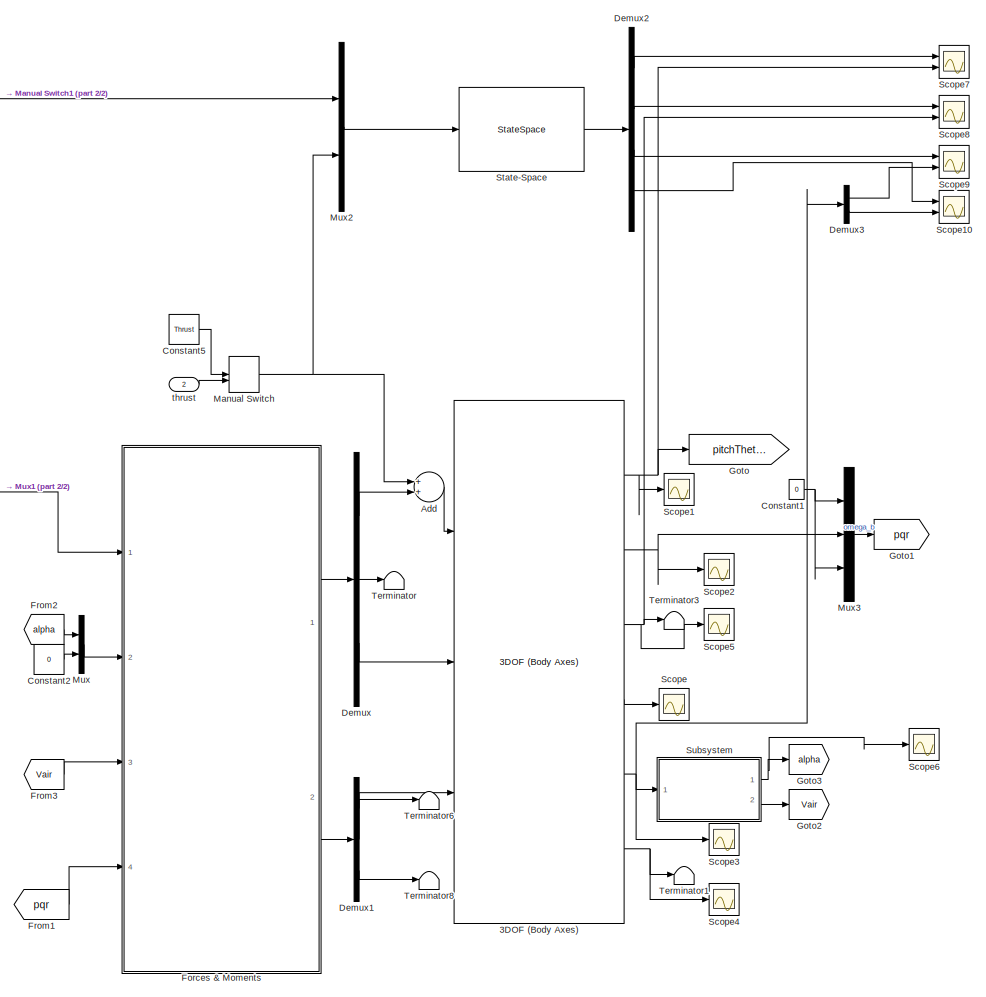
[diagram: root canvas - part 1/2, center side, full height]
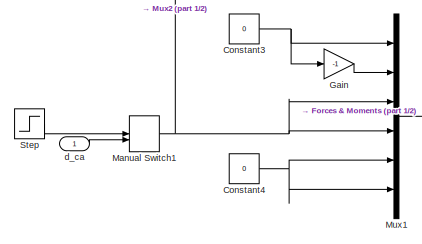
[diagram: root canvas - part 2/2, middle left region]
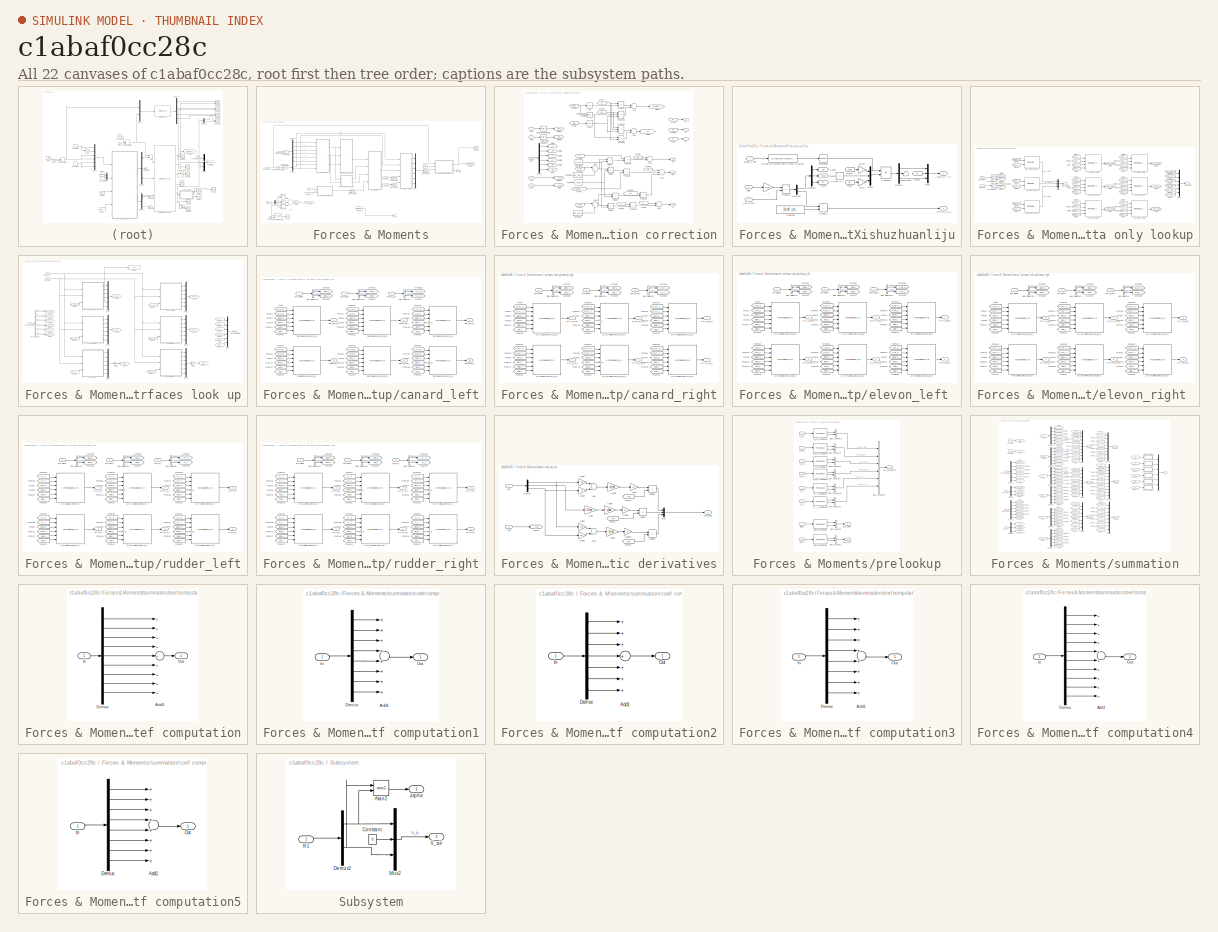
[diagram: thumbnail index - all 22 canvases of the model, root first then tree order]
MODEL slx_c1abaf0cc28c
KIND model
CONFIG AbsTol = auto
CONFIG EnableMultiTasking = off
CONFIG FixedStep = auto
CONFIG MaxStep = auto
CONFIG MinStep = auto
CONFIG RelTol = 1e-3
CONFIG SampleTimeConstraint = Unconstrained
CONFIG Solver = VariableStepAuto
CONFIG SolverName = VariableStepAuto
CONFIG StartTime = 0.0
CONFIG StopTime = 500
BLOCK [Reference] 3DOF (Body Axes)  REF=shared3dof/3DOF (Body Axes)
  Ports = [3, 6]
  SourceBlock = shared3dof/3DOF (Body Axes)
  SourceProductBaseCode = AE
  SourceProductName = Aerospace Blockset
  SourceType = 3DOF EoM
BLOCK [Sum] Add
  InputSameDT = off
  OutDataTypeStr = Inherit: Inherit via internal rule
  Ports = [2, 1]
  SaturateOnIntegerOverflow = off
BLOCK [Constant] Constant1
  Value = 0
BLOCK [Constant] Constant2
  Value = 0
BLOCK [Constant] Constant3
  Value = 0
BLOCK [Constant] Constant4
  Value = 0
BLOCK [Constant] Constant5
  Value = Thrust
BLOCK [Demux] Demux
  DisplayOption = bar
  Outputs = 3
  Ports = [1, 3]
BLOCK [Demux] Demux1
  DisplayOption = bar
  Outputs = 3
  Ports = [1, 3]
BLOCK [Demux] Demux2
  DisplayOption = bar
  Ports = [1, 4]
BLOCK [Demux] Demux3
  DisplayOption = bar
  Outputs = 2
  Ports = [1, 2]
BLOCK [SubSystem] Forces & Moments
  Ports = [4, 2]
  RequestExecContextInheritance = off
  Variant = off
BLOCK [Sum] Forces & Moments/Add
  InputSameDT = off
  Inputs = +++
  OutDataTypeStr = Inherit: Inherit via internal rule
  Ports = [3, 1]
  SaturateOnIntegerOverflow = off
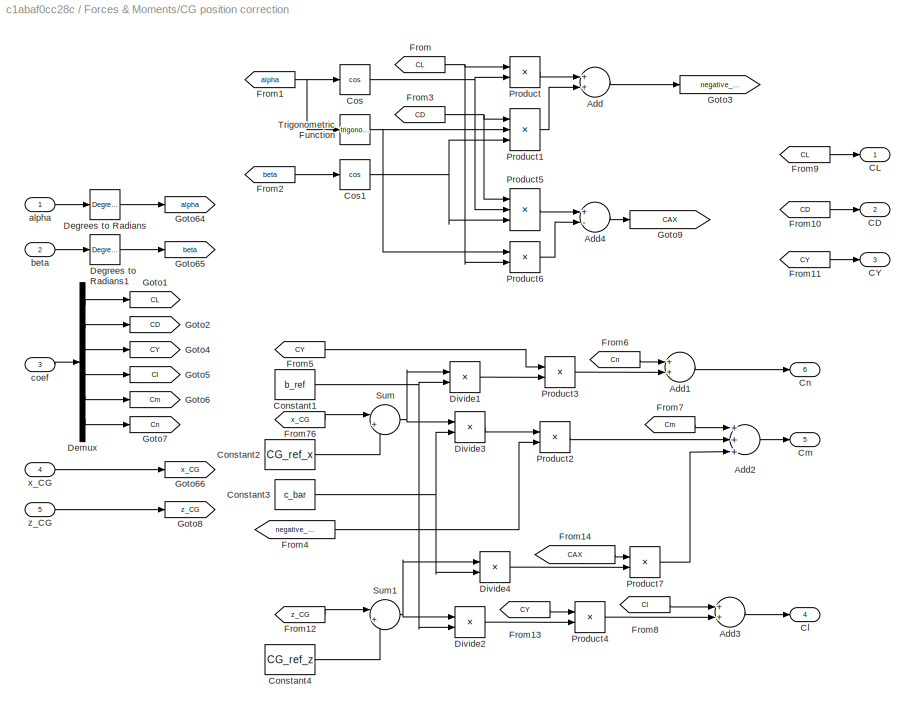
BLOCK [SubSystem] Forces & Moments/CG position correction
  Ports = [5, 6]
  RequestExecContextInheritance = off
  Variant = off
BLOCK [Sum] Forces & Moments/CG position correction/Add
  InputSameDT = off
  OutDataTypeStr = Inherit: Inherit via internal rule
  Ports = [2, 1]
  SaturateOnIntegerOverflow = off
BLOCK [Sum] Forces & Moments/CG position correction/Add1
  InputSameDT = off
  OutDataTypeStr = Inherit: Inherit via internal rule
  Ports = [2, 1]
  SaturateOnIntegerOverflow = off
BLOCK [Sum] Forces & Moments/CG position correction/Add2
  InputSameDT = off
  Inputs = +++
  OutDataTypeStr = Inherit: Inherit via internal rule
  Ports = [3, 1]
  SaturateOnIntegerOverflow = off
BLOCK [Sum] Forces & Moments/CG position correction/Add3
  InputSameDT = off
  OutDataTypeStr = Inherit: Inherit via internal rule
  Ports = [2, 1]
  SaturateOnIntegerOverflow = off
BLOCK [Sum] Forces & Moments/CG position correction/Add4
  InputSameDT = off
  Inputs = +-
  OutDataTypeStr = Inherit: Inherit via internal rule
  Ports = [2, 1]
  SaturateOnIntegerOverflow = off
BLOCK [Outport] Forces & Moments/CG position correction/CD
  IconDisplay = Port number
  Port = 2
BLOCK [Outport] Forces & Moments/CG position correction/CL
  IconDisplay = Port number
BLOCK [Outport] Forces & Moments/CG position correction/CY
  IconDisplay = Port number
  Port = 3
BLOCK [Outport] Forces & Moments/CG position correction/Cl
  IconDisplay = Port number
  Port = 4
BLOCK [Outport] Forces & Moments/CG position correction/Cm
  IconDisplay = Port number
  Port = 5
BLOCK [Outport] Forces & Moments/CG position correction/Cn
  IconDisplay = Port number
  Port = 6
BLOCK [Constant] Forces & Moments/CG position correction/Constant1
  OutDataTypeStr = single
  Value = b_ref
BLOCK [Constant] Forces & Moments/CG position correction/Constant2
  OutDataTypeStr = single
  Value = CG_ref_x
BLOCK [Constant] Forces & Moments/CG position correction/Constant3
  OutDataTypeStr = single
  Value = c_bar
BLOCK [Constant] Forces & Moments/CG position correction/Constant4
  OutDataTypeStr = single
  Value = CG_ref_z
BLOCK [Trigonometry] Forces & Moments/CG position correction/Cos
  Operator = cos
  Ports = [1, 1]
BLOCK [Trigonometry] Forces & Moments/CG position correction/Cos1
  Operator = cos
  Ports = [1, 1]
BLOCK [Reference] Forces & Moments/CG position correction/Degrees to Radians  REF=simulink_extras/Transformations/Degrees to
Radians
  Ports = [1, 1]
  SourceBlock = simulink_extras/Transformations/Degrees to\nRadians
  SourceProductBaseCode = SL
  SourceProductName = Simulink
  SourceType = DegreesToRadians
BLOCK [Reference] Forces & Moments/CG position correction/Degrees to Radians1  REF=simulink_extras/Transformations/Degrees to
Radians
  Ports = [1, 1]
  SourceBlock = simulink_extras/Transformations/Degrees to\nRadians
  SourceProductBaseCode = SL
  SourceProductName = Simulink
  SourceType = DegreesToRadians
BLOCK [Demux] Forces & Moments/CG position correction/Demux
  DisplayOption = bar
  Outputs = 6
  Ports = [1, 6]
BLOCK [Product] Forces & Moments/CG position correction/Divide1
  InputSameDT = off
  Inputs = */
  OutDataTypeStr = Inherit: Inherit via internal rule
  Ports = [2, 1]
  RndMeth = Floor
  SaturateOnIntegerOverflow = off
BLOCK [Product] Forces & Moments/CG position correction/Divide2
  InputSameDT = off
  Inputs = */
  OutDataTypeStr = Inherit: Inherit via internal rule
  Ports = [2, 1]
  RndMeth = Floor
  SaturateOnIntegerOverflow = off
BLOCK [Product] Forces & Moments/CG position correction/Divide3
  InputSameDT = off
  Inputs = */
  OutDataTypeStr = Inherit: Inherit via internal rule
  Ports = [2, 1]
  RndMeth = Floor
  SaturateOnIntegerOverflow = off
BLOCK [Product] Forces & Moments/CG position correction/Divide4
  InputSameDT = off
  Inputs = */
  OutDataTypeStr = Inherit: Inherit via internal rule
  Ports = [2, 1]
  RndMeth = Floor
  SaturateOnIntegerOverflow = off
BLOCK [From] Forces & Moments/CG position correction/From
  GotoTag = CL
BLOCK [From] Forces & Moments/CG position correction/From1
  GotoTag = alpha
BLOCK [From] Forces & Moments/CG position correction/From10
  GotoTag = CD
BLOCK [From] Forces & Moments/CG position correction/From11
  GotoTag = CY
BLOCK [From] Forces & Moments/CG position correction/From12
  GotoTag = z_CG
BLOCK [From] Forces & Moments/CG position correction/From13
  GotoTag = CY
BLOCK [From] Forces & Moments/CG position correction/From14
  GotoTag = CAX
BLOCK [From] Forces & Moments/CG position correction/From2
  GotoTag = beta
BLOCK [From] Forces & Moments/CG position correction/From3
  GotoTag = CD
BLOCK [From] Forces & Moments/CG position correction/From4
  GotoTag = negative_CZ
BLOCK [From] Forces & Moments/CG position correction/From5
  GotoTag = CY
BLOCK [From] Forces & Moments/CG position correction/From6
  GotoTag = Cn
BLOCK [From] Forces & Moments/CG position correction/From7
  GotoTag = Cm
BLOCK [From] Forces & Moments/CG position correction/From76
  GotoTag = x_CG
BLOCK [From] Forces & Moments/CG position correction/From8
  GotoTag = Cl
BLOCK [From] Forces & Moments/CG position correction/From9
  GotoTag = CL
BLOCK [Goto] Forces & Moments/CG position correction/Goto1
  GotoTag = CL
BLOCK [Goto] Forces & Moments/CG position correction/Goto2
  GotoTag = CD
BLOCK [Goto] Forces & Moments/CG position correction/Goto3
  GotoTag = negative_CZ
BLOCK [Goto] Forces & Moments/CG position correction/Goto4
  GotoTag = CY
BLOCK [Goto] Forces & Moments/CG position correction/Goto5
  GotoTag = Cl
BLOCK [Goto] Forces & Moments/CG position correction/Goto6
  GotoTag = Cm
BLOCK [Goto] Forces & Moments/CG position correction/Goto64
  GotoTag = alpha
BLOCK [Goto] Forces & Moments/CG position correction/Goto65
  GotoTag = beta
BLOCK [Goto] Forces & Moments/CG position correction/Goto66
  GotoTag = x_CG
BLOCK [Goto] Forces & Moments/CG position correction/Goto7
  GotoTag = Cn
BLOCK [Goto] Forces & Moments/CG position correction/Goto8
  GotoTag = z_CG
BLOCK [Goto] Forces & Moments/CG position correction/Goto9
  GotoTag = CAX
BLOCK [Product] Forces & Moments/CG position correction/Product
  InputSameDT = off
  OutDataTypeStr = Inherit: Inherit via internal rule
  Ports = [2, 1]
  RndMeth = Floor
  SaturateOnIntegerOverflow = off
BLOCK [Product] Forces & Moments/CG position correction/Product1
  InputSameDT = off
  Inputs = 3
  OutDataTypeStr = Inherit: Inherit via internal rule
  Ports = [3, 1]
  RndMeth = Floor
  SaturateOnIntegerOverflow = off
BLOCK [Product] Forces & Moments/CG position correction/Product2
  InputSameDT = off
  OutDataTypeStr = Inherit: Inherit via internal rule
  Ports = [2, 1]
  RndMeth = Floor
  SaturateOnIntegerOverflow = off
BLOCK [Product] Forces & Moments/CG position correction/Product3
  InputSameDT = off
  OutDataTypeStr = Inherit: Inherit via internal rule
  Ports = [2, 1]
  RndMeth = Floor
  SaturateOnIntegerOverflow = off
BLOCK [Product] Forces & Moments/CG position correction/Product4
  InputSameDT = off
  OutDataTypeStr = Inherit: Inherit via internal rule
  Ports = [2, 1]
  RndMeth = Floor
  SaturateOnIntegerOverflow = off
BLOCK [Product] Forces & Moments/CG position correction/Product5
  InputSameDT = off
  Inputs = 3
  OutDataTypeStr = Inherit: Inherit via internal rule
  Ports = [3, 1]
  RndMeth = Floor
  SaturateOnIntegerOverflow = off
BLOCK [Product] Forces & Moments/CG position correction/Product6
  InputSameDT = off
  OutDataTypeStr = Inherit: Inherit via internal rule
  Ports = [2, 1]
  RndMeth = Floor
  SaturateOnIntegerOverflow = off
BLOCK [Product] Forces & Moments/CG position correction/Product7
  InputSameDT = off
  OutDataTypeStr = Inherit: Inherit via internal rule
  Ports = [2, 1]
  RndMeth = Floor
  SaturateOnIntegerOverflow = off
BLOCK [Sum] Forces & Moments/CG position correction/Sum
  IconShape = round
  InputSameDT = off
  Inputs = |+-
  OutDataTypeStr = Inherit: Inherit via internal rule
  Ports = [2, 1]
  SaturateOnIntegerOverflow = off
BLOCK [Sum] Forces & Moments/CG position correction/Sum1
  IconShape = round
  InputSameDT = off
  Inputs = |+-
  OutDataTypeStr = single
  Ports = [2, 1]
  SaturateOnIntegerOverflow = off
BLOCK [Trigonometry] Forces & Moments/CG position correction/Trigonometric Function
  Ports = [1, 1]
BLOCK [Inport] Forces & Moments/CG position correction/alpha
  IconDisplay = Port number
BLOCK [Inport] Forces & Moments/CG position correction/beta
  IconDisplay = Port number
  Port = 2
BLOCK [Inport] Forces & Moments/CG position correction/coef
  IconDisplay = Port number
  Port = 3
BLOCK [Inport] Forces & Moments/CG position correction/x_CG
  IconDisplay = Port number
  Port = 4
BLOCK [Inport] Forces & Moments/CG position correction/z_CG
  IconDisplay = Port number
  Port = 5
BLOCK [Constant] Forces & Moments/Constant
  Value = x_CG
BLOCK [Constant] Forces & Moments/Constant1
  Value = z_CG
BLOCK [Constant] Forces & Moments/Constant3
  Value = rho
BLOCK [Inport] Forces & Moments/Ctrl Surf Position
  IconDisplay = Port number
BLOCK [DataTypeConversion] Forces & Moments/Data Type Conversion
  OutDataTypeStr = single
  RndMeth = Floor
  SaturateOnIntegerOverflow = off
BLOCK [DataTypeConversion] Forces & Moments/Data Type Conversion1
  OutDataTypeStr = single
  RndMeth = Floor
  SaturateOnIntegerOverflow = off
BLOCK [DataTypeConversion] Forces & Moments/Data Type Conversion2
  OutDataTypeStr = double
  RndMeth = Floor
  SaturateOnIntegerOverflow = off
BLOCK [DataTypeConversion] Forces & Moments/Data Type Conversion3
  OutDataTypeStr = single
  RndMeth = Floor
  SaturateOnIntegerOverflow = off
BLOCK [DataTypeConversion] Forces & Moments/Data Type Conversion4
  OutDataTypeStr = single
  RndMeth = Floor
  SaturateOnIntegerOverflow = off
BLOCK [DataTypeConversion] Forces & Moments/Data Type Conversion5
  OutDataTypeStr = single
  RndMeth = Floor
  SaturateOnIntegerOverflow = off
BLOCK [Demux] Forces & Moments/Demux
  DisplayOption = bar
  Outputs = 6
  Ports = [1, 6]
BLOCK [Demux] Forces & Moments/Demux1
  DisplayOption = bar
  Outputs = 2
  Ports = [1, 2]
BLOCK [Demux] Forces & Moments/Demux3
  DisplayOption = bar
  Outputs = 3
  Ports = [1, 3]
BLOCK [Reference] Forces & Moments/Dynamic Pressure1  REF=aerolibasang/Dynamic Pressure
  Ports = [2, 1]
  SourceBlock = aerolibasang/Dynamic Pressure
  SourceProductBaseCode = AE
  SourceProductName = Aerospace Blockset
  SourceType = Dynamic Pressure
BLOCK [Outport] Forces & Moments/F_X,Y,Z
  IconDisplay = Port number
BLOCK [From] Forces & Moments/From1
  GotoTag = V_air
BLOCK [From] Forces & Moments/From2
  GotoTag = air_forces
BLOCK [From] Forces & Moments/From3
  GotoTag = qbar
BLOCK [Goto] Forces & Moments/Goto
  GotoTag = air_forces
BLOCK [Goto] Forces & Moments/Goto1
  GotoTag = qbar
BLOCK [Goto] Forces & Moments/Goto64
  GotoTag = V_air
BLOCK [Outport] Forces & Moments/M_L,M,N
  IconDisplay = Port number
  Port = 2
BLOCK [Mux] Forces & Moments/Mux
  DisplayOption = bar
  Inputs = 6
  Ports = [6, 1]
BLOCK [Product] Forces & Moments/Product
  InputSameDT = off
  OutDataTypeStr = Inherit: Inherit via internal rule
  Ports = [2, 1]
  RndMeth = Floor
  SaturateOnIntegerOverflow = off
BLOCK [Product] Forces & Moments/Product1
  InputSameDT = off
  OutDataTypeStr = Inherit: Inherit via internal rule
  Ports = [2, 1]
  RndMeth = Floor
  SaturateOnIntegerOverflow = off
BLOCK [Product] Forces & Moments/Product2
  InputSameDT = off
  OutDataTypeStr = Inherit: Inherit via internal rule
  Ports = [2, 1]
  RndMeth = Floor
  SaturateOnIntegerOverflow = off
BLOCK [Reference] Forces & Moments/Radians to Degrees  REF=simulink_extras/Transformations/Radians
to Degrees
  Ports = [1, 1]
  SourceBlock = simulink_extras/Transformations/Radians\nto Degrees
  SourceProductBaseCode = SL
  SourceProductName = Simulink
  SourceType = RadiansToDegrees
BLOCK [Scope] Forces & Moments/Scope1
  NumInputPorts = 1
  Ports = [1]
  ScopeSpecificationString = Simulink.scopes.TimeScopeBlockCfg('CurrentConfiguration', extmgr.ConfigurationSet(extmgr.Configuration('Core','General UI',true),extmgr.Configuration('Core','Source UI',true),extmgr.Configuration('Sources','WiredSimulink',true,'DataLoggingVariableName','ScopeData3'),extmgr.Configuration('Visuals','Time Domain',true,'SerializedDisplays',{struct('MinYLimReal','-1314.41373','MaxYLimReal','188.08807',...<+1467ch>
BLOCK [Sqrt] Forces & Moments/Sqrt
BLOCK [Inport] Forces & Moments/Vair
  IconDisplay = Port number
  Port = 3
BLOCK [SubSystem] Forces & Moments/Xishuzhuanliju
  Ports = [3, 2]
  RequestExecContextInheritance = off
  Variant = off
BLOCK [Inport] Forces & Moments/Xishuzhuanliju/Aero Coeff
  IconDisplay = Port number
  Port = 3
BLOCK [Outport] Forces & Moments/Xishuzhuanliju/Aero F_X,Y,Z
  IconDisplay = Port number
BLOCK [Outport] Forces & Moments/Xishuzhuanliju/Aero M_L,M,N
  IconDisplay = Port number
  Port = 2
BLOCK [Constant] Forces & Moments/Xishuzhuanliju/Constant
  Value = [b_ref, c_bar, b_ref]
BLOCK [Demux] Forces & Moments/Xishuzhuanliju/Demux
  DisplayOption = bar
  Outputs = 3
  Ports = [1, 3]
BLOCK [Demux] Forces & Moments/Xishuzhuanliju/Demux3
  Outputs = [3,3]
  Ports = [1, 2]
BLOCK [Demux] Forces & Moments/Xishuzhuanliju/Demux4
  DisplayOption = bar
  Outputs = 3
  Ports = [1, 3]
BLOCK [Reference] Forces & Moments/Xishuzhuanliju/Direction Cosine Matrix Body to Wind1  REF=aerolibtransform2/Direction Cosine Matrix
Body to Wind
  Ports = [1, 1]
  SourceBlock = aerolibtransform2/Direction Cosine Matrix\nBody to Wind
  SourceProductBaseCode = AE
  SourceProductName = Aerospace Blockset
  SourceType = DCM Body to Wind
BLOCK [From] Forces & Moments/Xishuzhuanliju/From
  GotoTag = Lift
BLOCK [From] Forces & Moments/Xishuzhuanliju/From1
  GotoTag = FY
BLOCK [From] Forces & Moments/Xishuzhuanliju/From2
  GotoTag = Drag
BLOCK [Gain] Forces & Moments/Xishuzhuanliju/Gain
  Gain = -1
  OutDataTypeStr = Inherit: Inherit via internal rule
  ParamDataTypeStr = Inherit: Inherit via internal rule
  SaturateOnIntegerOverflow = off
BLOCK [Gain] Forces & Moments/Xishuzhuanliju/Gain1
  Gain = -1
  OutDataTypeStr = Inherit: Inherit via internal rule
  ParamDataTypeStr = Inherit: Inherit via internal rule
  SaturateOnIntegerOverflow = off
BLOCK [Goto] Forces & Moments/Xishuzhuanliju/Goto1
  GotoTag = FY
BLOCK [Goto] Forces & Moments/Xishuzhuanliju/Goto2
  GotoTag = Lift
BLOCK [Goto] Forces & Moments/Xishuzhuanliju/Goto3
  GotoTag = Drag
BLOCK [Mux] Forces & Moments/Xishuzhuanliju/Mux1
  DisplayOption = bar
  Inputs = 3
  Ports = [3, 1]
BLOCK [Mux] Forces & Moments/Xishuzhuanliju/Mux3
  DisplayOption = bar
  Inputs = 3
  Ports = [3, 1]
BLOCK [Product] Forces & Moments/Xishuzhuanliju/Product1
  Ports = [2, 1]
  RndMeth = Floor
BLOCK [Product] Forces & Moments/Xishuzhuanliju/Product4
  Ports = [2, 1]
  RndMeth = Floor
BLOCK [Product] Forces & Moments/Xishuzhuanliju/Product5
  Multiplication = Matrix(*)
  Ports = [2, 1]
  RndMeth = Floor
BLOCK [Terminator] Forces & Moments/Xishuzhuanliju/Terminator
BLOCK [Math] Forces & Moments/Xishuzhuanliju/Transpose1
  Operator = transpose
  Ports = [1, 1]
BLOCK [Constant] Forces & Moments/Xishuzhuanliju/Virtual CY
  Value = 0
BLOCK [Inport] Forces & Moments/Xishuzhuanliju/alpha & bet
  IconDisplay = Port number
BLOCK [Inport] Forces & Moments/Xishuzhuanliju/qbar
  IconDisplay = Port number
  Port = 2
BLOCK [Gain] Forces & Moments/Xishuzhuanliju/r
  Gain = S_ref
BLOCK [Inport] Forces & Moments/alpha & beta
  IconDisplay = Port number
  Port = 2
BLOCK [SubSystem] Forces & Moments/alpha & beta only lookup
  Ports = [2, 2]
  RequestExecContextInheritance = off
  Variant = off
BLOCK [BusSelector] Forces & Moments/alpha & beta only lookup/Bus Selector
  OutputAsBus = off
  OutputSignals = signal1,signal2
  Ports = [1, 2]
BLOCK [BusSelector] Forces & Moments/alpha & beta only lookup/Bus Selector1
  OutputAsBus = off
  OutputSignals = signal1,signal2
  Ports = [1, 2]
BLOCK [Interpolation_n-D] Forces & Moments/alpha & beta only lookup/CD_alpha_beta
  InputPortMap = u0,u1,u2,u3
  IntermediateResultsDataTypeStr = Inherit: Inherit via internal rule
  OutDataTypeStr = single
  Ports = [4, 1]
  Table = DCX_beta{2}
BLOCK [Interpolation_n-D] Forces & Moments/alpha & beta only lookup/CD_alpha_lookup
  InputPortMap = u0,u1
  IntermediateResultsDataTypeStr = Inherit: Inherit via internal rule
  NumberOfTableDimensions = 1
  OutDataTypeStr = single
  Ports = [2, 1]
  Table = DCD_alpha
BLOCK [Interpolation_n-D] Forces & Moments/alpha & beta only lookup/CL_alpha_beta
  InputPortMap = u0,u1,u2,u3
  IntermediateResultsDataTypeStr = Inherit: Inherit via internal rule
  OutDataTypeStr = single
  Ports = [4, 1]
  Table = DCX_beta{1}
BLOCK [Interpolation_n-D] Forces & Moments/alpha & beta only lookup/CY_alpha_beta
  InputPortMap = u0,u1,u2,u3
  IntermediateResultsDataTypeStr = Inherit: Inherit via internal rule
  OutDataTypeStr = single
  Ports = [4, 1]
  Table = DCX_beta{4}
BLOCK [Interpolation_n-D] Forces & Moments/alpha & beta only lookup/Cl_alpha_beta
  InputPortMap = u0,u1,u2,u3
  IntermediateResultsDataTypeStr = Inherit: Inherit via internal rule
  OutDataTypeStr = single
  Ports = [4, 1]
  Table = DCX_beta{6}
BLOCK [Interpolation_n-D] Forces & Moments/alpha & beta only lookup/Cm_alpha_beta
  InputPortMap = u0,u1,u2,u3
  IntermediateResultsDataTypeStr = Inherit: Inherit via internal rule
  OutDataTypeStr = single
  Ports = [4, 1]
  Table = DCX_beta{3}
BLOCK [Interpolation_n-D] Forces & Moments/alpha & beta only lookup/Cn_alpha_beta
  InputPortMap = u0,u1,u2,u3
  IntermediateResultsDataTypeStr = Inherit: Inherit via internal rule
  OutDataTypeStr = single
  Ports = [4, 1]
  Table = DCX_beta{5}
BLOCK [Interpolation_n-D] Forces & Moments/alpha & beta only lookup/DCL_alpha_lookup
  InputPortMap = u0,u1
  IntermediateResultsDataTypeStr = Inherit: Inherit via internal rule
  NumberOfTableDimensions = 1
  OutDataTypeStr = single
  Ports = [2, 1]
  Table = D_CL_alpha
BLOCK [Outport] Forces & Moments/alpha & beta only lookup/DCX_alpha
  IconDisplay = Port number
BLOCK [Outport] Forces & Moments/alpha & beta only lookup/DCX_beta
  IconDisplay = Port number
  Port = 2
BLOCK [Interpolation_n-D] Forces & Moments/alpha & beta only lookup/DCm_alpha_lookup
  InputPortMap = u0,u1
  IntermediateResultsDataTypeStr = Inherit: Inherit via internal rule
  NumberOfTableDimensions = 1
  OutDataTypeStr = single
  Ports = [2, 1]
  Table = D_Cm_alpha
BLOCK [From] Forces & Moments/alpha & beta only lookup/From
  GotoTag = alpha_k
BLOCK [From] Forces & Moments/alpha & beta only lookup/From1
  GotoTag = alpha_k
BLOCK [From] Forces & Moments/alpha & beta only lookup/From10
  GotoTag = alpha_f
BLOCK [From] Forces & Moments/alpha & beta only lookup/From11
  GotoTag = alpha_f
BLOCK [From] Forces & Moments/alpha & beta only lookup/From12
  GotoTag = beta_k
BLOCK [From] Forces & Moments/alpha & beta only lookup/From13
  GotoTag = beta_k
BLOCK [From] Forces & Moments/alpha & beta only lookup/From14
  GotoTag = beta_k
BLOCK [From] Forces & Moments/alpha & beta only lookup/From15
  GotoTag = beta_k
BLOCK [From] Forces & Moments/alpha & beta only lookup/From16
  GotoTag = beta_k
BLOCK [From] Forces & Moments/alpha & beta only lookup/From17
  GotoTag = beta_k
BLOCK [From] Forces & Moments/alpha & beta only lookup/From18
  GotoTag = beta_f
BLOCK [From] Forces & Moments/alpha & beta only lookup/From19
  GotoTag = beta_f
BLOCK [From] Forces & Moments/alpha & beta only lookup/From2
  GotoTag = alpha_k
BLOCK [From] Forces & Moments/alpha & beta only lookup/From20
  GotoTag = beta_f
BLOCK [From] Forces & Moments/alpha & beta only lookup/From21
  GotoTag = beta_f
BLOCK [From] Forces & Moments/alpha & beta only lookup/From22
  GotoTag = beta_f
BLOCK [From] Forces & Moments/alpha & beta only lookup/From23
  GotoTag = beta_f
BLOCK [From] Forces & Moments/alpha & beta only lookup/From24
  GotoTag = alpha_k
BLOCK [From] Forces & Moments/alpha & beta only lookup/From25
  GotoTag = alpha_f
BLOCK [From] Forces & Moments/alpha & beta only lookup/From26
  GotoTag = alpha_k
BLOCK [From] Forces & Moments/alpha & beta only lookup/From27
  GotoTag = alpha_f
BLOCK [From] Forces & Moments/alpha & beta only lookup/From28
  GotoTag = alpha_k
BLOCK [From] Forces & Moments/alpha & beta only lookup/From29
  GotoTag = alpha_f
BLOCK [From] Forces & Moments/alpha & beta only lookup/From3
  GotoTag = alpha_k
BLOCK [From] Forces & Moments/alpha & beta only lookup/From30
  GotoTag = DCL_beta
BLOCK [From] Forces & Moments/alpha & beta only lookup/From31
  GotoTag = DCD_beta
BLOCK [From] Forces & Moments/alpha & beta only lookup/From32
  GotoTag = DCY_beta
BLOCK [From] Forces & Moments/alpha & beta only lookup/From33
  GotoTag = DCl_beta
BLOCK [From] Forces & Moments/alpha & beta only lookup/From34
  GotoTag = DCm_beta
BLOCK [From] Forces & Moments/alpha & beta only lookup/From35
  GotoTag = DCn_beta
BLOCK [From] Forces & Moments/alpha & beta only lookup/From4
  GotoTag = alpha_k
BLOCK [From] Forces & Moments/alpha & beta only lookup/From5
  GotoTag = alpha_k
BLOCK [From] Forces & Moments/alpha & beta only lookup/From6
  GotoTag = alpha_f
BLOCK [From] Forces & Moments/alpha & beta only lookup/From7
  GotoTag = alpha_f
BLOCK [From] Forces & Moments/alpha & beta only lookup/From8
  GotoTag = alpha_f
BLOCK [From] Forces & Moments/alpha & beta only lookup/From9
  GotoTag = alpha_f
BLOCK [Goto] Forces & Moments/alpha & beta only lookup/Goto1
  GotoTag = DCL_beta
BLOCK [Goto] Forces & Moments/alpha & beta only lookup/Goto10
  GotoTag = beta_k
BLOCK [Goto] Forces & Moments/alpha & beta only lookup/Goto11
  GotoTag = beta_f
BLOCK [Goto] Forces & Moments/alpha & beta only lookup/Goto2
  GotoTag = DCD_beta
BLOCK [Goto] Forces & Moments/alpha & beta only lookup/Goto3
  GotoTag = DCY_beta
BLOCK [Goto] Forces & Moments/alpha & beta only lookup/Goto4
  GotoTag = DCl_beta
BLOCK [Goto] Forces & Moments/alpha & beta only lookup/Goto5
  GotoTag = DCm_beta
BLOCK [Goto] Forces & Moments/alpha & beta only lookup/Goto6
  GotoTag = DCn_beta
BLOCK [Goto] Forces & Moments/alpha & beta only lookup/Goto8
  GotoTag = alpha_k
BLOCK [Goto] Forces & Moments/alpha & beta only lookup/Goto9
  GotoTag = alpha_f
BLOCK [Mux] Forces & Moments/alpha & beta only lookup/Mux
  DisplayOption = bar
  Inputs = 3
  Ports = [3, 1]
BLOCK [Mux] Forces & Moments/alpha & beta only lookup/Mux1
  DisplayOption = bar
  Inputs = 6
  Ports = [6, 1]
BLOCK [Inport] Forces & Moments/alpha & beta only lookup/pre_alpha
  IconDisplay = Port number
BLOCK [Inport] Forces & Moments/alpha & beta only lookup/pre_beta
  IconDisplay = Port number
  Port = 2
BLOCK [SubSystem] Forces & Moments/control surfaces look up
  Ports = [3, 1]
  RequestExecContextInheritance = off
  Variant = off
BLOCK [BusSelector] Forces & Moments/control surfaces look up/Bus Selector
  OutputAsBus = off
  OutputSignals = pre_d_ea_l,pre_d_ea_r,pre_d_ca_l,pre_d_ca_r,pre_d_r_l,pre_d_r_r
  Ports = [1, 6]
BLOCK [Outport] Forces & Moments/control surfaces look up/DCX_actuators
  IconDisplay = Port number
BLOCK [Display] Forces & Moments/control surfaces look up/Display
  Decimation = 1
  Ports = [1]
BLOCK [From] Forces & Moments/control surfaces look up/From
  GotoTag = D_ra_l
BLOCK [From] Forces & Moments/control surfaces look up/From1
  GotoTag = D_ea_l
BLOCK [From] Forces & Moments/control surfaces look up/From10
  GotoTag = pre_d_ea_r
BLOCK [From] Forces & Moments/control surfaces look up/From12
  GotoTag = D_ra_r
BLOCK [From] Forces & Moments/control surfaces look up/From13
  GotoTag = pre_d_r_r
BLOCK [From] Forces & Moments/control surfaces look up/From16
  GotoTag = pre_d_ca_l
BLOCK [From] Forces & Moments/control surfaces look up/From19
  GotoTag = pre_d_ca_r
BLOCK [From] Forces & Moments/control surfaces look up/From20
  GotoTag = D_ea_r
BLOCK [From] Forces & Moments/control surfaces look up/From22
  GotoTag = D_ca_l
BLOCK [From] Forces & Moments/control surfaces look up/From23
  GotoTag = D_ca_r
BLOCK [From] Forces & Moments/control surfaces look up/From4
  GotoTag = pre_d_r_l
BLOCK [From] Forces & Moments/control surfaces look up/From7
  GotoTag = pre_d_ea_l
BLOCK [Gain] Forces & Moments/control surfaces look up/Gain
  Gain = 0.5
  OutDataTypeStr = Inherit: Inherit via internal rule
  ParamDataTypeStr = Inherit: Inherit via internal rule
  SaturateOnIntegerOverflow = off
BLOCK [Gain] Forces & Moments/control surfaces look up/Gain1
  Gain = 0.5
  OutDataTypeStr = Inherit: Inherit via internal rule
  ParamDataTypeStr = Inherit: Inherit via internal rule
  SaturateOnIntegerOverflow = off
BLOCK [Goto] Forces & Moments/control surfaces look up/Goto10
  GotoTag = D_ca_l
BLOCK [Goto] Forces & Moments/control surfaces look up/Goto12
  GotoTag = D_ea_l
BLOCK [Goto] Forces & Moments/control surfaces look up/Goto13
  GotoTag = D_ca_r
BLOCK [Goto] Forces & Moments/control surfaces look up/Goto17
  GotoTag = D_ra_r
BLOCK [Goto] Forces & Moments/control surfaces look up/Goto2
  GotoTag = pre_d_r_l
BLOCK [Goto] Forces & Moments/control surfaces look up/Goto3
  GotoTag = pre_d_ea_l
BLOCK [Goto] Forces & Moments/control surfaces look up/Goto4
  GotoTag = pre_d_ea_r
BLOCK [Goto] Forces & Moments/control surfaces look up/Goto5
  GotoTag = pre_d_r_r
BLOCK [Goto] Forces & Moments/control surfaces look up/Goto6
  GotoTag = pre_d_ca_l
BLOCK [Goto] Forces & Moments/control surfaces look up/Goto7
  GotoTag = pre_d_ca_r
BLOCK [Goto] Forces & Moments/control surfaces look up/Goto8
  GotoTag = D_ra_l
BLOCK [Goto] Forces & Moments/control surfaces look up/Goto9
  GotoTag = D_ea_r
BLOCK [Mux] Forces & Moments/control surfaces look up/Mux1
  DisplayOption = bar
  Inputs = 6
  Ports = [6, 1]
BLOCK [Mux] Forces & Moments/control surfaces look up/Mux2
  DisplayOption = bar
  Inputs = 6
  Ports = [6, 1]
BLOCK [Mux] Forces & Moments/control surfaces look up/Mux3
  DisplayOption = bar
  Inputs = 6
  Ports = [6, 1]
BLOCK [Mux] Forces & Moments/control surfaces look up/Mux4
  DisplayOption = bar
  Inputs = 6
  Ports = [6, 1]
BLOCK [Mux] Forces & Moments/control surfaces look up/Mux5
  DisplayOption = bar
  Inputs = 6
  Ports = [6, 1]
BLOCK [Mux] Forces & Moments/control surfaces look up/Mux6
  DisplayOption = bar
  Inputs = 6
  Ports = [6, 1]
BLOCK [Mux] Forces & Moments/control surfaces look up/Mux8
  DisplayOption = bar
  Inputs = 6
  Ports = [6, 1]
BLOCK [SubSystem] Forces & Moments/control surfaces look up/canard_left
  Ports = [3, 6]
  RequestExecContextInheritance = off
  Variant = off
BLOCK [BusSelector] Forces & Moments/control surfaces look up/canard_left/Bus Selector
  OutputAsBus = off
  OutputSignals = signal1,signal2
  Ports = [1, 2]
BLOCK [BusSelector] Forces & Moments/control surfaces look up/canard_left/Bus Selector1
  OutputAsBus = off
  OutputSignals = signal1,signal2
  Ports = [1, 2]
BLOCK [BusSelector] Forces & Moments/control surfaces look up/canard_left/Bus Selector2
  OutputAsBus = off
  OutputSignals = signal1,signal2
  Ports = [1, 2]
BLOCK [Interpolation_n-D] Forces & Moments/control surfaces look up/canard_left/DCD(alpha,beta,d_ca_l)
  InputPortMap = u0,u1,u2,u3,u4,u5
  IntermediateResultsDataTypeStr = Inherit: Inherit via internal rule
  NumberOfTableDimensions = 3
  OutDataTypeStr = single
  Ports = [6, 1]
  Table = CX_d_ca_l{2}
BLOCK [Outport] Forces & Moments/control surfaces look up/canard_left/DCD_d_ca_l
  IconDisplay = Port number
  Port = 2
BLOCK [Interpolation_n-D] Forces & Moments/control surfaces look up/canard_left/DCL(alpha,beta,d_ca_l)
  InputPortMap = u0,u1,u2,u3,u4,u5
  IntermediateResultsDataTypeStr = Inherit: Inherit via internal rule
  NumberOfTableDimensions = 3
  OutDataTypeStr = single
  Ports = [6, 1]
  Table = CX_d_ca_l{1}
BLOCK [Outport] Forces & Moments/control surfaces look up/canard_left/DCL_d_ca_l
  IconDisplay = Port number
BLOCK [Interpolation_n-D] Forces & Moments/control surfaces look up/canard_left/DCY(alpha,beta,d_ca_l)
  InputPortMap = u0,u1,u2,u3,u4,u5
  IntermediateResultsDataTypeStr = Inherit: Inherit via internal rule
  NumberOfTableDimensions = 3
  OutDataTypeStr = single
  Ports = [6, 1]
  Table = CX_d_ca_l{4}
BLOCK [Outport] Forces & Moments/control surfaces look up/canard_left/DCY_d_ca_l
  IconDisplay = Port number
  Port = 3
BLOCK [Interpolation_n-D] Forces & Moments/control surfaces look up/canard_left/DCl(alpha,beta,d_ca_l)
  InputPortMap = u0,u1,u2,u3,u4,u5
  IntermediateResultsDataTypeStr = Inherit: Inherit via internal rule
  NumberOfTableDimensions = 3
  OutDataTypeStr = single
  Ports = [6, 1]
  Table = CX_d_ca_l{6}
BLOCK [Outport] Forces & Moments/control surfaces look up/canard_left/DCl_d_ca_l
  IconDisplay = Port number
  Port = 4
BLOCK [Interpolation_n-D] Forces & Moments/control surfaces look up/canard_left/DCm(alpha,beta,d_ca_l)
  InputPortMap = u0,u1,u2,u3,u4,u5
  IntermediateResultsDataTypeStr = Inherit: Inherit via internal rule
  NumberOfTableDimensions = 3
  OutDataTypeStr = single
  Ports = [6, 1]
  Table = CX_d_ca_l{3}
BLOCK [Outport] Forces & Moments/control surfaces look up/canard_left/DCm_d_ca_l
  IconDisplay = Port number
  Port = 5
BLOCK [Interpolation_n-D] Forces & Moments/control surfaces look up/canard_left/DCn(alpha,beta,d_ca_l)
  InputPortMap = u0,u1,u2,u3,u4,u5
  IntermediateResultsDataTypeStr = Inherit: Inherit via internal rule
  NumberOfTableDimensions = 3
  OutDataTypeStr = single
  Ports = [6, 1]
  Table = CX_d_ca_l{5}
BLOCK [Outport] Forces & Moments/control surfaces look up/canard_left/DCn_d_ca_l
  IconDisplay = Port number
  Port = 6
BLOCK [From] Forces & Moments/control surfaces look up/canard_left/From
  GotoTag = d_ca_l_k
BLOCK [From] Forces & Moments/control surfaces look up/canard_left/From1
  GotoTag = d_ca_l_f
BLOCK [From] Forces & Moments/control surfaces look up/canard_left/From10
  GotoTag = alpha_f
BLOCK [From] Forces & Moments/control surfaces look up/canard_left/From11
  GotoTag = alpha_f
BLOCK [From] Forces & Moments/control surfaces look up/canard_left/From12
  GotoTag = alpha_f
BLOCK [From] Forces & Moments/control surfaces look up/canard_left/From13
  GotoTag = alpha_f
BLOCK [From] Forces & Moments/control surfaces look up/canard_left/From14
  GotoTag = beta_k
BLOCK [From] Forces & Moments/control surfaces look up/canard_left/From15
  GotoTag = beta_k
BLOCK [From] Forces & Moments/control surfaces look up/canard_left/From16
  GotoTag = beta_k
BLOCK [From] Forces & Moments/control surfaces look up/canard_left/From17
  GotoTag = beta_k
BLOCK [From] Forces & Moments/control surfaces look up/canard_left/From18
  GotoTag = beta_k
BLOCK [From] Forces & Moments/control surfaces look up/canard_left/From19
  GotoTag = beta_k
BLOCK [From] Forces & Moments/control surfaces look up/canard_left/From2
  GotoTag = alpha_k
BLOCK [From] Forces & Moments/control surfaces look up/canard_left/From20
  GotoTag = beta_f
BLOCK [From] Forces & Moments/control surfaces look up/canard_left/From21
  GotoTag = beta_f
BLOCK [From] Forces & Moments/control surfaces look up/canard_left/From22
  GotoTag = beta_f
BLOCK [From] Forces & Moments/control surfaces look up/canard_left/From23
  GotoTag = beta_f
BLOCK [From] Forces & Moments/control surfaces look up/canard_left/From24
  GotoTag = beta_f
BLOCK [From] Forces & Moments/control surfaces look up/canard_left/From25
  GotoTag = beta_f
BLOCK [From] Forces & Moments/control surfaces look up/canard_left/From26
  GotoTag = d_ca_l_k
BLOCK [From] Forces & Moments/control surfaces look up/canard_left/From27
  GotoTag = d_ca_l_f
BLOCK [From] Forces & Moments/control surfaces look up/canard_left/From28
  GotoTag = d_ca_l_k
BLOCK [From] Forces & Moments/control surfaces look up/canard_left/From29
  GotoTag = d_ca_l_f
BLOCK [From] Forces & Moments/control surfaces look up/canard_left/From3
  GotoTag = alpha_k
BLOCK [From] Forces & Moments/control surfaces look up/canard_left/From30
  GotoTag = d_ca_l_k
BLOCK [From] Forces & Moments/control surfaces look up/canard_left/From31
  GotoTag = d_ca_l_f
BLOCK [From] Forces & Moments/control surfaces look up/canard_left/From32
  GotoTag = d_ca_l_k
BLOCK [From] Forces & Moments/control surfaces look up/canard_left/From33
  GotoTag = d_ca_l_f
BLOCK [From] Forces & Moments/control surfaces look up/canard_left/From34
  GotoTag = d_ca_l_k
BLOCK [From] Forces & Moments/control surfaces look up/canard_left/From35
  GotoTag = d_ca_l_f
BLOCK [From] Forces & Moments/control surfaces look up/canard_left/From4
  GotoTag = alpha_k
BLOCK [From] Forces & Moments/control surfaces look up/canard_left/From5
  GotoTag = alpha_k
BLOCK [From] Forces & Moments/control surfaces look up/canard_left/From6
  GotoTag = alpha_k
BLOCK [From] Forces & Moments/control surfaces look up/canard_left/From7
  GotoTag = alpha_k
BLOCK [From] Forces & Moments/control surfaces look up/canard_left/From8
  GotoTag = alpha_f
BLOCK [From] Forces & Moments/control surfaces look up/canard_left/From9
  GotoTag = alpha_f
BLOCK [Goto] Forces & Moments/control surfaces look up/canard_left/Goto14
  GotoTag = alpha_k
BLOCK [Goto] Forces & Moments/control surfaces look up/canard_left/Goto15
  GotoTag = alpha_f
BLOCK [Goto] Forces & Moments/control surfaces look up/canard_left/Goto16
  GotoTag = beta_k
BLOCK [Goto] Forces & Moments/control surfaces look up/canard_left/Goto17
  GotoTag = beta_f
BLOCK [Goto] Forces & Moments/control surfaces look up/canard_left/Goto18
  GotoTag = d_ca_l_k
BLOCK [Goto] Forces & Moments/control surfaces look up/canard_left/Goto19
  GotoTag = d_ca_l_f
BLOCK [Inport] Forces & Moments/control surfaces look up/canard_left/pre_alpha
  IconDisplay = Port number
BLOCK [Inport] Forces & Moments/control surfaces look up/canard_left/pre_beta
  IconDisplay = Port number
  Port = 2
BLOCK [Inport] Forces & Moments/control surfaces look up/canard_left/pre_d_ca_l
  IconDisplay = Port number
  Port = 3
BLOCK [SubSystem] Forces & Moments/control surfaces look up/canard_right
  Ports = [3, 6]
  RequestExecContextInheritance = off
  Variant = off
BLOCK [BusSelector] Forces & Moments/control surfaces look up/canard_right/Bus Selector
  OutputAsBus = off
  OutputSignals = signal1,signal2
  Ports = [1, 2]
BLOCK [BusSelector] Forces & Moments/control surfaces look up/canard_right/Bus Selector1
  OutputAsBus = off
  OutputSignals = signal1,signal2
  Ports = [1, 2]
BLOCK [BusSelector] Forces & Moments/control surfaces look up/canard_right/Bus Selector2
  OutputAsBus = off
  OutputSignals = signal1,signal2
  Ports = [1, 2]
BLOCK [Interpolation_n-D] Forces & Moments/control surfaces look up/canard_right/DCD(alpha,beta,d_ca_r)
  InputPortMap = u0,u1,u2,u3,u4,u5
  IntermediateResultsDataTypeStr = Inherit: Inherit via internal rule
  NumberOfTableDimensions = 3
  OutDataTypeStr = single
  Ports = [6, 1]
  Table = CX_d_ca_r{2}
BLOCK [Outport] Forces & Moments/control surfaces look up/canard_right/DCD_d_ca_r
  IconDisplay = Port number
  Port = 2
BLOCK [Interpolation_n-D] Forces & Moments/control surfaces look up/canard_right/DCL(alpha,beta,d_ca_r)
  InputPortMap = u0,u1,u2,u3,u4,u5
  IntermediateResultsDataTypeStr = Inherit: Inherit via internal rule
  NumberOfTableDimensions = 3
  OutDataTypeStr = single
  Ports = [6, 1]
  Table = CX_d_ca_r{1}
BLOCK [Outport] Forces & Moments/control surfaces look up/canard_right/DCL_d_ca_r
  IconDisplay = Port number
BLOCK [Interpolation_n-D] Forces & Moments/control surfaces look up/canard_right/DCY(alpha,beta,d_ca_r)
  InputPortMap = u0,u1,u2,u3,u4,u5
  IntermediateResultsDataTypeStr = Inherit: Inherit via internal rule
  NumberOfTableDimensions = 3
  OutDataTypeStr = single
  Ports = [6, 1]
  Table = CX_d_ca_r{4}
BLOCK [Outport] Forces & Moments/control surfaces look up/canard_right/DCY_d_ca_r
  IconDisplay = Port number
  Port = 3
BLOCK [Interpolation_n-D] Forces & Moments/control surfaces look up/canard_right/DCl(alpha,beta,d_ca_r)
  InputPortMap = u0,u1,u2,u3,u4,u5
  IntermediateResultsDataTypeStr = Inherit: Inherit via internal rule
  NumberOfTableDimensions = 3
  OutDataTypeStr = single
  Ports = [6, 1]
  Table = CX_d_ca_r{6}
BLOCK [Outport] Forces & Moments/control surfaces look up/canard_right/DCl_d_ca_r
  IconDisplay = Port number
  Port = 4
BLOCK [Interpolation_n-D] Forces & Moments/control surfaces look up/canard_right/DCm(alpha,beta,d_ca_r)
  InputPortMap = u0,u1,u2,u3,u4,u5
  IntermediateResultsDataTypeStr = Inherit: Inherit via internal rule
  NumberOfTableDimensions = 3
  OutDataTypeStr = single
  Ports = [6, 1]
  Table = CX_d_ca_r{3}
BLOCK [Outport] Forces & Moments/control surfaces look up/canard_right/DCm_d_ca_r
  IconDisplay = Port number
  Port = 5
BLOCK [Interpolation_n-D] Forces & Moments/control surfaces look up/canard_right/DCn(alpha,beta,d_ca_r)
  InputPortMap = u0,u1,u2,u3,u4,u5
  IntermediateResultsDataTypeStr = Inherit: Inherit via internal rule
  NumberOfTableDimensions = 3
  OutDataTypeStr = single
  Ports = [6, 1]
  Table = CX_d_ca_r{5}
BLOCK [Outport] Forces & Moments/control surfaces look up/canard_right/DCn_d_ca_r
  IconDisplay = Port number
  Port = 6
BLOCK [From] Forces & Moments/control surfaces look up/canard_right/From
  GotoTag = d_ca_r_k
BLOCK [From] Forces & Moments/control surfaces look up/canard_right/From1
  GotoTag = d_ca_r_f
BLOCK [From] Forces & Moments/control surfaces look up/canard_right/From10
  GotoTag = alpha_f
BLOCK [From] Forces & Moments/control surfaces look up/canard_right/From11
  GotoTag = alpha_f
BLOCK [From] Forces & Moments/control surfaces look up/canard_right/From12
  GotoTag = alpha_f
BLOCK [From] Forces & Moments/control surfaces look up/canard_right/From13
  GotoTag = alpha_f
BLOCK [From] Forces & Moments/control surfaces look up/canard_right/From14
  GotoTag = beta_k
BLOCK [From] Forces & Moments/control surfaces look up/canard_right/From15
  GotoTag = beta_k
BLOCK [From] Forces & Moments/control surfaces look up/canard_right/From16
  GotoTag = beta_k
BLOCK [From] Forces & Moments/control surfaces look up/canard_right/From17
  GotoTag = beta_k
BLOCK [From] Forces & Moments/control surfaces look up/canard_right/From18
  GotoTag = beta_k
BLOCK [From] Forces & Moments/control surfaces look up/canard_right/From19
  GotoTag = beta_k
BLOCK [From] Forces & Moments/control surfaces look up/canard_right/From2
  GotoTag = alpha_k
BLOCK [From] Forces & Moments/control surfaces look up/canard_right/From20
  GotoTag = beta_f
BLOCK [From] Forces & Moments/control surfaces look up/canard_right/From21
  GotoTag = beta_f
BLOCK [From] Forces & Moments/control surfaces look up/canard_right/From22
  GotoTag = beta_f
BLOCK [From] Forces & Moments/control surfaces look up/canard_right/From23
  GotoTag = beta_f
BLOCK [From] Forces & Moments/control surfaces look up/canard_right/From24
  GotoTag = beta_f
BLOCK [From] Forces & Moments/control surfaces look up/canard_right/From25
  GotoTag = beta_f
BLOCK [From] Forces & Moments/control surfaces look up/canard_right/From26
  GotoTag = d_ca_r_k
BLOCK [From] Forces & Moments/control surfaces look up/canard_right/From27
  GotoTag = d_ca_r_f
BLOCK [From] Forces & Moments/control surfaces look up/canard_right/From28
  GotoTag = d_ca_r_k
BLOCK [From] Forces & Moments/control surfaces look up/canard_right/From29
  GotoTag = d_ca_r_f
BLOCK [From] Forces & Moments/control surfaces look up/canard_right/From3
  GotoTag = alpha_k
BLOCK [From] Forces & Moments/control surfaces look up/canard_right/From30
  GotoTag = d_ca_r_k
BLOCK [From] Forces & Moments/control surfaces look up/canard_right/From31
  GotoTag = d_ca_r_f
BLOCK [From] Forces & Moments/control surfaces look up/canard_right/From32
  GotoTag = d_ca_r_k
BLOCK [From] Forces & Moments/control surfaces look up/canard_right/From33
  GotoTag = d_ca_r_f
BLOCK [From] Forces & Moments/control surfaces look up/canard_right/From34
  GotoTag = d_ca_r_k
BLOCK [From] Forces & Moments/control surfaces look up/canard_right/From35
  GotoTag = d_ca_r_f
BLOCK [From] Forces & Moments/control surfaces look up/canard_right/From4
  GotoTag = alpha_k
BLOCK [From] Forces & Moments/control surfaces look up/canard_right/From5
  GotoTag = alpha_k
BLOCK [From] Forces & Moments/control surfaces look up/canard_right/From6
  GotoTag = alpha_k
BLOCK [From] Forces & Moments/control surfaces look up/canard_right/From7
  GotoTag = alpha_k
BLOCK [From] Forces & Moments/control surfaces look up/canard_right/From8
  GotoTag = alpha_f
BLOCK [From] Forces & Moments/control surfaces look up/canard_right/From9
  GotoTag = alpha_f
BLOCK [Goto] Forces & Moments/control surfaces look up/canard_right/Goto14
  GotoTag = alpha_k
BLOCK [Goto] Forces & Moments/control surfaces look up/canard_right/Goto15
  GotoTag = alpha_f
BLOCK [Goto] Forces & Moments/control surfaces look up/canard_right/Goto16
  GotoTag = beta_k
BLOCK [Goto] Forces & Moments/control surfaces look up/canard_right/Goto17
  GotoTag = beta_f
BLOCK [Goto] Forces & Moments/control surfaces look up/canard_right/Goto18
  GotoTag = d_ca_r_k
BLOCK [Goto] Forces & Moments/control surfaces look up/canard_right/Goto19
  GotoTag = d_ca_r_f
BLOCK [Inport] Forces & Moments/control surfaces look up/canard_right/pre_alpha
  IconDisplay = Port number
BLOCK [Inport] Forces & Moments/control surfaces look up/canard_right/pre_beta
  IconDisplay = Port number
  Port = 2
BLOCK [Inport] Forces & Moments/control surfaces look up/canard_right/pre_d_ca_r
  IconDisplay = Port number
  Port = 3
BLOCK [SubSystem] Forces & Moments/control surfaces look up/elevon_left 
  Ports = [3, 6]
  RequestExecContextInheritance = off
  Variant = off
BLOCK [BusSelector] Forces & Moments/control surfaces look up/elevon_left /Bus Selector
  OutputAsBus = off
  OutputSignals = signal1,signal2
  Ports = [1, 2]
BLOCK [BusSelector] Forces & Moments/control surfaces look up/elevon_left /Bus Selector1
  OutputAsBus = off
  OutputSignals = signal1,signal2
  Ports = [1, 2]
BLOCK [BusSelector] Forces & Moments/control surfaces look up/elevon_left /Bus Selector2
  OutputAsBus = off
  OutputSignals = signal1,signal2
  Ports = [1, 2]
BLOCK [Interpolation_n-D] Forces & Moments/control surfaces look up/elevon_left /DCD(alpha,beta,d_ea_l)
  InputPortMap = u0,u1,u2,u3,u4,u5
  IntermediateResultsDataTypeStr = Inherit: Inherit via internal rule
  NumberOfTableDimensions = 3
  OutDataTypeStr = single
  Ports = [6, 1]
  Table = CX_d_ea_l{2}
BLOCK [Outport] Forces & Moments/control surfaces look up/elevon_left /DCD_d_ea_l
  IconDisplay = Port number
  Port = 2
BLOCK [Interpolation_n-D] Forces & Moments/control surfaces look up/elevon_left /DCL(alpha,beta,d_ea_l)
  InputPortMap = u0,u1,u2,u3,u4,u5
  IntermediateResultsDataTypeStr = Inherit: Inherit via internal rule
  NumberOfTableDimensions = 3
  OutDataTypeStr = single
  Ports = [6, 1]
  Table = CX_d_ea_l{1}
BLOCK [Outport] Forces & Moments/control surfaces look up/elevon_left /DCL_d_ea_l
  IconDisplay = Port number
BLOCK [Interpolation_n-D] Forces & Moments/control surfaces look up/elevon_left /DCY(alpha,beta,d_ea_l)
  InputPortMap = u0,u1,u2,u3,u4,u5
  IntermediateResultsDataTypeStr = Inherit: Inherit via internal rule
  NumberOfTableDimensions = 3
  OutDataTypeStr = single
  Ports = [6, 1]
  Table = CX_d_ea_l{4}
BLOCK [Outport] Forces & Moments/control surfaces look up/elevon_left /DCY_d_ea_l
  IconDisplay = Port number
  Port = 3
BLOCK [Interpolation_n-D] Forces & Moments/control surfaces look up/elevon_left /DCl(alpha,beta,d_ea_l)
  InputPortMap = u0,u1,u2,u3,u4,u5
  IntermediateResultsDataTypeStr = Inherit: Inherit via internal rule
  NumberOfTableDimensions = 3
  OutDataTypeStr = single
  Ports = [6, 1]
  Table = CX_d_ea_l{6}
BLOCK [Outport] Forces & Moments/control surfaces look up/elevon_left /DCl_d_ea_l
  IconDisplay = Port number
  Port = 4
BLOCK [Interpolation_n-D] Forces & Moments/control surfaces look up/elevon_left /DCm(alpha,beta,d_ea_l)
  InputPortMap = u0,u1,u2,u3,u4,u5
  IntermediateResultsDataTypeStr = Inherit: Inherit via internal rule
  NumberOfTableDimensions = 3
  OutDataTypeStr = single
  Ports = [6, 1]
  Table = CX_d_ea_l{3}
BLOCK [Outport] Forces & Moments/control surfaces look up/elevon_left /DCm_d_ea_l
  IconDisplay = Port number
  Port = 5
BLOCK [Interpolation_n-D] Forces & Moments/control surfaces look up/elevon_left /DCn(alpha,beta,d_ea_l)
  InputPortMap = u0,u1,u2,u3,u4,u5
  IntermediateResultsDataTypeStr = Inherit: Inherit via internal rule
  NumberOfTableDimensions = 3
  OutDataTypeStr = single
  Ports = [6, 1]
  Table = CX_d_ea_l{5}
BLOCK [Outport] Forces & Moments/control surfaces look up/elevon_left /DCn_d_ea_l
  IconDisplay = Port number
  Port = 6
BLOCK [From] Forces & Moments/control surfaces look up/elevon_left /From
  GotoTag = d_ea_l_k
BLOCK [From] Forces & Moments/control surfaces look up/elevon_left /From1
  GotoTag = d_ea_l_f
BLOCK [From] Forces & Moments/control surfaces look up/elevon_left /From10
  GotoTag = alpha_f
BLOCK [From] Forces & Moments/control surfaces look up/elevon_left /From11
  GotoTag = alpha_f
BLOCK [From] Forces & Moments/control surfaces look up/elevon_left /From12
  GotoTag = alpha_f
BLOCK [From] Forces & Moments/control surfaces look up/elevon_left /From13
  GotoTag = alpha_f
BLOCK [From] Forces & Moments/control surfaces look up/elevon_left /From14
  GotoTag = beta_k
BLOCK [From] Forces & Moments/control surfaces look up/elevon_left /From15
  GotoTag = beta_k
BLOCK [From] Forces & Moments/control surfaces look up/elevon_left /From16
  GotoTag = beta_k
BLOCK [From] Forces & Moments/control surfaces look up/elevon_left /From17
  GotoTag = beta_k
BLOCK [From] Forces & Moments/control surfaces look up/elevon_left /From18
  GotoTag = beta_k
BLOCK [From] Forces & Moments/control surfaces look up/elevon_left /From19
  GotoTag = beta_k
BLOCK [From] Forces & Moments/control surfaces look up/elevon_left /From2
  GotoTag = alpha_k
BLOCK [From] Forces & Moments/control surfaces look up/elevon_left /From20
  GotoTag = beta_f
BLOCK [From] Forces & Moments/control surfaces look up/elevon_left /From21
  GotoTag = beta_f
BLOCK [From] Forces & Moments/control surfaces look up/elevon_left /From22
  GotoTag = beta_f
BLOCK [From] Forces & Moments/control surfaces look up/elevon_left /From23
  GotoTag = beta_f
BLOCK [From] Forces & Moments/control surfaces look up/elevon_left /From24
  GotoTag = beta_f
BLOCK [From] Forces & Moments/control surfaces look up/elevon_left /From25
  GotoTag = beta_f
BLOCK [From] Forces & Moments/control surfaces look up/elevon_left /From26
  GotoTag = d_ea_l_k
BLOCK [From] Forces & Moments/control surfaces look up/elevon_left /From27
  GotoTag = d_ea_l_f
BLOCK [From] Forces & Moments/control surfaces look up/elevon_left /From28
  GotoTag = d_ea_l_k
BLOCK [From] Forces & Moments/control surfaces look up/elevon_left /From29
  GotoTag = d_ea_l_f
BLOCK [From] Forces & Moments/control surfaces look up/elevon_left /From3
  GotoTag = alpha_k
BLOCK [From] Forces & Moments/control surfaces look up/elevon_left /From30
  GotoTag = d_ea_l_k
BLOCK [From] Forces & Moments/control surfaces look up/elevon_left /From31
  GotoTag = d_ea_l_f
BLOCK [From] Forces & Moments/control surfaces look up/elevon_left /From32
  GotoTag = d_ea_l_k
BLOCK [From] Forces & Moments/control surfaces look up/elevon_left /From33
  GotoTag = d_ea_l_f
BLOCK [From] Forces & Moments/control surfaces look up/elevon_left /From34
  GotoTag = d_ea_l_k
BLOCK [From] Forces & Moments/control surfaces look up/elevon_left /From35
  GotoTag = d_ea_l_f
BLOCK [From] Forces & Moments/control surfaces look up/elevon_left /From4
  GotoTag = alpha_k
BLOCK [From] Forces & Moments/control surfaces look up/elevon_left /From5
  GotoTag = alpha_k
BLOCK [From] Forces & Moments/control surfaces look up/elevon_left /From6
  GotoTag = alpha_k
BLOCK [From] Forces & Moments/control surfaces look up/elevon_left /From7
  GotoTag = alpha_k
BLOCK [From] Forces & Moments/control surfaces look up/elevon_left /From8
  GotoTag = alpha_f
BLOCK [From] Forces & Moments/control surfaces look up/elevon_left /From9
  GotoTag = alpha_f
BLOCK [Goto] Forces & Moments/control surfaces look up/elevon_left /Goto14
  GotoTag = alpha_k
BLOCK [Goto] Forces & Moments/control surfaces look up/elevon_left /Goto15
  GotoTag = alpha_f
BLOCK [Goto] Forces & Moments/control surfaces look up/elevon_left /Goto16
  GotoTag = beta_k
BLOCK [Goto] Forces & Moments/control surfaces look up/elevon_left /Goto17
  GotoTag = beta_f
BLOCK [Goto] Forces & Moments/control surfaces look up/elevon_left /Goto18
  GotoTag = d_ea_l_k
BLOCK [Goto] Forces & Moments/control surfaces look up/elevon_left /Goto19
  GotoTag = d_ea_l_f
BLOCK [Inport] Forces & Moments/control surfaces look up/elevon_left /pre_alpha
  IconDisplay = Port number
BLOCK [Inport] Forces & Moments/control surfaces look up/elevon_left /pre_beta
  IconDisplay = Port number
  Port = 2
BLOCK [Inport] Forces & Moments/control surfaces look up/elevon_left /pre_d_ea_l
  IconDisplay = Port number
  Port = 3
BLOCK [SubSystem] Forces & Moments/control surfaces look up/elevon_right 
  Ports = [3, 6]
  RequestExecContextInheritance = off
  Variant = off
BLOCK [BusSelector] Forces & Moments/control surfaces look up/elevon_right /Bus Selector
  OutputAsBus = off
  OutputSignals = signal1,signal2
  Ports = [1, 2]
BLOCK [BusSelector] Forces & Moments/control surfaces look up/elevon_right /Bus Selector1
  OutputAsBus = off
  OutputSignals = signal1,signal2
  Ports = [1, 2]
BLOCK [BusSelector] Forces & Moments/control surfaces look up/elevon_right /Bus Selector2
  OutputAsBus = off
  OutputSignals = signal1,signal2
  Ports = [1, 2]
BLOCK [Interpolation_n-D] Forces & Moments/control surfaces look up/elevon_right /DCD(alpha,beta,d_ea_r)
  InputPortMap = u0,u1,u2,u3,u4,u5
  IntermediateResultsDataTypeStr = Inherit: Inherit via internal rule
  NumberOfTableDimensions = 3
  OutDataTypeStr = single
  Ports = [6, 1]
  Table = CX_d_ea_r{2}
BLOCK [Outport] Forces & Moments/control surfaces look up/elevon_right /DCD_d_ea_r
  IconDisplay = Port number
  Port = 2
BLOCK [Interpolation_n-D] Forces & Moments/control surfaces look up/elevon_right /DCL(alpha,beta,d_ea_r)
  InputPortMap = u0,u1,u2,u3,u4,u5
  IntermediateResultsDataTypeStr = Inherit: Inherit via internal rule
  NumberOfTableDimensions = 3
  OutDataTypeStr = single
  Ports = [6, 1]
  Table = CX_d_ea_r{1}
BLOCK [Outport] Forces & Moments/control surfaces look up/elevon_right /DCL_d_ea_r
  IconDisplay = Port number
BLOCK [Interpolation_n-D] Forces & Moments/control surfaces look up/elevon_right /DCY(alpha,beta,d_ea_r)
  InputPortMap = u0,u1,u2,u3,u4,u5
  IntermediateResultsDataTypeStr = Inherit: Inherit via internal rule
  NumberOfTableDimensions = 3
  OutDataTypeStr = single
  Ports = [6, 1]
  Table = CX_d_ea_r{4}
BLOCK [Outport] Forces & Moments/control surfaces look up/elevon_right /DCY_d_ea_r
  IconDisplay = Port number
  Port = 3
BLOCK [Interpolation_n-D] Forces & Moments/control surfaces look up/elevon_right /DCl(alpha,beta,d_ea_r)
  InputPortMap = u0,u1,u2,u3,u4,u5
  IntermediateResultsDataTypeStr = Inherit: Inherit via internal rule
  NumberOfTableDimensions = 3
  OutDataTypeStr = single
  Ports = [6, 1]
  Table = CX_d_ea_r{6}
BLOCK [Outport] Forces & Moments/control surfaces look up/elevon_right /DCl_d_ea_r
  IconDisplay = Port number
  Port = 4
BLOCK [Interpolation_n-D] Forces & Moments/control surfaces look up/elevon_right /DCm(alpha,beta,d_ea_r)
  InputPortMap = u0,u1,u2,u3,u4,u5
  IntermediateResultsDataTypeStr = Inherit: Inherit via internal rule
  NumberOfTableDimensions = 3
  OutDataTypeStr = single
  Ports = [6, 1]
  Table = CX_d_ea_r{3}
BLOCK [Outport] Forces & Moments/control surfaces look up/elevon_right /DCm_d_ea_r
  IconDisplay = Port number
  Port = 5
BLOCK [Interpolation_n-D] Forces & Moments/control surfaces look up/elevon_right /DCn(alpha,beta,d_ea_r)
  InputPortMap = u0,u1,u2,u3,u4,u5
  IntermediateResultsDataTypeStr = Inherit: Inherit via internal rule
  NumberOfTableDimensions = 3
  OutDataTypeStr = single
  Ports = [6, 1]
  Table = CX_d_ea_r{5}
BLOCK [Outport] Forces & Moments/control surfaces look up/elevon_right /DCn_d_ea_r
  IconDisplay = Port number
  Port = 6
BLOCK [From] Forces & Moments/control surfaces look up/elevon_right /From
  GotoTag = d_ea_r_k
BLOCK [From] Forces & Moments/control surfaces look up/elevon_right /From1
  GotoTag = d_ea_r_f
BLOCK [From] Forces & Moments/control surfaces look up/elevon_right /From10
  GotoTag = alpha_f
BLOCK [From] Forces & Moments/control surfaces look up/elevon_right /From11
  GotoTag = alpha_f
BLOCK [From] Forces & Moments/control surfaces look up/elevon_right /From12
  GotoTag = alpha_f
BLOCK [From] Forces & Moments/control surfaces look up/elevon_right /From13
  GotoTag = alpha_f
BLOCK [From] Forces & Moments/control surfaces look up/elevon_right /From14
  GotoTag = beta_k
BLOCK [From] Forces & Moments/control surfaces look up/elevon_right /From15
  GotoTag = beta_k
BLOCK [From] Forces & Moments/control surfaces look up/elevon_right /From16
  GotoTag = beta_k
BLOCK [From] Forces & Moments/control surfaces look up/elevon_right /From17
  GotoTag = beta_k
BLOCK [From] Forces & Moments/control surfaces look up/elevon_right /From18
  GotoTag = beta_k
BLOCK [From] Forces & Moments/control surfaces look up/elevon_right /From19
  GotoTag = beta_k
BLOCK [From] Forces & Moments/control surfaces look up/elevon_right /From2
  GotoTag = alpha_k
BLOCK [From] Forces & Moments/control surfaces look up/elevon_right /From20
  GotoTag = beta_f
BLOCK [From] Forces & Moments/control surfaces look up/elevon_right /From21
  GotoTag = beta_f
BLOCK [From] Forces & Moments/control surfaces look up/elevon_right /From22
  GotoTag = beta_f
BLOCK [From] Forces & Moments/control surfaces look up/elevon_right /From23
  GotoTag = beta_f
BLOCK [From] Forces & Moments/control surfaces look up/elevon_right /From24
  GotoTag = beta_f
BLOCK [From] Forces & Moments/control surfaces look up/elevon_right /From25
  GotoTag = beta_f
BLOCK [From] Forces & Moments/control surfaces look up/elevon_right /From26
  GotoTag = d_ea_r_k
BLOCK [From] Forces & Moments/control surfaces look up/elevon_right /From27
  GotoTag = d_ea_r_f
BLOCK [From] Forces & Moments/control surfaces look up/elevon_right /From28
  GotoTag = d_ea_r_k
BLOCK [From] Forces & Moments/control surfaces look up/elevon_right /From29
  GotoTag = d_ea_r_f
BLOCK [From] Forces & Moments/control surfaces look up/elevon_right /From3
  GotoTag = alpha_k
BLOCK [From] Forces & Moments/control surfaces look up/elevon_right /From30
  GotoTag = d_ea_r_k
BLOCK [From] Forces & Moments/control surfaces look up/elevon_right /From31
  GotoTag = d_ea_r_f
BLOCK [From] Forces & Moments/control surfaces look up/elevon_right /From32
  GotoTag = d_ea_r_k
BLOCK [From] Forces & Moments/control surfaces look up/elevon_right /From33
  GotoTag = d_ea_r_f
BLOCK [From] Forces & Moments/control surfaces look up/elevon_right /From34
  GotoTag = d_ea_r_k
BLOCK [From] Forces & Moments/control surfaces look up/elevon_right /From35
  GotoTag = d_ea_r_f
BLOCK [From] Forces & Moments/control surfaces look up/elevon_right /From4
  GotoTag = alpha_k
BLOCK [From] Forces & Moments/control surfaces look up/elevon_right /From5
  GotoTag = alpha_k
BLOCK [From] Forces & Moments/control surfaces look up/elevon_right /From6
  GotoTag = alpha_k
BLOCK [From] Forces & Moments/control surfaces look up/elevon_right /From7
  GotoTag = alpha_k
BLOCK [From] Forces & Moments/control surfaces look up/elevon_right /From8
  GotoTag = alpha_f
BLOCK [From] Forces & Moments/control surfaces look up/elevon_right /From9
  GotoTag = alpha_f
BLOCK [Goto] Forces & Moments/control surfaces look up/elevon_right /Goto14
  GotoTag = alpha_k
BLOCK [Goto] Forces & Moments/control surfaces look up/elevon_right /Goto15
  GotoTag = alpha_f
BLOCK [Goto] Forces & Moments/control surfaces look up/elevon_right /Goto16
  GotoTag = beta_k
BLOCK [Goto] Forces & Moments/control surfaces look up/elevon_right /Goto17
  GotoTag = beta_f
BLOCK [Goto] Forces & Moments/control surfaces look up/elevon_right /Goto18
  GotoTag = d_ea_r_k
BLOCK [Goto] Forces & Moments/control surfaces look up/elevon_right /Goto19
  GotoTag = d_ea_r_f
BLOCK [Inport] Forces & Moments/control surfaces look up/elevon_right /pre_alpha
  IconDisplay = Port number
BLOCK [Inport] Forces & Moments/control surfaces look up/elevon_right /pre_beta
  IconDisplay = Port number
  Port = 2
BLOCK [Inport] Forces & Moments/control surfaces look up/elevon_right /pre_d_ea_r
  IconDisplay = Port number
  Port = 3
BLOCK [Inport] Forces & Moments/control surfaces look up/pre_actuators
  IconDisplay = Port number
  Port = 3
BLOCK [Inport] Forces & Moments/control surfaces look up/pre_alpha
  IconDisplay = Port number
BLOCK [Inport] Forces & Moments/control surfaces look up/pre_beta
  IconDisplay = Port number
  Port = 2
BLOCK [SubSystem] Forces & Moments/control surfaces look up/rudder_left
  Ports = [3, 6]
  RequestExecContextInheritance = off
  Variant = off
BLOCK [BusSelector] Forces & Moments/control surfaces look up/rudder_left/Bus Selector
  OutputAsBus = off
  OutputSignals = signal1,signal2
  Ports = [1, 2]
BLOCK [BusSelector] Forces & Moments/control surfaces look up/rudder_left/Bus Selector1
  OutputAsBus = off
  OutputSignals = signal1,signal2
  Ports = [1, 2]
BLOCK [BusSelector] Forces & Moments/control surfaces look up/rudder_left/Bus Selector2
  OutputAsBus = off
  OutputSignals = signal1,signal2
  Ports = [1, 2]
BLOCK [Interpolation_n-D] Forces & Moments/control surfaces look up/rudder_left/DCD(alpha,beta,d_r)
  InputPortMap = u0,u1,u2,u3,u4,u5
  IntermediateResultsDataTypeStr = Inherit: Inherit via internal rule
  NumberOfTableDimensions = 3
  OutDataTypeStr = single
  Ports = [6, 1]
  Table = CX_d_r{2}
BLOCK [Outport] Forces & Moments/control surfaces look up/rudder_left/DCD_d_r
  IconDisplay = Port number
  Port = 2
BLOCK [Interpolation_n-D] Forces & Moments/control surfaces look up/rudder_left/DCL(alpha,beta,d_r)
  InputPortMap = u0,u1,u2,u3,u4,u5
  IntermediateResultsDataTypeStr = Inherit: Inherit via internal rule
  NumberOfTableDimensions = 3
  OutDataTypeStr = single
  Ports = [6, 1]
  Table = CX_d_r{1}
BLOCK [Outport] Forces & Moments/control surfaces look up/rudder_left/DCL_d_r
  IconDisplay = Port number
BLOCK [Interpolation_n-D] Forces & Moments/control surfaces look up/rudder_left/DCY(alpha,beta,d_r)
  InputPortMap = u0,u1,u2,u3,u4,u5
  IntermediateResultsDataTypeStr = Inherit: Inherit via internal rule
  NumberOfTableDimensions = 3
  OutDataTypeStr = single
  Ports = [6, 1]
  Table = CX_d_r{4}
BLOCK [Outport] Forces & Moments/control surfaces look up/rudder_left/DCY_d_r
  IconDisplay = Port number
  Port = 3
BLOCK [Interpolation_n-D] Forces & Moments/control surfaces look up/rudder_left/DCl(alpha,beta,d_r)
  InputPortMap = u0,u1,u2,u3,u4,u5
  IntermediateResultsDataTypeStr = Inherit: Inherit via internal rule
  NumberOfTableDimensions = 3
  OutDataTypeStr = single
  Ports = [6, 1]
  Table = CX_d_r{6}
BLOCK [Outport] Forces & Moments/control surfaces look up/rudder_left/DCl_d_r
  IconDisplay = Port number
  Port = 4
BLOCK [Interpolation_n-D] Forces & Moments/control surfaces look up/rudder_left/DCm(alpha,beta,d_r)
  InputPortMap = u0,u1,u2,u3,u4,u5
  IntermediateResultsDataTypeStr = Inherit: Inherit via internal rule
  NumberOfTableDimensions = 3
  OutDataTypeStr = single
  Ports = [6, 1]
  Table = CX_d_r{3}
BLOCK [Outport] Forces & Moments/control surfaces look up/rudder_left/DCm_d_r
  IconDisplay = Port number
  Port = 5
BLOCK [Interpolation_n-D] Forces & Moments/control surfaces look up/rudder_left/DCn(alpha,beta,d_r)
  InputPortMap = u0,u1,u2,u3,u4,u5
  IntermediateResultsDataTypeStr = Inherit: Inherit via internal rule
  NumberOfTableDimensions = 3
  OutDataTypeStr = single
  Ports = [6, 1]
  Table = CX_d_r{5}
BLOCK [Outport] Forces & Moments/control surfaces look up/rudder_left/DCn_d_r
  IconDisplay = Port number
  Port = 6
BLOCK [From] Forces & Moments/control surfaces look up/rudder_left/From10
  GotoTag = alpha_f
BLOCK [From] Forces & Moments/control surfaces look up/rudder_left/From11
  GotoTag = alpha_f
BLOCK [From] Forces & Moments/control surfaces look up/rudder_left/From12
  GotoTag = alpha_f
BLOCK [From] Forces & Moments/control surfaces look up/rudder_left/From13
  GotoTag = alpha_f
BLOCK [From] Forces & Moments/control surfaces look up/rudder_left/From14
  GotoTag = beta_k
BLOCK [From] Forces & Moments/control surfaces look up/rudder_left/From15
  GotoTag = beta_k
BLOCK [From] Forces & Moments/control surfaces look up/rudder_left/From16
  GotoTag = beta_k
BLOCK [From] Forces & Moments/control surfaces look up/rudder_left/From17
  GotoTag = beta_k
BLOCK [From] Forces & Moments/control surfaces look up/rudder_left/From18
  GotoTag = beta_k
BLOCK [From] Forces & Moments/control surfaces look up/rudder_left/From19
  GotoTag = beta_k
BLOCK [From] Forces & Moments/control surfaces look up/rudder_left/From2
  GotoTag = alpha_k
BLOCK [From] Forces & Moments/control surfaces look up/rudder_left/From20
  GotoTag = beta_f
BLOCK [From] Forces & Moments/control surfaces look up/rudder_left/From21
  GotoTag = beta_f
BLOCK [From] Forces & Moments/control surfaces look up/rudder_left/From22
  GotoTag = beta_f
BLOCK [From] Forces & Moments/control surfaces look up/rudder_left/From23
  GotoTag = beta_f
BLOCK [From] Forces & Moments/control surfaces look up/rudder_left/From24
  GotoTag = beta_f
BLOCK [From] Forces & Moments/control surfaces look up/rudder_left/From25
  GotoTag = beta_f
BLOCK [From] Forces & Moments/control surfaces look up/rudder_left/From26
  GotoTag = d_r_k
BLOCK [From] Forces & Moments/control surfaces look up/rudder_left/From27
  GotoTag = d_r_k
BLOCK [From] Forces & Moments/control surfaces look up/rudder_left/From28
  GotoTag = d_r_k
BLOCK [From] Forces & Moments/control surfaces look up/rudder_left/From29
  GotoTag = d_r_k
BLOCK [From] Forces & Moments/control surfaces look up/rudder_left/From3
  GotoTag = alpha_k
BLOCK [From] Forces & Moments/control surfaces look up/rudder_left/From30
  GotoTag = d_r_k
BLOCK [From] Forces & Moments/control surfaces look up/rudder_left/From31
  GotoTag = d_r_k
BLOCK [From] Forces & Moments/control surfaces look up/rudder_left/From32
  GotoTag = d_r_f
BLOCK [From] Forces & Moments/control surfaces look up/rudder_left/From33
  GotoTag = d_r_f
BLOCK [From] Forces & Moments/control surfaces look up/rudder_left/From34
  GotoTag = d_r_f
BLOCK [From] Forces & Moments/control surfaces look up/rudder_left/From35
  GotoTag = d_r_f
BLOCK [From] Forces & Moments/control surfaces look up/rudder_left/From36
  GotoTag = d_r_f
BLOCK [From] Forces & Moments/control surfaces look up/rudder_left/From37
  GotoTag = d_r_f
BLOCK [From] Forces & Moments/control surfaces look up/rudder_left/From4
  GotoTag = alpha_k
BLOCK [From] Forces & Moments/control surfaces look up/rudder_left/From5
  GotoTag = alpha_k
BLOCK [From] Forces & Moments/control surfaces look up/rudder_left/From6
  GotoTag = alpha_k
BLOCK [From] Forces & Moments/control surfaces look up/rudder_left/From7
  GotoTag = alpha_k
BLOCK [From] Forces & Moments/control surfaces look up/rudder_left/From8
  GotoTag = alpha_f
BLOCK [From] Forces & Moments/control surfaces look up/rudder_left/From9
  GotoTag = alpha_f
BLOCK [Goto] Forces & Moments/control surfaces look up/rudder_left/Goto14
  GotoTag = alpha_k
BLOCK [Goto] Forces & Moments/control surfaces look up/rudder_left/Goto15
  GotoTag = alpha_f
BLOCK [Goto] Forces & Moments/control surfaces look up/rudder_left/Goto16
  GotoTag = beta_k
BLOCK [Goto] Forces & Moments/control surfaces look up/rudder_left/Goto17
  GotoTag = beta_f
BLOCK [Goto] Forces & Moments/control surfaces look up/rudder_left/Goto18
  GotoTag = d_r_k
BLOCK [Goto] Forces & Moments/control surfaces look up/rudder_left/Goto19
  GotoTag = d_r_f
BLOCK [Inport] Forces & Moments/control surfaces look up/rudder_left/pre_alpha
  IconDisplay = Port number
BLOCK [Inport] Forces & Moments/control surfaces look up/rudder_left/pre_beta
  IconDisplay = Port number
  Port = 2
BLOCK [Inport] Forces & Moments/control surfaces look up/rudder_left/pre_d_r
  IconDisplay = Port number
  Port = 3
BLOCK [SubSystem] Forces & Moments/control surfaces look up/rudder_right
  Ports = [3, 6]
  RequestExecContextInheritance = off
  Variant = off
BLOCK [BusSelector] Forces & Moments/control surfaces look up/rudder_right/Bus Selector
  OutputAsBus = off
  OutputSignals = signal1,signal2
  Ports = [1, 2]
BLOCK [BusSelector] Forces & Moments/control surfaces look up/rudder_right/Bus Selector1
  OutputAsBus = off
  OutputSignals = signal1,signal2
  Ports = [1, 2]
BLOCK [BusSelector] Forces & Moments/control surfaces look up/rudder_right/Bus Selector2
  OutputAsBus = off
  OutputSignals = signal1,signal2
  Ports = [1, 2]
BLOCK [Interpolation_n-D] Forces & Moments/control surfaces look up/rudder_right/DCD(alpha,beta,d_r)
  InputPortMap = u0,u1,u2,u3,u4,u5
  IntermediateResultsDataTypeStr = Inherit: Inherit via internal rule
  NumberOfTableDimensions = 3
  OutDataTypeStr = single
  Ports = [6, 1]
  Table = CX_d_r{2}
BLOCK [Outport] Forces & Moments/control surfaces look up/rudder_right/DCD_d_r
  IconDisplay = Port number
  Port = 2
BLOCK [Interpolation_n-D] Forces & Moments/control surfaces look up/rudder_right/DCL(alpha,beta,d_r)
  InputPortMap = u0,u1,u2,u3,u4,u5
  IntermediateResultsDataTypeStr = Inherit: Inherit via internal rule
  NumberOfTableDimensions = 3
  OutDataTypeStr = single
  Ports = [6, 1]
  Table = CX_d_r{1}
BLOCK [Outport] Forces & Moments/control surfaces look up/rudder_right/DCL_d_r
  IconDisplay = Port number
BLOCK [Interpolation_n-D] Forces & Moments/control surfaces look up/rudder_right/DCY(alpha,beta,d_r)
  InputPortMap = u0,u1,u2,u3,u4,u5
  IntermediateResultsDataTypeStr = Inherit: Inherit via internal rule
  NumberOfTableDimensions = 3
  OutDataTypeStr = single
  Ports = [6, 1]
  Table = CX_d_r{4}
BLOCK [Outport] Forces & Moments/control surfaces look up/rudder_right/DCY_d_r
  IconDisplay = Port number
  Port = 3
BLOCK [Interpolation_n-D] Forces & Moments/control surfaces look up/rudder_right/DCl(alpha,beta,d_r)
  InputPortMap = u0,u1,u2,u3,u4,u5
  IntermediateResultsDataTypeStr = Inherit: Inherit via internal rule
  NumberOfTableDimensions = 3
  OutDataTypeStr = single
  Ports = [6, 1]
  Table = CX_d_r{6}
BLOCK [Outport] Forces & Moments/control surfaces look up/rudder_right/DCl_d_r
  IconDisplay = Port number
  Port = 4
BLOCK [Interpolation_n-D] Forces & Moments/control surfaces look up/rudder_right/DCm(alpha,beta,d_r)
  InputPortMap = u0,u1,u2,u3,u4,u5
  IntermediateResultsDataTypeStr = Inherit: Inherit via internal rule
  NumberOfTableDimensions = 3
  OutDataTypeStr = single
  Ports = [6, 1]
  Table = CX_d_r{3}
BLOCK [Outport] Forces & Moments/control surfaces look up/rudder_right/DCm_d_r
  IconDisplay = Port number
  Port = 5
BLOCK [Interpolation_n-D] Forces & Moments/control surfaces look up/rudder_right/DCn(alpha,beta,d_r)
  InputPortMap = u0,u1,u2,u3,u4,u5
  IntermediateResultsDataTypeStr = Inherit: Inherit via internal rule
  NumberOfTableDimensions = 3
  OutDataTypeStr = single
  Ports = [6, 1]
  Table = CX_d_r{5}
BLOCK [Outport] Forces & Moments/control surfaces look up/rudder_right/DCn_d_r
  IconDisplay = Port number
  Port = 6
BLOCK [From] Forces & Moments/control surfaces look up/rudder_right/From10
  GotoTag = alpha_f
BLOCK [From] Forces & Moments/control surfaces look up/rudder_right/From11
  GotoTag = alpha_f
BLOCK [From] Forces & Moments/control surfaces look up/rudder_right/From12
  GotoTag = alpha_f
BLOCK [From] Forces & Moments/control surfaces look up/rudder_right/From13
  GotoTag = alpha_f
BLOCK [From] Forces & Moments/control surfaces look up/rudder_right/From14
  GotoTag = beta_k
BLOCK [From] Forces & Moments/control surfaces look up/rudder_right/From15
  GotoTag = beta_k
BLOCK [From] Forces & Moments/control surfaces look up/rudder_right/From16
  GotoTag = beta_k
BLOCK [From] Forces & Moments/control surfaces look up/rudder_right/From17
  GotoTag = beta_k
BLOCK [From] Forces & Moments/control surfaces look up/rudder_right/From18
  GotoTag = beta_k
BLOCK [From] Forces & Moments/control surfaces look up/rudder_right/From19
  GotoTag = beta_k
BLOCK [From] Forces & Moments/control surfaces look up/rudder_right/From2
  GotoTag = alpha_k
BLOCK [From] Forces & Moments/control surfaces look up/rudder_right/From20
  GotoTag = beta_f
BLOCK [From] Forces & Moments/control surfaces look up/rudder_right/From21
  GotoTag = beta_f
BLOCK [From] Forces & Moments/control surfaces look up/rudder_right/From22
  GotoTag = beta_f
BLOCK [From] Forces & Moments/control surfaces look up/rudder_right/From23
  GotoTag = beta_f
BLOCK [From] Forces & Moments/control surfaces look up/rudder_right/From24
  GotoTag = beta_f
BLOCK [From] Forces & Moments/control surfaces look up/rudder_right/From25
  GotoTag = beta_f
BLOCK [From] Forces & Moments/control surfaces look up/rudder_right/From26
  GotoTag = d_r_k
BLOCK [From] Forces & Moments/control surfaces look up/rudder_right/From27
  GotoTag = d_r_k
BLOCK [From] Forces & Moments/control surfaces look up/rudder_right/From28
  GotoTag = d_r_k
BLOCK [From] Forces & Moments/control surfaces look up/rudder_right/From29
  GotoTag = d_r_k
BLOCK [From] Forces & Moments/control surfaces look up/rudder_right/From3
  GotoTag = alpha_k
BLOCK [From] Forces & Moments/control surfaces look up/rudder_right/From30
  GotoTag = d_r_k
BLOCK [From] Forces & Moments/control surfaces look up/rudder_right/From31
  GotoTag = d_r_k
BLOCK [From] Forces & Moments/control surfaces look up/rudder_right/From32
  GotoTag = d_r_f
BLOCK [From] Forces & Moments/control surfaces look up/rudder_right/From33
  GotoTag = d_r_f
BLOCK [From] Forces & Moments/control surfaces look up/rudder_right/From34
  GotoTag = d_r_f
BLOCK [From] Forces & Moments/control surfaces look up/rudder_right/From35
  GotoTag = d_r_f
BLOCK [From] Forces & Moments/control surfaces look up/rudder_right/From36
  GotoTag = d_r_f
BLOCK [From] Forces & Moments/control surfaces look up/rudder_right/From37
  GotoTag = d_r_f
BLOCK [From] Forces & Moments/control surfaces look up/rudder_right/From4
  GotoTag = alpha_k
BLOCK [From] Forces & Moments/control surfaces look up/rudder_right/From5
  GotoTag = alpha_k
BLOCK [From] Forces & Moments/control surfaces look up/rudder_right/From6
  GotoTag = alpha_k
BLOCK [From] Forces & Moments/control surfaces look up/rudder_right/From7
  GotoTag = alpha_k
BLOCK [From] Forces & Moments/control surfaces look up/rudder_right/From8
  GotoTag = alpha_f
BLOCK [From] Forces & Moments/control surfaces look up/rudder_right/From9
  GotoTag = alpha_f
BLOCK [Goto] Forces & Moments/control surfaces look up/rudder_right/Goto14
  GotoTag = alpha_k
BLOCK [Goto] Forces & Moments/control surfaces look up/rudder_right/Goto15
  GotoTag = alpha_f
BLOCK [Goto] Forces & Moments/control surfaces look up/rudder_right/Goto16
  GotoTag = beta_k
BLOCK [Goto] Forces & Moments/control surfaces look up/rudder_right/Goto17
  GotoTag = beta_f
BLOCK [Goto] Forces & Moments/control surfaces look up/rudder_right/Goto18
  GotoTag = d_r_k
BLOCK [Goto] Forces & Moments/control surfaces look up/rudder_right/Goto19
  GotoTag = d_r_f
BLOCK [Inport] Forces & Moments/control surfaces look up/rudder_right/pre_alpha
  IconDisplay = Port number
BLOCK [Inport] Forces & Moments/control surfaces look up/rudder_right/pre_beta
  IconDisplay = Port number
  Port = 2
BLOCK [Inport] Forces & Moments/control surfaces look up/rudder_right/pre_d_r
  IconDisplay = Port number
  Port = 3
BLOCK [SubSystem] Forces & Moments/dynamic derivatives
  Ports = [2, 1]
  RequestExecContextInheritance = off
  Variant = off
BLOCK [Sum] Forces & Moments/dynamic derivatives/Add
  InputSameDT = off
  OutDataTypeStr = Inherit: Inherit via internal rule
  Ports = [2, 1]
  SaturateOnIntegerOverflow = off
BLOCK [Sum] Forces & Moments/dynamic derivatives/Add1
  InputSameDT = off
  OutDataTypeStr = Inherit: Inherit via internal rule
  Ports = [2, 1]
  SaturateOnIntegerOverflow = off
BLOCK [Outport] Forces & Moments/dynamic derivatives/Clmn_pqr
  IconDisplay = Port number
BLOCK [Demux] Forces & Moments/dynamic derivatives/Demux
  DisplayOption = bar
  Outputs = 3
  Ports = [1, 3]
BLOCK [Product] Forces & Moments/dynamic derivatives/Divide
  InputSameDT = off
  Inputs = */
  OutDataTypeStr = double
  Ports = [2, 1]
  RndMeth = Floor
  SaturateOnIntegerOverflow = off
BLOCK [Product] Forces & Moments/dynamic derivatives/Divide1
  InputSameDT = off
  Inputs = */
  OutDataTypeStr = double
  Ports = [2, 1]
  RndMeth = Floor
  SaturateOnIntegerOverflow = off
BLOCK [Product] Forces & Moments/dynamic derivatives/Divide2
  InputSameDT = off
  Inputs = */
  OutDataTypeStr = double
  Ports = [2, 1]
  RndMeth = Floor
  SaturateOnIntegerOverflow = off
BLOCK [From] Forces & Moments/dynamic derivatives/From1
  GotoTag = V_air
BLOCK [From] Forces & Moments/dynamic derivatives/From3
  GotoTag = V_air
BLOCK [From] Forces & Moments/dynamic derivatives/From6
  GotoTag = V_air
BLOCK [Gain] Forces & Moments/dynamic derivatives/Gain
  Gain = Cmq
  OutDataTypeStr = Inherit: Inherit via internal rule
  ParamDataTypeStr = Inherit: Inherit via internal rule
  SaturateOnIntegerOverflow = off
BLOCK [Gain] Forces & Moments/dynamic derivatives/Gain1
  Gain = b_ref
  OutDataTypeStr = Inherit: Inherit via internal rule
  ParamDataTypeStr = Inherit: Inherit via internal rule
  SaturateOnIntegerOverflow = off
BLOCK [Gain] Forces & Moments/dynamic derivatives/Gain10
  Gain = 0.5
  OutDataTypeStr = Inherit: Inherit via internal rule
  ParamDataTypeStr = Inherit: Inherit via internal rule
  SaturateOnIntegerOverflow = off
BLOCK [Gain] Forces & Moments/dynamic derivatives/Gain2
  Gain = Clp
  OutDataTypeStr = Inherit: Inherit via internal rule
  ParamDataTypeStr = Inherit: Inherit via internal rule
  SaturateOnIntegerOverflow = off
BLOCK [Gain] Forces & Moments/dynamic derivatives/Gain3
  Gain = Clr
  OutDataTypeStr = Inherit: Inherit via internal rule
  ParamDataTypeStr = Inherit: Inherit via internal rule
  SaturateOnIntegerOverflow = off
BLOCK [Gain] Forces & Moments/dynamic derivatives/Gain4
  Gain = b_ref
  OutDataTypeStr = Inherit: Inherit via internal rule
  ParamDataTypeStr = Inherit: Inherit via internal rule
  SaturateOnIntegerOverflow = off
BLOCK [Gain] Forces & Moments/dynamic derivatives/Gain5
  Gain = Cnp
  OutDataTypeStr = Inherit: Inherit via internal rule
  ParamDataTypeStr = Inherit: Inherit via internal rule
  SaturateOnIntegerOverflow = off
BLOCK [Gain] Forces & Moments/dynamic derivatives/Gain6
  Gain = Cnr
  OutDataTypeStr = Inherit: Inherit via internal rule
  ParamDataTypeStr = Inherit: Inherit via internal rule
  SaturateOnIntegerOverflow = off
BLOCK [Gain] Forces & Moments/dynamic derivatives/Gain7
  Gain = 0.5
  OutDataTypeStr = Inherit: Inherit via internal rule
  ParamDataTypeStr = Inherit: Inherit via internal rule
  SaturateOnIntegerOverflow = off
BLOCK [Gain] Forces & Moments/dynamic derivatives/Gain8
  Gain = 0.5
  OutDataTypeStr = Inherit: Inherit via internal rule
  ParamDataTypeStr = Inherit: Inherit via internal rule
  SaturateOnIntegerOverflow = off
BLOCK [Gain] Forces & Moments/dynamic derivatives/Gain9
  Gain = c_bar
  OutDataTypeStr = Inherit: Inherit via internal rule
  ParamDataTypeStr = Inherit: Inherit via internal rule
  SaturateOnIntegerOverflow = off
BLOCK [Goto] Forces & Moments/dynamic derivatives/Goto3
  GotoTag = V_air
BLOCK [Mux] Forces & Moments/dynamic derivatives/Mux
  DisplayOption = bar
  Inputs = 3
  Ports = [3, 1]
BLOCK [Inport] Forces & Moments/dynamic derivatives/V_air
  IconDisplay = Port number
  Port = 2
BLOCK [Inport] Forces & Moments/dynamic derivatives/pqr
  IconDisplay = Port number
BLOCK [Inport] Forces & Moments/pqr
  IconDisplay = Port number
  Port = 4
BLOCK [SubSystem] Forces & Moments/prelookup
  Ports = [8, 3]
  RequestExecContextInheritance = off
  Variant = off
BLOCK [BusCreator] Forces & Moments/prelookup/Bus Creator
  DisplayOption = bar
  InheritFromInputs = on
  Inputs = 2
  Ports = [2, 1]
BLOCK [BusCreator] Forces & Moments/prelookup/Bus Creator1
  DisplayOption = bar
  InheritFromInputs = on
  Inputs = 2
  Ports = [2, 1]
BLOCK [BusCreator] Forces & Moments/prelookup/Bus Creator10
  DisplayOption = bar
  InheritFromInputs = on
  Inputs = 2
  Ports = [2, 1]
BLOCK [BusCreator] Forces & Moments/prelookup/Bus Creator2
  DisplayOption = bar
  InheritFromInputs = on
  Inputs = 2
  Ports = [2, 1]
BLOCK [BusCreator] Forces & Moments/prelookup/Bus Creator3
  DisplayOption = bar
  InheritFromInputs = on
  Inputs = 2
  Ports = [2, 1]
BLOCK [BusCreator] Forces & Moments/prelookup/Bus Creator4
  DisplayOption = bar
  InheritFromInputs = on
  Inputs = 2
  Ports = [2, 1]
BLOCK [BusCreator] Forces & Moments/prelookup/Bus Creator6
  DisplayOption = bar
  InheritFromInputs = on
  Inputs = 2
  Ports = [2, 1]
BLOCK [BusCreator] Forces & Moments/prelookup/Bus Creator7
  DisplayOption = bar
  InheritFromInputs = on
  Inputs = 2
  Ports = [2, 1]
BLOCK [BusCreator] Forces & Moments/prelookup/Bus Creator8
  DisplayOption = bar
  InheritFromInputs = on
  Inputs = 6
  Ports = [6, 1]
BLOCK [Inport] Forces & Moments/prelookup/alpha
  IconDisplay = Port number
  Port = 7
BLOCK [PreLookup] Forces & Moments/prelookup/alpha prelookup
  BeginIndexSearchUsingPreviousIndexResult = on
  BreakpointsData = alpha_breakpoints
  ExtrapMethod = Linear
  InputPortMap = u0
  Ports = [1, 2]
  UseLastBreakpoint = on
BLOCK [Inport] Forces & Moments/prelookup/beta
  IconDisplay = Port number
  Port = 8
BLOCK [PreLookup] Forces & Moments/prelookup/beta prelookup
  BeginIndexSearchUsingPreviousIndexResult = on
  BreakpointsData = beta_breakpoints
  ExtrapMethod = Linear
  InputPortMap = u0
  Ports = [1, 2]
  UseLastBreakpoint = on
BLOCK [Inport] Forces & Moments/prelookup/d_ca_l
  IconDisplay = Port number
  Port = 3
BLOCK [PreLookup] Forces & Moments/prelookup/d_ca_l prelookup
  BeginIndexSearchUsingPreviousIndexResult = on
  BreakpointsData = delta_breakpoints
  ExtrapMethod = Linear
  InputPortMap = u0
  Ports = [1, 2]
  UseLastBreakpoint = on
BLOCK [Inport] Forces & Moments/prelookup/d_ca_r
  IconDisplay = Port number
  Port = 4
BLOCK [PreLookup] Forces & Moments/prelookup/d_ca_r prelookup
  BeginIndexSearchUsingPreviousIndexResult = on
  BreakpointsData = delta_breakpoints
  ExtrapMethod = Linear
  InputPortMap = u0
  Ports = [1, 2]
  UseLastBreakpoint = on
BLOCK [Inport] Forces & Moments/prelookup/d_ea_l
  IconDisplay = Port number
BLOCK [PreLookup] Forces & Moments/prelookup/d_ea_l prelookup
  BeginIndexSearchUsingPreviousIndexResult = on
  BreakpointsData = delta_breakpoints
  ExtrapMethod = Linear
  InputPortMap = u0
  Ports = [1, 2]
  UseLastBreakpoint = on
BLOCK [Inport] Forces & Moments/prelookup/d_ea_r
  IconDisplay = Port number
  Port = 2
BLOCK [PreLookup] Forces & Moments/prelookup/d_ea_r prelookup
  BeginIndexSearchUsingPreviousIndexResult = on
  BreakpointsData = delta_breakpoints
  ExtrapMethod = Linear
  InputPortMap = u0
  Ports = [1, 2]
  UseLastBreakpoint = on
BLOCK [Inport] Forces & Moments/prelookup/d_r_l
  IconDisplay = Port number
  Port = 5
BLOCK [PreLookup] Forces & Moments/prelookup/d_r_l prelookup
  BeginIndexSearchUsingPreviousIndexResult = on
  BreakpointsData = delta_breakpoints
  ExtrapMethod = Linear
  InputPortMap = u0
  Ports = [1, 2]
  UseLastBreakpoint = on
BLOCK [Inport] Forces & Moments/prelookup/d_r_r
  IconDisplay = Port number
  Port = 6
BLOCK [PreLookup] Forces & Moments/prelookup/d_r_r prelookup1
  BeginIndexSearchUsingPreviousIndexResult = on
  BreakpointsData = delta_breakpoints
  ExtrapMethod = Linear
  InputPortMap = u0
  Ports = [1, 2]
  UseLastBreakpoint = on
BLOCK [Outport] Forces & Moments/prelookup/pre_actuators
  IconDisplay = Port number
  Port = 3
BLOCK [Outport] Forces & Moments/prelookup/pre_alpha
  IconDisplay = Port number
BLOCK [Outport] Forces & Moments/prelookup/pre_beta
  IconDisplay = Port number
  Port = 2
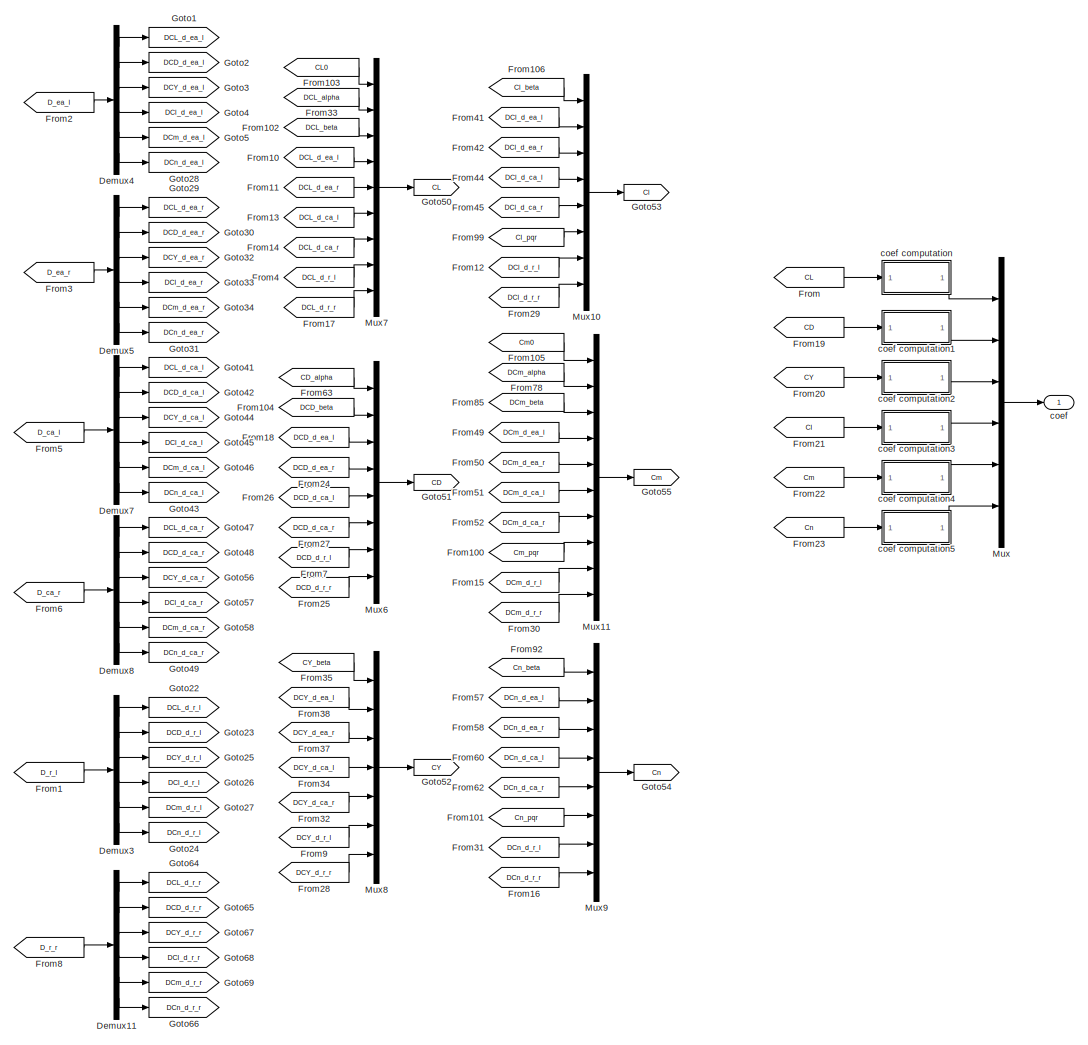
[diagram: Forces & Moments/summation - part 1/2, most of the canvas]
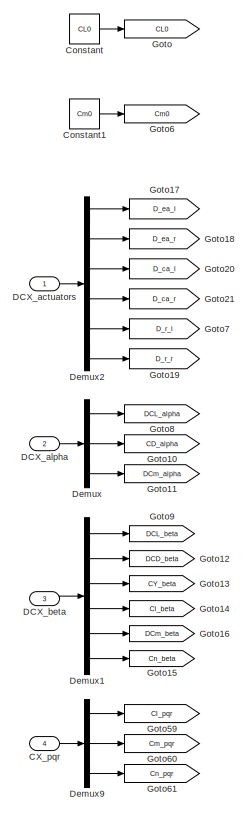
[diagram: Forces & Moments/summation - part 2/2, left side, full height]
BLOCK [SubSystem] Forces & Moments/summation
  Ports = [4, 1]
  RequestExecContextInheritance = off
  Variant = off
BLOCK [Inport] Forces & Moments/summation/CX_pqr
  IconDisplay = Port number
  Port = 4
BLOCK [Constant] Forces & Moments/summation/Constant
  OutDataTypeStr = single
  Value = CL0
BLOCK [Constant] Forces & Moments/summation/Constant1
  OutDataTypeStr = single
  Value = Cm0
BLOCK [Inport] Forces & Moments/summation/DCX_actuators
  IconDisplay = Port number
BLOCK [Inport] Forces & Moments/summation/DCX_alpha
  IconDisplay = Port number
  Port = 2
BLOCK [Inport] Forces & Moments/summation/DCX_beta
  IconDisplay = Port number
  Port = 3
BLOCK [Demux] Forces & Moments/summation/Demux
  DisplayOption = bar
  Outputs = 3
  Ports = [1, 3]
BLOCK [Demux] Forces & Moments/summation/Demux1
  DisplayOption = bar
  Outputs = 6
  Ports = [1, 6]
BLOCK [Demux] Forces & Moments/summation/Demux11
  DisplayOption = bar
  Outputs = 6
  Ports = [1, 6]
BLOCK [Demux] Forces & Moments/summation/Demux2
  DisplayOption = bar
  Outputs = 6
  Ports = [1, 6]
BLOCK [Demux] Forces & Moments/summation/Demux3
  DisplayOption = bar
  Outputs = 6
  Ports = [1, 6]
BLOCK [Demux] Forces & Moments/summation/Demux4
  DisplayOption = bar
  Outputs = 6
  Ports = [1, 6]
BLOCK [Demux] Forces & Moments/summation/Demux5
  DisplayOption = bar
  Outputs = 6
  Ports = [1, 6]
BLOCK [Demux] Forces & Moments/summation/Demux7
  DisplayOption = bar
  Outputs = 6
  Ports = [1, 6]
BLOCK [Demux] Forces & Moments/summation/Demux8
  DisplayOption = bar
  Outputs = 6
  Ports = [1, 6]
BLOCK [Demux] Forces & Moments/summation/Demux9
  DisplayOption = bar
  Outputs = 3
  Ports = [1, 3]
BLOCK [From] Forces & Moments/summation/From
  GotoTag = CL
BLOCK [From] Forces & Moments/summation/From1
  GotoTag = D_r_l
BLOCK [From] Forces & Moments/summation/From10
  GotoTag = DCL_d_ea_l
BLOCK [From] Forces & Moments/summation/From100
  GotoTag = Cm_pqr
BLOCK [From] Forces & Moments/summation/From101
  GotoTag = Cn_pqr
BLOCK [From] Forces & Moments/summation/From102
  GotoTag = DCL_beta
BLOCK [From] Forces & Moments/summation/From103
  GotoTag = CL0
BLOCK [From] Forces & Moments/summation/From104
  GotoTag = DCD_beta
BLOCK [From] Forces & Moments/summation/From105
  GotoTag = Cm0
BLOCK [From] Forces & Moments/summation/From106
  GotoTag = Cl_beta
BLOCK [From] Forces & Moments/summation/From11
  GotoTag = DCL_d_ea_r
BLOCK [From] Forces & Moments/summation/From12
  GotoTag = DCl_d_r_l
BLOCK [From] Forces & Moments/summation/From13
  GotoTag = DCL_d_ca_l
BLOCK [From] Forces & Moments/summation/From14
  GotoTag = DCL_d_ca_r
BLOCK [From] Forces & Moments/summation/From15
  GotoTag = DCm_d_r_l
BLOCK [From] Forces & Moments/summation/From16
  GotoTag = DCn_d_r_r
BLOCK [From] Forces & Moments/summation/From17
  GotoTag = DCL_d_r_r
BLOCK [From] Forces & Moments/summation/From18
  GotoTag = DCD_d_ea_l
BLOCK [From] Forces & Moments/summation/From19
  GotoTag = CD
BLOCK [From] Forces & Moments/summation/From2
  GotoTag = D_ea_l
BLOCK [From] Forces & Moments/summation/From20
  GotoTag = CY
BLOCK [From] Forces & Moments/summation/From21
  GotoTag = Cl
BLOCK [From] Forces & Moments/summation/From22
  GotoTag = Cm
BLOCK [From] Forces & Moments/summation/From23
  GotoTag = Cn
BLOCK [From] Forces & Moments/summation/From24
  GotoTag = DCD_d_ea_r
BLOCK [From] Forces & Moments/summation/From25
  GotoTag = DCD_d_r_r
BLOCK [From] Forces & Moments/summation/From26
  GotoTag = DCD_d_ca_l
BLOCK [From] Forces & Moments/summation/From27
  GotoTag = DCD_d_ca_r
BLOCK [From] Forces & Moments/summation/From28
  GotoTag = DCY_d_r_r
BLOCK [From] Forces & Moments/summation/From29
  GotoTag = DCl_d_r_r
BLOCK [From] Forces & Moments/summation/From3
  GotoTag = D_ea_r
BLOCK [From] Forces & Moments/summation/From30
  GotoTag = DCm_d_r_r
BLOCK [From] Forces & Moments/summation/From31
  GotoTag = DCn_d_r_l
BLOCK [From] Forces & Moments/summation/From32
  GotoTag = DCY_d_ca_r
BLOCK [From] Forces & Moments/summation/From33
  GotoTag = DCL_alpha
BLOCK [From] Forces & Moments/summation/From34
  GotoTag = DCY_d_ca_l
BLOCK [From] Forces & Moments/summation/From35
  GotoTag = CY_beta
BLOCK [From] Forces & Moments/summation/From37
  GotoTag = DCY_d_ea_r
BLOCK [From] Forces & Moments/summation/From38
  GotoTag = DCY_d_ea_l
BLOCK [From] Forces & Moments/summation/From4
  GotoTag = DCL_d_r_l
BLOCK [From] Forces & Moments/summation/From41
  GotoTag = DCl_d_ea_l
BLOCK [From] Forces & Moments/summation/From42
  GotoTag = DCl_d_ea_r
BLOCK [From] Forces & Moments/summation/From44
  GotoTag = DCl_d_ca_l
BLOCK [From] Forces & Moments/summation/From45
  GotoTag = DCl_d_ca_r
BLOCK [From] Forces & Moments/summation/From49
  GotoTag = DCm_d_ea_l
BLOCK [From] Forces & Moments/summation/From5
  GotoTag = D_ca_l
BLOCK [From] Forces & Moments/summation/From50
  GotoTag = DCm_d_ea_r
BLOCK [From] Forces & Moments/summation/From51
  GotoTag = DCm_d_ca_l
BLOCK [From] Forces & Moments/summation/From52
  GotoTag = DCm_d_ca_r
BLOCK [From] Forces & Moments/summation/From57
  GotoTag = DCn_d_ea_l
BLOCK [From] Forces & Moments/summation/From58
  GotoTag = DCn_d_ea_r
BLOCK [From] Forces & Moments/summation/From6
  GotoTag = D_ca_r
BLOCK [From] Forces & Moments/summation/From60
  GotoTag = DCn_d_ca_l
BLOCK [From] Forces & Moments/summation/From62
  GotoTag = DCn_d_ca_r
BLOCK [From] Forces & Moments/summation/From63
  GotoTag = CD_alpha
BLOCK [From] Forces & Moments/summation/From7
  GotoTag = DCD_d_r_l
BLOCK [From] Forces & Moments/summation/From78
  GotoTag = DCm_alpha
BLOCK [From] Forces & Moments/summation/From8
  GotoTag = D_r_r
BLOCK [From] Forces & Moments/summation/From85
  GotoTag = DCm_beta
BLOCK [From] Forces & Moments/summation/From9
  GotoTag = DCY_d_r_l
BLOCK [From] Forces & Moments/summation/From92
  GotoTag = Cn_beta
BLOCK [From] Forces & Moments/summation/From99
  GotoTag = Cl_pqr
BLOCK [Goto] Forces & Moments/summation/Goto
  GotoTag = CL0
BLOCK [Goto] Forces & Moments/summation/Goto1
  GotoTag = DCL_d_ea_l
BLOCK [Goto] Forces & Moments/summation/Goto10
  GotoTag = CD_alpha
BLOCK [Goto] Forces & Moments/summation/Goto11
  GotoTag = DCm_alpha
BLOCK [Goto] Forces & Moments/summation/Goto12
  GotoTag = DCD_beta
BLOCK [Goto] Forces & Moments/summation/Goto13
  GotoTag = CY_beta
BLOCK [Goto] Forces & Moments/summation/Goto14
  GotoTag = Cl_beta
BLOCK [Goto] Forces & Moments/summation/Goto15
  GotoTag = Cn_beta
BLOCK [Goto] Forces & Moments/summation/Goto16
  GotoTag = DCm_beta
BLOCK [Goto] Forces & Moments/summation/Goto17
  GotoTag = D_ea_l
BLOCK [Goto] Forces & Moments/summation/Goto18
  GotoTag = D_ea_r
BLOCK [Goto] Forces & Moments/summation/Goto19
  GotoTag = D_r_r
BLOCK [Goto] Forces & Moments/summation/Goto2
  GotoTag = DCD_d_ea_l
BLOCK [Goto] Forces & Moments/summation/Goto20
  GotoTag = D_ca_l
BLOCK [Goto] Forces & Moments/summation/Goto21
  GotoTag = D_ca_r
BLOCK [Goto] Forces & Moments/summation/Goto22
  GotoTag = DCL_d_r_l
BLOCK [Goto] Forces & Moments/summation/Goto23
  GotoTag = DCD_d_r_l
BLOCK [Goto] Forces & Moments/summation/Goto24
  GotoTag = DCn_d_r_l
BLOCK [Goto] Forces & Moments/summation/Goto25
  GotoTag = DCY_d_r_l
BLOCK [Goto] Forces & Moments/summation/Goto26
  GotoTag = DCl_d_r_l
BLOCK [Goto] Forces & Moments/summation/Goto27
  GotoTag = DCm_d_r_l
BLOCK [Goto] Forces & Moments/summation/Goto28
  GotoTag = DCn_d_ea_l
BLOCK [Goto] Forces & Moments/summation/Goto29
  GotoTag = DCL_d_ea_r
BLOCK [Goto] Forces & Moments/summation/Goto3
  GotoTag = DCY_d_ea_l
BLOCK [Goto] Forces & Moments/summation/Goto30
  GotoTag = DCD_d_ea_r
BLOCK [Goto] Forces & Moments/summation/Goto31
  GotoTag = DCn_d_ea_r
BLOCK [Goto] Forces & Moments/summation/Goto32
  GotoTag = DCY_d_ea_r
BLOCK [Goto] Forces & Moments/summation/Goto33
  GotoTag = DCl_d_ea_r
BLOCK [Goto] Forces & Moments/summation/Goto34
  GotoTag = DCm_d_ea_r
BLOCK [Goto] Forces & Moments/summation/Goto4
  GotoTag = DCl_d_ea_l
BLOCK [Goto] Forces & Moments/summation/Goto41
  GotoTag = DCL_d_ca_l
BLOCK [Goto] Forces & Moments/summation/Goto42
  GotoTag = DCD_d_ca_l
BLOCK [Goto] Forces & Moments/summation/Goto43
  GotoTag = DCn_d_ca_l
BLOCK [Goto] Forces & Moments/summation/Goto44
  GotoTag = DCY_d_ca_l
BLOCK [Goto] Forces & Moments/summation/Goto45
  GotoTag = DCl_d_ca_l
BLOCK [Goto] Forces & Moments/summation/Goto46
  GotoTag = DCm_d_ca_l
BLOCK [Goto] Forces & Moments/summation/Goto47
  GotoTag = DCL_d_ca_r
BLOCK [Goto] Forces & Moments/summation/Goto48
  GotoTag = DCD_d_ca_r
BLOCK [Goto] Forces & Moments/summation/Goto49
  GotoTag = DCn_d_ca_r
BLOCK [Goto] Forces & Moments/summation/Goto5
  GotoTag = DCm_d_ea_l
BLOCK [Goto] Forces & Moments/summation/Goto50
  GotoTag = CL
BLOCK [Goto] Forces & Moments/summation/Goto51
  GotoTag = CD
BLOCK [Goto] Forces & Moments/summation/Goto52
  GotoTag = CY
BLOCK [Goto] Forces & Moments/summation/Goto53
  GotoTag = Cl
BLOCK [Goto] Forces & Moments/summation/Goto54
  GotoTag = Cn
BLOCK [Goto] Forces & Moments/summation/Goto55
  GotoTag = Cm
BLOCK [Goto] Forces & Moments/summation/Goto56
  GotoTag = DCY_d_ca_r
BLOCK [Goto] Forces & Moments/summation/Goto57
  GotoTag = DCl_d_ca_r
BLOCK [Goto] Forces & Moments/summation/Goto58
  GotoTag = DCm_d_ca_r
BLOCK [Goto] Forces & Moments/summation/Goto59
  GotoTag = Cl_pqr
BLOCK [Goto] Forces & Moments/summation/Goto6
  GotoTag = Cm0
BLOCK [Goto] Forces & Moments/summation/Goto60
  GotoTag = Cm_pqr
BLOCK [Goto] Forces & Moments/summation/Goto61
  GotoTag = Cn_pqr
BLOCK [Goto] Forces & Moments/summation/Goto64
  GotoTag = DCL_d_r_r
BLOCK [Goto] Forces & Moments/summation/Goto65
  GotoTag = DCD_d_r_r
BLOCK [Goto] Forces & Moments/summation/Goto66
  GotoTag = DCn_d_r_r
BLOCK [Goto] Forces & Moments/summation/Goto67
  GotoTag = DCY_d_r_r
BLOCK [Goto] Forces & Moments/summation/Goto68
  GotoTag = DCl_d_r_r
BLOCK [Goto] Forces & Moments/summation/Goto69
  GotoTag = DCm_d_r_r
BLOCK [Goto] Forces & Moments/summation/Goto7
  GotoTag = D_r_l
BLOCK [Goto] Forces & Moments/summation/Goto8
  GotoTag = DCL_alpha
BLOCK [Goto] Forces & Moments/summation/Goto9
  GotoTag = DCL_beta
BLOCK [Mux] Forces & Moments/summation/Mux
  DisplayOption = bar
  Inputs = 6
  Ports = [6, 1]
BLOCK [Mux] Forces & Moments/summation/Mux10
  DisplayOption = bar
  Inputs = 8
  Ports = [8, 1]
BLOCK [Mux] Forces & Moments/summation/Mux11
  DisplayOption = bar
  Inputs = 10
  Ports = [10, 1]
BLOCK [Mux] Forces & Moments/summation/Mux6
  DisplayOption = bar
  Inputs = 8
  Ports = [8, 1]
BLOCK [Mux] Forces & Moments/summation/Mux7
  DisplayOption = bar
  Inputs = 9
  Ports = [9, 1]
BLOCK [Mux] Forces & Moments/summation/Mux8
  DisplayOption = bar
  Inputs = 7
  Ports = [7, 1]
BLOCK [Mux] Forces & Moments/summation/Mux9
  DisplayOption = bar
  Inputs = 8
  Ports = [8, 1]
BLOCK [Outport] Forces & Moments/summation/coef
  IconDisplay = Port number
BLOCK [SubSystem] Forces & Moments/summation/coef computation
  Ports = [1, 1]
  RequestExecContextInheritance = off
  Variant = off
BLOCK [Sum] Forces & Moments/summation/coef computation/Add1
  InputSameDT = off
  Inputs = +++++++++
  OutDataTypeStr = Inherit: Inherit via internal rule
  Ports = [9, 1]
  SaturateOnIntegerOverflow = off
BLOCK [Demux] Forces & Moments/summation/coef computation/Demux
  DisplayOption = bar
  Outputs = 9
  Ports = [1, 9]
BLOCK [Inport] Forces & Moments/summation/coef computation/In
  IconDisplay = Port number
BLOCK [Outport] Forces & Moments/summation/coef computation/Out
  IconDisplay = Port number
BLOCK [SubSystem] Forces & Moments/summation/coef computation1
  Ports = [1, 1]
  RequestExecContextInheritance = off
  Variant = off
BLOCK [Sum] Forces & Moments/summation/coef computation1/Add1
  InputSameDT = off
  Inputs = ++++++++
  OutDataTypeStr = Inherit: Inherit via internal rule
  Ports = [8, 1]
  SaturateOnIntegerOverflow = off
BLOCK [Demux] Forces & Moments/summation/coef computation1/Demux
  DisplayOption = bar
  Outputs = 8
  Ports = [1, 8]
BLOCK [Inport] Forces & Moments/summation/coef computation1/In
  IconDisplay = Port number
BLOCK [Outport] Forces & Moments/summation/coef computation1/Out
  IconDisplay = Port number
BLOCK [SubSystem] Forces & Moments/summation/coef computation2
  Ports = [1, 1]
  RequestExecContextInheritance = off
  Variant = off
BLOCK [Sum] Forces & Moments/summation/coef computation2/Add1
  InputSameDT = off
  Inputs = +++++++
  OutDataTypeStr = Inherit: Inherit via internal rule
  Ports = [7, 1]
  SaturateOnIntegerOverflow = off
BLOCK [Demux] Forces & Moments/summation/coef computation2/Demux
  DisplayOption = bar
  Outputs = 7
  Ports = [1, 7]
BLOCK [Inport] Forces & Moments/summation/coef computation2/In
  IconDisplay = Port number
BLOCK [Outport] Forces & Moments/summation/coef computation2/Out
  IconDisplay = Port number
BLOCK [SubSystem] Forces & Moments/summation/coef computation3
  Ports = [1, 1]
  RequestExecContextInheritance = off
  Variant = off
BLOCK [Sum] Forces & Moments/summation/coef computation3/Add1
  InputSameDT = off
  Inputs = ++++++++
  OutDataTypeStr = Inherit: Inherit via internal rule
  Ports = [8, 1]
  SaturateOnIntegerOverflow = off
BLOCK [Demux] Forces & Moments/summation/coef computation3/Demux
  DisplayOption = bar
  Outputs = 8
  Ports = [1, 8]
BLOCK [Inport] Forces & Moments/summation/coef computation3/In
  IconDisplay = Port number
BLOCK [Outport] Forces & Moments/summation/coef computation3/Out
  IconDisplay = Port number
BLOCK [SubSystem] Forces & Moments/summation/coef computation4
  Ports = [1, 1]
  RequestExecContextInheritance = off
  Variant = off
BLOCK [Sum] Forces & Moments/summation/coef computation4/Add1
  InputSameDT = off
  Inputs = ++++++++++
  OutDataTypeStr = Inherit: Inherit via internal rule
  Ports = [10, 1]
  SaturateOnIntegerOverflow = off
BLOCK [Demux] Forces & Moments/summation/coef computation4/Demux
  DisplayOption = bar
  Outputs = 10
  Ports = [1, 10]
BLOCK [Inport] Forces & Moments/summation/coef computation4/In
  IconDisplay = Port number
BLOCK [Outport] Forces & Moments/summation/coef computation4/Out
  IconDisplay = Port number
BLOCK [SubSystem] Forces & Moments/summation/coef computation5
  Ports = [1, 1]
  RequestExecContextInheritance = off
  Variant = off
BLOCK [Sum] Forces & Moments/summation/coef computation5/Add1
  InputSameDT = off
  Inputs = ++++++++
  OutDataTypeStr = Inherit: Inherit via internal rule
  Ports = [8, 1]
  SaturateOnIntegerOverflow = off
BLOCK [Demux] Forces & Moments/summation/coef computation5/Demux
  DisplayOption = bar
  Outputs = 8
  Ports = [1, 8]
BLOCK [Inport] Forces & Moments/summation/coef computation5/In
  IconDisplay = Port number
BLOCK [Outport] Forces & Moments/summation/coef computation5/Out
  IconDisplay = Port number
BLOCK [From] From1
  GotoTag = pqr
BLOCK [From] From2
  GotoTag = alpha
BLOCK [From] From3
  GotoTag = Vair
BLOCK [Gain] Gain
  Gain = -1
  OutDataTypeStr = Inherit: Inherit via internal rule
  ParamDataTypeStr = Inherit: Inherit via internal rule
  SaturateOnIntegerOverflow = off
BLOCK [Goto] Goto
  GotoTag = pitchTheta0
BLOCK [Goto] Goto1
  GotoTag = pqr
BLOCK [Goto] Goto2
  GotoTag = Vair
BLOCK [Goto] Goto3
  GotoTag = alpha
BLOCK [ManualSwitch] Manual Switch
BLOCK [ManualSwitch] Manual Switch1
  CurrentSetting = 0
BLOCK [Mux] Mux
  DisplayOption = bar
  Inputs = 2
  Ports = [2, 1]
BLOCK [Mux] Mux1
  DisplayOption = bar
  Inputs = 6
  Ports = [6, 1]
BLOCK [Mux] Mux2
  DisplayOption = bar
  Inputs = 2
  Ports = [2, 1]
BLOCK [Mux] Mux3
  DisplayOption = bar
  Inputs = 3
  Ports = [3, 1]
BLOCK [Scope] Scope
  NumInputPorts = 1
  Ports = [1]
  ScopeSpecificationString = Simulink.scopes.TimeScopeBlockCfg('CurrentConfiguration', extmgr.ConfigurationSet(extmgr.Configuration('Core','General UI',true),extmgr.Configuration('Core','Source UI',true),extmgr.Configuration('Sources','WiredSimulink',true,'DataLoggingVariableName','ScopeData5'),extmgr.Configuration('Visuals','Time Domain',true,'SerializedDisplays',{struct('MinYLimReal','-1935.43803','MaxYLimReal','14759.37617...<+1800ch>
BLOCK [Scope] Scope1
  NumInputPorts = 1
  Ports = [1]
  ScopeSpecificationString = Simulink.scopes.TimeScopeBlockCfg('CurrentConfiguration', extmgr.ConfigurationSet(extmgr.Configuration('Core','General UI',true),extmgr.Configuration('Core','Source UI',true),extmgr.Configuration('Sources','WiredSimulink',true,'DataLoggingVariableName','ScopeData1'),extmgr.Configuration('Visuals','Time Domain',true,'SerializedDisplays',{struct('MinYLimReal','0.05209','MaxYLimReal','0.05221','YLabe...<+1723ch>
BLOCK [Scope] Scope10
  NumInputPorts = 2
  Ports = [2]
  ScopeSpecificationString = Simulink.scopes.TimeScopeBlockCfg('CurrentConfiguration', extmgr.ConfigurationSet(extmgr.Configuration('Core','General UI',true),extmgr.Configuration('Core','Source UI',true),extmgr.Configuration('Sources','WiredSimulink',true,'DataLoggingVariableName','ScopeData6'),extmgr.Configuration('Visuals','Time Domain',true,'SerializedDisplays',{struct('MinYLimReal','-13.72424','MaxYLimReal','2.89505','YLa...<+1410ch>
BLOCK [Scope] Scope2
  NumInputPorts = 1
  Ports = [1]
  ScopeSpecificationString = Simulink.scopes.TimeScopeBlockCfg('CurrentConfiguration', extmgr.ConfigurationSet(extmgr.Configuration('Core','General UI',true),extmgr.Configuration('Core','Source UI',true),extmgr.Configuration('Sources','WiredSimulink',true,'DataLoggingVariableName','ScopeData2'),extmgr.Configuration('Visuals','Time Domain',true,'SerializedDisplays',{struct('MinYLimReal','-0.000028','MaxYLimReal','0.000033','YL...<+1413ch>
BLOCK [Scope] Scope3
  NumInputPorts = 1
  Ports = [1]
  ScopeSpecificationString = Simulink.scopes.TimeScopeBlockCfg('CurrentConfiguration', extmgr.ConfigurationSet(extmgr.Configuration('Core','General UI',true),extmgr.Configuration('Core','Source UI',true),extmgr.Configuration('Sources','WiredSimulink',true,'DataLoggingVariableName','ScopeData3'),extmgr.Configuration('Visuals','Time Domain',true,'SerializedDisplays',{struct('MinYLimReal','-2.22354','MaxYLimReal','31.98021','YLa...<+1837ch>
BLOCK [Scope] Scope4
  NumInputPorts = 1
  Ports = [1]
  ScopeSpecificationString = Simulink.scopes.TimeScopeBlockCfg('CurrentConfiguration', extmgr.ConfigurationSet(extmgr.Configuration('Core','General UI',true),extmgr.Configuration('Core','Source UI',true),extmgr.Configuration('Sources','WiredSimulink',true,'DataLoggingVariableName','ScopeData4'),extmgr.Configuration('Visuals','Time Domain',true,'SerializedDisplays',{struct('MinYLimReal','-0.0007','MaxYLimReal','0.00124','YLabe...<+1428ch>
BLOCK [Scope] Scope5
  NumInputPorts = 1
  Ports = [1]
  ScopeSpecificationString = Simulink.scopes.TimeScopeBlockCfg('CurrentConfiguration', extmgr.ConfigurationSet(extmgr.Configuration('Core','General UI',true),extmgr.Configuration('Core','Source UI',true),extmgr.Configuration('Sources','WiredSimulink',true,'DataLoggingVariableName','ScopeData1'),extmgr.Configuration('Visuals','Time Domain',true,'SerializedDisplays',{struct('MinYLimReal','-0.00032','MaxYLimReal','0.00042','YLab...<+1726ch>
BLOCK [Scope] Scope6
  NumInputPorts = 1
  Ports = [1]
  ScopeSpecificationString = Simulink.scopes.TimeScopeBlockCfg('CurrentConfiguration', extmgr.ConfigurationSet(extmgr.Configuration('Core','General UI',true),extmgr.Configuration('Core','Source UI',true),extmgr.Configuration('Sources','WiredSimulink',true,'DataLoggingVariableName','ScopeData2'),extmgr.Configuration('Visuals','Time Domain',true,'SerializedDisplays',{struct('MinYLimReal','0.047094','MaxYLimReal','0.047122','YLa...<+1778ch>
BLOCK [Scope] Scope7
  NumInputPorts = 2
  Ports = [2]
  ScopeSpecificationString = Simulink.scopes.TimeScopeBlockCfg('CurrentConfiguration', extmgr.ConfigurationSet(extmgr.Configuration('Core','General UI',true),extmgr.Configuration('Core','Source UI',true),extmgr.Configuration('Sources','WiredSimulink',true,'DataLoggingVariableName','ScopeData3'),extmgr.Configuration('Visuals','Time Domain',true,'SerializedDisplays',{struct('MinYLimReal','0.05209','MaxYLimReal','0.05221','YLabe...<+1415ch>
BLOCK [Scope] Scope8
  NumInputPorts = 2
  Ports = [2]
  ScopeSpecificationString = Simulink.scopes.TimeScopeBlockCfg('CurrentConfiguration', extmgr.ConfigurationSet(extmgr.Configuration('Core','General UI',true),extmgr.Configuration('Core','Source UI',true),extmgr.Configuration('Sources','WiredSimulink',true,'DataLoggingVariableName','ScopeData4'),extmgr.Configuration('Visuals','Time Domain',true,'SerializedDisplays',{struct('MinYLimReal','-0.00032','MaxYLimReal','0.00042','YLab...<+1417ch>
BLOCK [Scope] Scope9
  NumInputPorts = 2
  Ports = [2]
  ScopeSpecificationString = Simulink.scopes.TimeScopeBlockCfg('CurrentConfiguration', extmgr.ConfigurationSet(extmgr.Configuration('Core','General UI',true),extmgr.Configuration('Core','Source UI',true),extmgr.Configuration('Sources','WiredSimulink',true,'DataLoggingVariableName','ScopeData5'),extmgr.Configuration('Visuals','Time Domain',true,'SerializedDisplays',{struct('MinYLimReal','-260.47361','MaxYLimReal','57.99957','Y...<+1437ch>
BLOCK [StateSpace] State-Space
  A = A
  B = B
  C = C
  D = D
  InitialCondition = [pitchTheta0 u0 w0 q0]
  Ports = [1, 1]
BLOCK [Step] Step
  After = 5
  SampleTime = 0
BLOCK [SubSystem] Subsystem
  Ports = [1, 2]
  RequestExecContextInheritance = off
  Variant = off
BLOCK [Trigonometry] Subsystem/Atan2
  Operator = atan2
  Ports = [2, 1]
BLOCK [Constant] Subsystem/Constant
  Value = 0
BLOCK [Demux] Subsystem/Demux2
  DisplayOption = bar
  Outputs = 2
  Ports = [1, 2]
BLOCK [Inport] Subsystem/In1
  IconDisplay = Port number
BLOCK [Mux] Subsystem/Mux2
  DisplayOption = bar
  Inputs = 3
  Ports = [3, 1]
BLOCK [Outport] Subsystem/V_air
  IconDisplay = Port number
  Port = 2
BLOCK [Outport] Subsystem/alpha
  IconDisplay = Port number
BLOCK [Terminator] Terminator
BLOCK [Terminator] Terminator1
BLOCK [Terminator] Terminator3
BLOCK [Terminator] Terminator6
BLOCK [Terminator] Terminator8
BLOCK [Inport] d_ca
  IconDisplay = Port number
BLOCK [Inport] thrust
  IconDisplay = Port number
  Port = 2
NET 3DOF (Body Axes):1 -> Goto:1, Scope1:1, Scope7:2
NET 3DOF (Body Axes):2 -> Mux3:2, Scope2:1
NET 3DOF (Body Axes):3 -> Scope5:1, Scope8:2, Terminator3:1
LINE 3DOF (Body Axes):4 -> Scope:1
NET 3DOF (Body Axes):5 -> Demux3:1, Scope3:1, Subsystem:1
NET 3DOF (Body Axes):6 -> Scope4:1, Terminator1:1
LINE Add:1 -> 3DOF (Body Axes):1
NET Constant1:1 -> Mux3:1, Mux3:3
LINE Constant2:1 -> Mux:2
NET Constant3:1 -> Gain:1, Mux1:1
NET Constant4:1 -> Mux1:5, Mux1:6
LINE Constant5:1 -> Manual Switch:1
LINE Demux1:1 -> Terminator6:1
LINE Demux1:2 -> 3DOF (Body Axes):3
LINE Demux1:3 -> Terminator8:1
LINE Demux2:1 -> Scope7:1
LINE Demux2:2 -> Scope8:1
LINE Demux2:3 -> Scope9:1
LINE Demux2:4 -> Scope10:1
LINE Demux3:1 -> Scope9:2
LINE Demux3:2 -> Scope10:2
LINE Demux:1 -> Add:2
LINE Demux:2 -> Terminator:1
LINE Demux:3 -> 3DOF (Body Axes):2
LINE Forces & Moments/Add:1 -> Forces & Moments/Sqrt:1
LINE Forces & Moments/CG position correction/Add1:1 -> Forces & Moments/CG position correction/Cn:1
LINE Forces & Moments/CG position correction/Add2:1 -> Forces & Moments/CG position correction/Cm:1
LINE Forces & Moments/CG position correction/Add3:1 -> Forces & Moments/CG position correction/Cl:1
LINE Forces & Moments/CG position correction/Add4:1 -> Forces & Moments/CG position correction/Goto9:1
LINE Forces & Moments/CG position correction/Add:1 -> Forces & Moments/CG position correction/Goto3:1
NET Forces & Moments/CG position correction/Constant1:1 -> Forces & Moments/CG position correction/Divide1:2, Forces & Moments/CG position correction/Divide2:2
LINE Forces & Moments/CG position correction/Constant2:1 -> Forces & Moments/CG position correction/Sum:2
NET Forces & Moments/CG position correction/Constant3:1 -> Forces & Moments/CG position correction/Divide3:2, Forces & Moments/CG position correction/Divide4:2
LINE Forces & Moments/CG position correction/Constant4:1 -> Forces & Moments/CG position correction/Sum1:2
NET Forces & Moments/CG position correction/Cos1:1 -> Forces & Moments/CG position correction/Product1:3, Forces & Moments/CG position correction/Product5:3
NET Forces & Moments/CG position correction/Cos:1 -> Forces & Moments/CG position correction/Product5:2, Forces & Moments/CG position correction/Product:2
LINE Forces & Moments/CG position correction/Degrees to Radians1:1 -> Forces & Moments/CG position correction/Goto65:1
LINE Forces & Moments/CG position correction/Degrees to Radians:1 -> Forces & Moments/CG position correction/Goto64:1
LINE Forces & Moments/CG position correction/Demux:1 -> Forces & Moments/CG position correction/Goto1:1
LINE Forces & Moments/CG position correction/Demux:2 -> Forces & Moments/CG position correction/Goto2:1
LINE Forces & Moments/CG position correction/Demux:3 -> Forces & Moments/CG position correction/Goto4:1
LINE Forces & Moments/CG position correction/Demux:4 -> Forces & Moments/CG position correction/Goto5:1
LINE Forces & Moments/CG position correction/Demux:5 -> Forces & Moments/CG position correction/Goto6:1
LINE Forces & Moments/CG position correction/Demux:6 -> Forces & Moments/CG position correction/Goto7:1
LINE Forces & Moments/CG position correction/Divide1:1 -> Forces & Moments/CG position correction/Product3:2
LINE Forces & Moments/CG position correction/Divide2:1 -> Forces & Moments/CG position correction/Product4:2
LINE Forces & Moments/CG position correction/Divide3:1 -> Forces & Moments/CG position correction/Product2:1
LINE Forces & Moments/CG position correction/Divide4:1 -> Forces & Moments/CG position correction/Product7:2
LINE Forces & Moments/CG position correction/From10:1 -> Forces & Moments/CG position correction/CD:1
LINE Forces & Moments/CG position correction/From11:1 -> Forces & Moments/CG position correction/CY:1
LINE Forces & Moments/CG position correction/From12:1 -> Forces & Moments/CG position correction/Sum1:1
LINE Forces & Moments/CG position correction/From13:1 -> Forces & Moments/CG position correction/Product4:1
LINE Forces & Moments/CG position correction/From14:1 -> Forces & Moments/CG position correction/Product7:1
NET Forces & Moments/CG position correction/From1:1 -> Forces & Moments/CG position correction/Cos:1, Forces & Moments/CG position correction/Trigonometric Function:1
LINE Forces & Moments/CG position correction/From2:1 -> Forces & Moments/CG position correction/Cos1:1
NET Forces & Moments/CG position correction/From3:1 -> Forces & Moments/CG position correction/Product1:1, Forces & Moments/CG position correction/Product5:1
LINE Forces & Moments/CG position correction/From4:1 -> Forces & Moments/CG position correction/Product2:2
LINE Forces & Moments/CG position correction/From5:1 -> Forces & Moments/CG position correction/Product3:1
LINE Forces & Moments/CG position correction/From6:1 -> Forces & Moments/CG position correction/Add1:1
LINE Forces & Moments/CG position correction/From76:1 -> Forces & Moments/CG position correction/Sum:1
LINE Forces & Moments/CG position correction/From7:1 -> Forces & Moments/CG position correction/Add2:1
LINE Forces & Moments/CG position correction/From8:1 -> Forces & Moments/CG position correction/Add3:1
LINE Forces & Moments/CG position correction/From9:1 -> Forces & Moments/CG position correction/CL:1
NET Forces & Moments/CG position correction/From:1 -> Forces & Moments/CG position correction/Product6:2, Forces & Moments/CG position correction/Product:1
LINE Forces & Moments/CG position correction/Product1:1 -> Forces & Moments/CG position correction/Add:2
LINE Forces & Moments/CG position correction/Product2:1 -> Forces & Moments/CG position correction/Add2:2
LINE Forces & Moments/CG position correction/Product3:1 -> Forces & Moments/CG position correction/Add1:2
LINE Forces & Moments/CG position correction/Product4:1 -> Forces & Moments/CG position correction/Add3:2
LINE Forces & Moments/CG position correction/Product5:1 -> Forces & Moments/CG position correction/Add4:1
LINE Forces & Moments/CG position correction/Product6:1 -> Forces & Moments/CG position correction/Add4:2
LINE Forces & Moments/CG position correction/Product7:1 -> Forces & Moments/CG position correction/Add2:3
LINE Forces & Moments/CG position correction/Product:1 -> Forces & Moments/CG position correction/Add:1
NET Forces & Moments/CG position correction/Sum1:1 -> Forces & Moments/CG position correction/Divide2:1, Forces & Moments/CG position correction/Divide4:1
NET Forces & Moments/CG position correction/Sum:1 -> Forces & Moments/CG position correction/Divide1:1, Forces & Moments/CG position correction/Divide3:1
NET Forces & Moments/CG position correction/Trigonometric Function:1 -> Forces & Moments/CG position correction/Product1:2, Forces & Moments/CG position correction/Product6:1
LINE Forces & Moments/CG position correction/alpha:1 -> Forces & Moments/CG position correction/Degrees to Radians:1
LINE Forces & Moments/CG position correction/beta:1 -> Forces & Moments/CG position correction/Degrees to Radians1:1
LINE Forces & Moments/CG position correction/coef:1 -> Forces & Moments/CG position correction/Demux:1
LINE Forces & Moments/CG position correction/x_CG:1 -> Forces & Moments/CG position correction/Goto66:1
LINE Forces & Moments/CG position correction/z_CG:1 -> Forces & Moments/CG position correction/Goto8:1
LINE Forces & Moments/CG position correction:1 -> Forces & Moments/Mux:1
LINE Forces & Moments/CG position correction:2 -> Forces & Moments/Mux:2
LINE Forces & Moments/CG position correction:3 -> Forces & Moments/Mux:3
LINE Forces & Moments/CG position correction:4 -> Forces & Moments/Mux:4
LINE Forces & Moments/CG position correction:5 -> Forces & Moments/Mux:5
LINE Forces & Moments/CG position correction:6 -> Forces & Moments/Mux:6
LINE Forces & Moments/Constant1:1 -> Forces & Moments/Data Type Conversion4:1
LINE Forces & Moments/Constant3:1 -> Forces & Moments/Dynamic Pressure1:2
LINE Forces & Moments/Constant:1 -> Forces & Moments/Data Type Conversion3:1
LINE Forces & Moments/Ctrl Surf Position:1 -> Forces & Moments/Data Type Conversion:1
LINE Forces & Moments/Data Type Conversion1:1 -> Forces & Moments/Demux1:1
LINE Forces & Moments/Data Type Conversion2:1 -> Forces & Moments/Xishuzhuanliju:3
LINE Forces & Moments/Data Type Conversion3:1 -> Forces & Moments/CG position correction:4
LINE Forces & Moments/Data Type Conversion4:1 -> Forces & Moments/CG position correction:5
LINE Forces & Moments/Data Type Conversion5:1 -> Forces & Moments/summation:4
LINE Forces & Moments/Data Type Conversion:1 -> Forces & Moments/Demux:1
NET Forces & Moments/Demux1:1 -> Forces & Moments/CG position correction:1, Forces & Moments/prelookup:7
NET Forces & Moments/Demux1:2 -> Forces & Moments/CG position correction:2, Forces & Moments/prelookup:8
NET Forces & Moments/Demux3:1 -> Forces & Moments/Product:1, Forces & Moments/Product:2
NET Forces & Moments/Demux3:2 -> Forces & Moments/Product1:1, Forces & Moments/Product1:2
NET Forces & Moments/Demux3:3 -> Forces & Moments/Product2:1, Forces & Moments/Product2:2
LINE Forces & Moments/Demux:1 -> Forces & Moments/prelookup:1
LINE Forces & Moments/Demux:2 -> Forces & Moments/prelookup:2
LINE Forces & Moments/Demux:3 -> Forces & Moments/prelookup:3
LINE Forces & Moments/Demux:4 -> Forces & Moments/prelookup:4
LINE Forces & Moments/Demux:5 -> Forces & Moments/prelookup:5
LINE Forces & Moments/Demux:6 -> Forces & Moments/prelookup:6
LINE Forces & Moments/Dynamic Pressure1:1 -> Forces & Moments/Goto1:1
LINE Forces & Moments/From1:1 -> Forces & Moments/dynamic derivatives:2
LINE Forces & Moments/From2:1 -> Forces & Moments/F_X,Y,Z:1
LINE Forces & Moments/From3:1 -> Forces & Moments/Xishuzhuanliju:2
LINE Forces & Moments/Mux:1 -> Forces & Moments/Data Type Conversion2:1
LINE Forces & Moments/Product1:1 -> Forces & Moments/Add:2
LINE Forces & Moments/Product2:1 -> Forces & Moments/Add:3
LINE Forces & Moments/Product:1 -> Forces & Moments/Add:1
LINE Forces & Moments/Radians to Degrees:1 -> Forces & Moments/Data Type Conversion1:1
LINE Forces & Moments/Sqrt:1 -> Forces & Moments/Goto64:1
NET Forces & Moments/Vair:1 -> Forces & Moments/Demux3:1, Forces & Moments/Dynamic Pressure1:1
LINE Forces & Moments/Xishuzhuanliju/Aero Coeff:1 -> Forces & Moments/Xishuzhuanliju/Product4:2
LINE Forces & Moments/Xishuzhuanliju/Constant:1 -> Forces & Moments/Xishuzhuanliju/Product1:2
LINE Forces & Moments/Xishuzhuanliju/Demux3:1 -> Forces & Moments/Xishuzhuanliju/Demux4:1
LINE Forces & Moments/Xishuzhuanliju/Demux3:2 -> Forces & Moments/Xishuzhuanliju/Product1:1
LINE Forces & Moments/Xishuzhuanliju/Demux4:1 -> Forces & Moments/Xishuzhuanliju/Goto2:1
LINE Forces & Moments/Xishuzhuanliju/Demux4:2 -> Forces & Moments/Xishuzhuanliju/Goto3:1
LINE Forces & Moments/Xishuzhuanliju/Demux4:3 -> Forces & Moments/Xishuzhuanliju/Goto1:1
LINE Forces & Moments/Xishuzhuanliju/Demux:1 -> Forces & Moments/Xishuzhuanliju/Mux1:1
LINE Forces & Moments/Xishuzhuanliju/Demux:2 -> Forces & Moments/Xishuzhuanliju/Terminator:1
LINE Forces & Moments/Xishuzhuanliju/Demux:3 -> Forces & Moments/Xishuzhuanliju/Mux1:3
LINE Forces & Moments/Xishuzhuanliju/Direction Cosine Matrix Body to Wind1:1 -> Forces & Moments/Xishuzhuanliju/Transpose1:1
LINE Forces & Moments/Xishuzhuanliju/From1:1 -> Forces & Moments/Xishuzhuanliju/Mux1:2
LINE Forces & Moments/Xishuzhuanliju/From2:1 -> Forces & Moments/Xishuzhuanliju/Gain1:1
LINE Forces & Moments/Xishuzhuanliju/From:1 -> Forces & Moments/Xishuzhuanliju/Gain:1
LINE Forces & Moments/Xishuzhuanliju/Gain1:1 -> Forces & Moments/Xishuzhuanliju/Mux3:1
LINE Forces & Moments/Xishuzhuanliju/Gain:1 -> Forces & Moments/Xishuzhuanliju/Mux3:3
LINE Forces & Moments/Xishuzhuanliju/Mux1:1 -> Forces & Moments/Xishuzhuanliju/Aero F_X,Y,Z:1
LINE Forces & Moments/Xishuzhuanliju/Mux3:1 -> Forces & Moments/Xishuzhuanliju/Product5:2
LINE Forces & Moments/Xishuzhuanliju/Product1:1 -> Forces & Moments/Xishuzhuanliju/Aero M_L,M,N:1
LINE Forces & Moments/Xishuzhuanliju/Product4:1 -> Forces & Moments/Xishuzhuanliju/Demux3:1
LINE Forces & Moments/Xishuzhuanliju/Product5:1 -> Forces & Moments/Xishuzhuanliju/Demux:1
LINE Forces & Moments/Xishuzhuanliju/Transpose1:1 -> Forces & Moments/Xishuzhuanliju/Product5:1
LINE Forces & Moments/Xishuzhuanliju/Virtual CY:1 -> Forces & Moments/Xishuzhuanliju/Mux3:2
LINE Forces & Moments/Xishuzhuanliju/alpha & bet:1 -> Forces & Moments/Xishuzhuanliju/Direction Cosine Matrix Body to Wind1:1
LINE Forces & Moments/Xishuzhuanliju/qbar:1 -> Forces & Moments/Xishuzhuanliju/r:1
LINE Forces & Moments/Xishuzhuanliju/r:1 -> Forces & Moments/Xishuzhuanliju/Product4:1
NET Forces & Moments/Xishuzhuanliju:1 -> Forces & Moments/Goto:1, Forces & Moments/Scope1:1
LINE Forces & Moments/Xishuzhuanliju:2 -> Forces & Moments/M_L,M,N:1
LINE Forces & Moments/alpha & beta only lookup/Bus Selector1:1 -> Forces & Moments/alpha & beta only lookup/Goto8:1
LINE Forces & Moments/alpha & beta only lookup/Bus Selector1:2 -> Forces & Moments/alpha & beta only lookup/Goto9:1
LINE Forces & Moments/alpha & beta only lookup/Bus Selector:1 -> Forces & Moments/alpha & beta only lookup/Goto10:1
LINE Forces & Moments/alpha & beta only lookup/Bus Selector:2 -> Forces & Moments/alpha & beta only lookup/Goto11:1
LINE Forces & Moments/alpha & beta only lookup/CD_alpha_beta:1 -> Forces & Moments/alpha & beta only lookup/Goto2:1
LINE Forces & Moments/alpha & beta only lookup/CD_alpha_lookup:1 -> Forces & Moments/alpha & beta only lookup/Mux:2
LINE Forces & Moments/alpha & beta only lookup/CL_alpha_beta:1 -> Forces & Moments/alpha & beta only lookup/Goto1:1
LINE Forces & Moments/alpha & beta only lookup/CY_alpha_beta:1 -> Forces & Moments/alpha & beta only lookup/Goto3:1
LINE Forces & Moments/alpha & beta only lookup/Cl_alpha_beta:1 -> Forces & Moments/alpha & beta only lookup/Goto4:1
LINE Forces & Moments/alpha & beta only lookup/Cm_alpha_beta:1 -> Forces & Moments/alpha & beta only lookup/Goto5:1
LINE Forces & Moments/alpha & beta only lookup/Cn_alpha_beta:1 -> Forces & Moments/alpha & beta only lookup/Goto6:1
LINE Forces & Moments/alpha & beta only lookup/DCL_alpha_lookup:1 -> Forces & Moments/alpha & beta only lookup/Mux:1
LINE Forces & Moments/alpha & beta only lookup/DCm_alpha_lookup:1 -> Forces & Moments/alpha & beta only lookup/Mux:3
LINE Forces & Moments/alpha & beta only lookup/From10:1 -> Forces & Moments/alpha & beta only lookup/Cl_alpha_beta:4
LINE Forces & Moments/alpha & beta only lookup/From11:1 -> Forces & Moments/alpha & beta only lookup/Cn_alpha_beta:4
LINE Forces & Moments/alpha & beta only lookup/From12:1 -> Forces & Moments/alpha & beta only lookup/CL_alpha_beta:1
LINE Forces & Moments/alpha & beta only lookup/From13:1 -> Forces & Moments/alpha & beta only lookup/Cl_alpha_beta:1
LINE Forces & Moments/alpha & beta only lookup/From14:1 -> Forces & Moments/alpha & beta only lookup/Cm_alpha_beta:1
LINE Forces & Moments/alpha & beta only lookup/From15:1 -> Forces & Moments/alpha & beta only lookup/CY_alpha_beta:1
LINE Forces & Moments/alpha & beta only lookup/From16:1 -> Forces & Moments/alpha & beta only lookup/CD_alpha_beta:1
LINE Forces & Moments/alpha & beta only lookup/From17:1 -> Forces & Moments/alpha & beta only lookup/Cn_alpha_beta:1
LINE Forces & Moments/alpha & beta only lookup/From18:1 -> Forces & Moments/alpha & beta only lookup/CL_alpha_beta:2
LINE Forces & Moments/alpha & beta only lookup/From19:1 -> Forces & Moments/alpha & beta only lookup/CY_alpha_beta:2
LINE Forces & Moments/alpha & beta only lookup/From1:1 -> Forces & Moments/alpha & beta only lookup/CD_alpha_beta:3
LINE Forces & Moments/alpha & beta only lookup/From20:1 -> Forces & Moments/alpha & beta only lookup/CD_alpha_beta:2
LINE Forces & Moments/alpha & beta only lookup/From21:1 -> Forces & Moments/alpha & beta only lookup/Cl_alpha_beta:2
LINE Forces & Moments/alpha & beta only lookup/From22:1 -> Forces & Moments/alpha & beta only lookup/Cm_alpha_beta:2
LINE Forces & Moments/alpha & beta only lookup/From23:1 -> Forces & Moments/alpha & beta only lookup/Cn_alpha_beta:2
LINE Forces & Moments/alpha & beta only lookup/From24:1 -> Forces & Moments/alpha & beta only lookup/DCL_alpha_lookup:1
LINE Forces & Moments/alpha & beta only lookup/From25:1 -> Forces & Moments/alpha & beta only lookup/DCL_alpha_lookup:2
LINE Forces & Moments/alpha & beta only lookup/From26:1 -> Forces & Moments/alpha & beta only lookup/DCm_alpha_lookup:1
LINE Forces & Moments/alpha & beta only lookup/From27:1 -> Forces & Moments/alpha & beta only lookup/DCm_alpha_lookup:2
LINE Forces & Moments/alpha & beta only lookup/From28:1 -> Forces & Moments/alpha & beta only lookup/CD_alpha_lookup:1
LINE Forces & Moments/alpha & beta only lookup/From29:1 -> Forces & Moments/alpha & beta only lookup/CD_alpha_lookup:2
LINE Forces & Moments/alpha & beta only lookup/From2:1 -> Forces & Moments/alpha & beta only lookup/Cm_alpha_beta:3
LINE Forces & Moments/alpha & beta only lookup/From30:1 -> Forces & Moments/alpha & beta only lookup/Mux1:1
LINE Forces & Moments/alpha & beta only lookup/From31:1 -> Forces & Moments/alpha & beta only lookup/Mux1:2
LINE Forces & Moments/alpha & beta only lookup/From32:1 -> Forces & Moments/alpha & beta only lookup/Mux1:3
LINE Forces & Moments/alpha & beta only lookup/From33:1 -> Forces & Moments/alpha & beta only lookup/Mux1:4
LINE Forces & Moments/alpha & beta only lookup/From34:1 -> Forces & Moments/alpha & beta only lookup/Mux1:5
LINE Forces & Moments/alpha & beta only lookup/From35:1 -> Forces & Moments/alpha & beta only lookup/Mux1:6
LINE Forces & Moments/alpha & beta only lookup/From3:1 -> Forces & Moments/alpha & beta only lookup/CY_alpha_beta:3
LINE Forces & Moments/alpha & beta only lookup/From4:1 -> Forces & Moments/alpha & beta only lookup/Cl_alpha_beta:3
LINE Forces & Moments/alpha & beta only lookup/From5:1 -> Forces & Moments/alpha & beta only lookup/Cn_alpha_beta:3
LINE Forces & Moments/alpha & beta only lookup/From6:1 -> Forces & Moments/alpha & beta only lookup/CL_alpha_beta:4
LINE Forces & Moments/alpha & beta only lookup/From7:1 -> Forces & Moments/alpha & beta only lookup/CD_alpha_beta:4
LINE Forces & Moments/alpha & beta only lookup/From8:1 -> Forces & Moments/alpha & beta only lookup/Cm_alpha_beta:4
LINE Forces & Moments/alpha & beta only lookup/From9:1 -> Forces & Moments/alpha & beta only lookup/CY_alpha_beta:4
LINE Forces & Moments/alpha & beta only lookup/From:1 -> Forces & Moments/alpha & beta only lookup/CL_alpha_beta:3
LINE Forces & Moments/alpha & beta only lookup/Mux1:1 -> Forces & Moments/alpha & beta only lookup/DCX_beta:1
LINE Forces & Moments/alpha & beta only lookup/Mux:1 -> Forces & Moments/alpha & beta only lookup/DCX_alpha:1
LINE Forces & Moments/alpha & beta only lookup/pre_alpha:1 -> Forces & Moments/alpha & beta only lookup/Bus Selector1:1
LINE Forces & Moments/alpha & beta only lookup/pre_beta:1 -> Forces & Moments/alpha & beta only lookup/Bus Selector:1
LINE Forces & Moments/alpha & beta only lookup:1 -> Forces & Moments/summation:2
LINE Forces & Moments/alpha & beta only lookup:2 -> Forces & Moments/summation:3
NET Forces & Moments/alpha & beta:1 -> Forces & Moments/Radians to Degrees:1, Forces & Moments/Xishuzhuanliju:1
LINE Forces & Moments/control surfaces look up/Bus Selector:1 -> Forces & Moments/control surfaces look up/Goto3:1
LINE Forces & Moments/control surfaces look up/Bus Selector:2 -> Forces & Moments/control surfaces look up/Goto4:1
LINE Forces & Moments/control surfaces look up/Bus Selector:3 -> Forces & Moments/control surfaces look up/Goto6:1
LINE Forces & Moments/control surfaces look up/Bus Selector:4 -> Forces & Moments/control surfaces look up/Goto7:1
LINE Forces & Moments/control surfaces look up/Bus Selector:5 -> Forces & Moments/control surfaces look up/Goto2:1
LINE Forces & Moments/control surfaces look up/Bus Selector:6 -> Forces & Moments/control surfaces look up/Goto5:1
LINE Forces & Moments/control surfaces look up/From10:1 -> Forces & Moments/control surfaces look up/elevon_right :3
LINE Forces & Moments/control surfaces look up/From12:1 -> Forces & Moments/control surfaces look up/Mux6:6
LINE Forces & Moments/control surfaces look up/From13:1 -> Forces & Moments/control surfaces look up/rudder_right:3
LINE Forces & Moments/control surfaces look up/From16:1 -> Forces & Moments/control surfaces look up/canard_left:3
LINE Forces & Moments/control surfaces look up/From19:1 -> Forces & Moments/control surfaces look up/canard_right:3
LINE Forces & Moments/control surfaces look up/From1:1 -> Forces & Moments/control surfaces look up/Mux6:1
LINE Forces & Moments/control surfaces look up/From20:1 -> Forces & Moments/control surfaces look up/Mux6:2
LINE Forces & Moments/control surfaces look up/From22:1 -> Forces & Moments/control surfaces look up/Mux6:3
LINE Forces & Moments/control surfaces look up/From23:1 -> Forces & Moments/control surfaces look up/Mux6:4
LINE Forces & Moments/control surfaces look up/From4:1 -> Forces & Moments/control surfaces look up/rudder_left:3
LINE Forces & Moments/control surfaces look up/From7:1 -> Forces & Moments/control surfaces look up/elevon_left :3
LINE Forces & Moments/control surfaces look up/From:1 -> Forces & Moments/control surfaces look up/Mux6:5
LINE Forces & Moments/control surfaces look up/Gain1:1 -> Forces & Moments/control surfaces look up/Goto17:1
LINE Forces & Moments/control surfaces look up/Gain:1 -> Forces & Moments/control surfaces look up/Goto8:1
LINE Forces & Moments/control surfaces look up/Mux1:1 -> Forces & Moments/control surfaces look up/Goto9:1
LINE Forces & Moments/control surfaces look up/Mux2:1 -> Forces & Moments/control surfaces look up/Goto10:1
LINE Forces & Moments/control surfaces look up/Mux3:1 -> Forces & Moments/control surfaces look up/Goto12:1
LINE Forces & Moments/control surfaces look up/Mux4:1 -> Forces & Moments/control surfaces look up/Gain:1
LINE Forces & Moments/control surfaces look up/Mux5:1 -> Forces & Moments/control surfaces look up/Goto13:1
LINE Forces & Moments/control surfaces look up/Mux6:1 -> Forces & Moments/control surfaces look up/DCX_actuators:1
LINE Forces & Moments/control surfaces look up/Mux8:1 -> Forces & Moments/control surfaces look up/Gain1:1
LINE Forces & Moments/control surfaces look up/canard_left/Bus Selector1:1 -> Forces & Moments/control surfaces look up/canard_left/Goto16:1
LINE Forces & Moments/control surfaces look up/canard_left/Bus Selector1:2 -> Forces & Moments/control surfaces look up/canard_left/Goto17:1
LINE Forces & Moments/control surfaces look up/canard_left/Bus Selector2:1 -> Forces & Moments/control surfaces look up/canard_left/Goto14:1
LINE Forces & Moments/control surfaces look up/canard_left/Bus Selector2:2 -> Forces & Moments/control surfaces look up/canard_left/Goto15:1
LINE Forces & Moments/control surfaces look up/canard_left/Bus Selector:1 -> Forces & Moments/control surfaces look up/canard_left/Goto18:1
LINE Forces & Moments/control surfaces look up/canard_left/Bus Selector:2 -> Forces & Moments/control surfaces look up/canard_left/Goto19:1
LINE Forces & Moments/control surfaces look up/canard_left/DCD(alpha,beta,d_ca_l):1 -> Forces & Moments/control surfaces look up/canard_left/DCD_d_ca_l:1
LINE Forces & Moments/control surfaces look up/canard_left/DCL(alpha,beta,d_ca_l):1 -> Forces & Moments/control surfaces look up/canard_left/DCL_d_ca_l:1
LINE Forces & Moments/control surfaces look up/canard_left/DCY(alpha,beta,d_ca_l):1 -> Forces & Moments/control surfaces look up/canard_left/DCY_d_ca_l:1
LINE Forces & Moments/control surfaces look up/canard_left/DCl(alpha,beta,d_ca_l):1 -> Forces & Moments/control surfaces look up/canard_left/DCl_d_ca_l:1
LINE Forces & Moments/control surfaces look up/canard_left/DCm(alpha,beta,d_ca_l):1 -> Forces & Moments/control surfaces look up/canard_left/DCm_d_ca_l:1
LINE Forces & Moments/control surfaces look up/canard_left/DCn(alpha,beta,d_ca_l):1 -> Forces & Moments/control surfaces look up/canard_left/DCn_d_ca_l:1
LINE Forces & Moments/control surfaces look up/canard_left/From10:1 -> Forces & Moments/control surfaces look up/canard_left/DCY(alpha,beta,d_ca_l):4
LINE Forces & Moments/control surfaces look up/canard_left/From11:1 -> Forces & Moments/control surfaces look up/canard_left/DCl(alpha,beta,d_ca_l):4
LINE Forces & Moments/control surfaces look up/canard_left/From12:1 -> Forces & Moments/control surfaces look up/canard_left/DCm(alpha,beta,d_ca_l):4
LINE Forces & Moments/control surfaces look up/canard_left/From13:1 -> Forces & Moments/control surfaces look up/canard_left/DCn(alpha,beta,d_ca_l):4
LINE Forces & Moments/control surfaces look up/canard_left/From14:1 -> Forces & Moments/control surfaces look up/canard_left/DCL(alpha,beta,d_ca_l):5
LINE Forces & Moments/control surfaces look up/canard_left/From15:1 -> Forces & Moments/control surfaces look up/canard_left/DCD(alpha,beta,d_ca_l):5
LINE Forces & Moments/control surfaces look up/canard_left/From16:1 -> Forces & Moments/control surfaces look up/canard_left/DCY(alpha,beta,d_ca_l):5
LINE Forces & Moments/control surfaces look up/canard_left/From17:1 -> Forces & Moments/control surfaces look up/canard_left/DCl(alpha,beta,d_ca_l):5
LINE Forces & Moments/control surfaces look up/canard_left/From18:1 -> Forces & Moments/control surfaces look up/canard_left/DCm(alpha,beta,d_ca_l):5
LINE Forces & Moments/control surfaces look up/canard_left/From19:1 -> Forces & Moments/control surfaces look up/canard_left/DCn(alpha,beta,d_ca_l):5
LINE Forces & Moments/control surfaces look up/canard_left/From1:1 -> Forces & Moments/control surfaces look up/canard_left/DCL(alpha,beta,d_ca_l):2
LINE Forces & Moments/control surfaces look up/canard_left/From20:1 -> Forces & Moments/control surfaces look up/canard_left/DCL(alpha,beta,d_ca_l):6
LINE Forces & Moments/control surfaces look up/canard_left/From21:1 -> Forces & Moments/control surfaces look up/canard_left/DCD(alpha,beta,d_ca_l):6
LINE Forces & Moments/control surfaces look up/canard_left/From22:1 -> Forces & Moments/control surfaces look up/canard_left/DCY(alpha,beta,d_ca_l):6
LINE Forces & Moments/control surfaces look up/canard_left/From23:1 -> Forces & Moments/control surfaces look up/canard_left/DCl(alpha,beta,d_ca_l):6
LINE Forces & Moments/control surfaces look up/canard_left/From24:1 -> Forces & Moments/control surfaces look up/canard_left/DCm(alpha,beta,d_ca_l):6
LINE Forces & Moments/control surfaces look up/canard_left/From25:1 -> Forces & Moments/control surfaces look up/canard_left/DCn(alpha,beta,d_ca_l):6
LINE Forces & Moments/control surfaces look up/canard_left/From26:1 -> Forces & Moments/control surfaces look up/canard_left/DCD(alpha,beta,d_ca_l):1
LINE Forces & Moments/control surfaces look up/canard_left/From27:1 -> Forces & Moments/control surfaces look up/canard_left/DCD(alpha,beta,d_ca_l):2
LINE Forces & Moments/control surfaces look up/canard_left/From28:1 -> Forces & Moments/control surfaces look up/canard_left/DCY(alpha,beta,d_ca_l):1
LINE Forces & Moments/control surfaces look up/canard_left/From29:1 -> Forces & Moments/control surfaces look up/canard_left/DCY(alpha,beta,d_ca_l):2
LINE Forces & Moments/control surfaces look up/canard_left/From2:1 -> Forces & Moments/control surfaces look up/canard_left/DCL(alpha,beta,d_ca_l):3
LINE Forces & Moments/control surfaces look up/canard_left/From30:1 -> Forces & Moments/control surfaces look up/canard_left/DCn(alpha,beta,d_ca_l):1
LINE Forces & Moments/control surfaces look up/canard_left/From31:1 -> Forces & Moments/control surfaces look up/canard_left/DCn(alpha,beta,d_ca_l):2
LINE Forces & Moments/control surfaces look up/canard_left/From32:1 -> Forces & Moments/control surfaces look up/canard_left/DCm(alpha,beta,d_ca_l):1
LINE Forces & Moments/control surfaces look up/canard_left/From33:1 -> Forces & Moments/control surfaces look up/canard_left/DCm(alpha,beta,d_ca_l):2
LINE Forces & Moments/control surfaces look up/canard_left/From34:1 -> Forces & Moments/control surfaces look up/canard_left/DCl(alpha,beta,d_ca_l):1
LINE Forces & Moments/control surfaces look up/canard_left/From35:1 -> Forces & Moments/control surfaces look up/canard_left/DCl(alpha,beta,d_ca_l):2
LINE Forces & Moments/control surfaces look up/canard_left/From3:1 -> Forces & Moments/control surfaces look up/canard_left/DCD(alpha,beta,d_ca_l):3
LINE Forces & Moments/control surfaces look up/canard_left/From4:1 -> Forces & Moments/control surfaces look up/canard_left/DCY(alpha,beta,d_ca_l):3
LINE Forces & Moments/control surfaces look up/canard_left/From5:1 -> Forces & Moments/control surfaces look up/canard_left/DCl(alpha,beta,d_ca_l):3
LINE Forces & Moments/control surfaces look up/canard_left/From6:1 -> Forces & Moments/control surfaces look up/canard_left/DCm(alpha,beta,d_ca_l):3
LINE Forces & Moments/control surfaces look up/canard_left/From7:1 -> Forces & Moments/control surfaces look up/canard_left/DCn(alpha,beta,d_ca_l):3
LINE Forces & Moments/control surfaces look up/canard_left/From8:1 -> Forces & Moments/control surfaces look up/canard_left/DCL(alpha,beta,d_ca_l):4
LINE Forces & Moments/control surfaces look up/canard_left/From9:1 -> Forces & Moments/control surfaces look up/canard_left/DCD(alpha,beta,d_ca_l):4
LINE Forces & Moments/control surfaces look up/canard_left/From:1 -> Forces & Moments/control surfaces look up/canard_left/DCL(alpha,beta,d_ca_l):1
LINE Forces & Moments/control surfaces look up/canard_left/pre_alpha:1 -> Forces & Moments/control surfaces look up/canard_left/Bus Selector2:1
LINE Forces & Moments/control surfaces look up/canard_left/pre_beta:1 -> Forces & Moments/control surfaces look up/canard_left/Bus Selector1:1
LINE Forces & Moments/control surfaces look up/canard_left/pre_d_ca_l:1 -> Forces & Moments/control surfaces look up/canard_left/Bus Selector:1
LINE Forces & Moments/control surfaces look up/canard_left:1 -> Forces & Moments/control surfaces look up/Mux2:1
LINE Forces & Moments/control surfaces look up/canard_left:2 -> Forces & Moments/control surfaces look up/Mux2:2
LINE Forces & Moments/control surfaces look up/canard_left:3 -> Forces & Moments/control surfaces look up/Mux2:3
LINE Forces & Moments/control surfaces look up/canard_left:4 -> Forces & Moments/control surfaces look up/Mux2:4
LINE Forces & Moments/control surfaces look up/canard_left:5 -> Forces & Moments/control surfaces look up/Mux2:5
LINE Forces & Moments/control surfaces look up/canard_left:6 -> Forces & Moments/control surfaces look up/Mux2:6
LINE Forces & Moments/control surfaces look up/canard_right/Bus Selector1:1 -> Forces & Moments/control surfaces look up/canard_right/Goto16:1
LINE Forces & Moments/control surfaces look up/canard_right/Bus Selector1:2 -> Forces & Moments/control surfaces look up/canard_right/Goto17:1
LINE Forces & Moments/control surfaces look up/canard_right/Bus Selector2:1 -> Forces & Moments/control surfaces look up/canard_right/Goto14:1
LINE Forces & Moments/control surfaces look up/canard_right/Bus Selector2:2 -> Forces & Moments/control surfaces look up/canard_right/Goto15:1
LINE Forces & Moments/control surfaces look up/canard_right/Bus Selector:1 -> Forces & Moments/control surfaces look up/canard_right/Goto18:1
LINE Forces & Moments/control surfaces look up/canard_right/Bus Selector:2 -> Forces & Moments/control surfaces look up/canard_right/Goto19:1
LINE Forces & Moments/control surfaces look up/canard_right/DCD(alpha,beta,d_ca_r):1 -> Forces & Moments/control surfaces look up/canard_right/DCD_d_ca_r:1
LINE Forces & Moments/control surfaces look up/canard_right/DCL(alpha,beta,d_ca_r):1 -> Forces & Moments/control surfaces look up/canard_right/DCL_d_ca_r:1
LINE Forces & Moments/control surfaces look up/canard_right/DCY(alpha,beta,d_ca_r):1 -> Forces & Moments/control surfaces look up/canard_right/DCY_d_ca_r:1
LINE Forces & Moments/control surfaces look up/canard_right/DCl(alpha,beta,d_ca_r):1 -> Forces & Moments/control surfaces look up/canard_right/DCl_d_ca_r:1
LINE Forces & Moments/control surfaces look up/canard_right/DCm(alpha,beta,d_ca_r):1 -> Forces & Moments/control surfaces look up/canard_right/DCm_d_ca_r:1
LINE Forces & Moments/control surfaces look up/canard_right/DCn(alpha,beta,d_ca_r):1 -> Forces & Moments/control surfaces look up/canard_right/DCn_d_ca_r:1
LINE Forces & Moments/control surfaces look up/canard_right/From10:1 -> Forces & Moments/control surfaces look up/canard_right/DCY(alpha,beta,d_ca_r):4
LINE Forces & Moments/control surfaces look up/canard_right/From11:1 -> Forces & Moments/control surfaces look up/canard_right/DCl(alpha,beta,d_ca_r):4
LINE Forces & Moments/control surfaces look up/canard_right/From12:1 -> Forces & Moments/control surfaces look up/canard_right/DCm(alpha,beta,d_ca_r):4
LINE Forces & Moments/control surfaces look up/canard_right/From13:1 -> Forces & Moments/control surfaces look up/canard_right/DCn(alpha,beta,d_ca_r):4
LINE Forces & Moments/control surfaces look up/canard_right/From14:1 -> Forces & Moments/control surfaces look up/canard_right/DCL(alpha,beta,d_ca_r):5
LINE Forces & Moments/control surfaces look up/canard_right/From15:1 -> Forces & Moments/control surfaces look up/canard_right/DCD(alpha,beta,d_ca_r):5
LINE Forces & Moments/control surfaces look up/canard_right/From16:1 -> Forces & Moments/control surfaces look up/canard_right/DCY(alpha,beta,d_ca_r):5
LINE Forces & Moments/control surfaces look up/canard_right/From17:1 -> Forces & Moments/control surfaces look up/canard_right/DCl(alpha,beta,d_ca_r):5
LINE Forces & Moments/control surfaces look up/canard_right/From18:1 -> Forces & Moments/control surfaces look up/canard_right/DCm(alpha,beta,d_ca_r):5
LINE Forces & Moments/control surfaces look up/canard_right/From19:1 -> Forces & Moments/control surfaces look up/canard_right/DCn(alpha,beta,d_ca_r):5
LINE Forces & Moments/control surfaces look up/canard_right/From1:1 -> Forces & Moments/control surfaces look up/canard_right/DCL(alpha,beta,d_ca_r):2
LINE Forces & Moments/control surfaces look up/canard_right/From20:1 -> Forces & Moments/control surfaces look up/canard_right/DCL(alpha,beta,d_ca_r):6
LINE Forces & Moments/control surfaces look up/canard_right/From21:1 -> Forces & Moments/control surfaces look up/canard_right/DCD(alpha,beta,d_ca_r):6
LINE Forces & Moments/control surfaces look up/canard_right/From22:1 -> Forces & Moments/control surfaces look up/canard_right/DCY(alpha,beta,d_ca_r):6
LINE Forces & Moments/control surfaces look up/canard_right/From23:1 -> Forces & Moments/control surfaces look up/canard_right/DCl(alpha,beta,d_ca_r):6
LINE Forces & Moments/control surfaces look up/canard_right/From24:1 -> Forces & Moments/control surfaces look up/canard_right/DCm(alpha,beta,d_ca_r):6
LINE Forces & Moments/control surfaces look up/canard_right/From25:1 -> Forces & Moments/control surfaces look up/canard_right/DCn(alpha,beta,d_ca_r):6
LINE Forces & Moments/control surfaces look up/canard_right/From26:1 -> Forces & Moments/control surfaces look up/canard_right/DCD(alpha,beta,d_ca_r):1
LINE Forces & Moments/control surfaces look up/canard_right/From27:1 -> Forces & Moments/control surfaces look up/canard_right/DCD(alpha,beta,d_ca_r):2
LINE Forces & Moments/control surfaces look up/canard_right/From28:1 -> Forces & Moments/control surfaces look up/canard_right/DCY(alpha,beta,d_ca_r):1
LINE Forces & Moments/control surfaces look up/canard_right/From29:1 -> Forces & Moments/control surfaces look up/canard_right/DCY(alpha,beta,d_ca_r):2
LINE Forces & Moments/control surfaces look up/canard_right/From2:1 -> Forces & Moments/control surfaces look up/canard_right/DCL(alpha,beta,d_ca_r):3
LINE Forces & Moments/control surfaces look up/canard_right/From30:1 -> Forces & Moments/control surfaces look up/canard_right/DCn(alpha,beta,d_ca_r):1
LINE Forces & Moments/control surfaces look up/canard_right/From31:1 -> Forces & Moments/control surfaces look up/canard_right/DCn(alpha,beta,d_ca_r):2
LINE Forces & Moments/control surfaces look up/canard_right/From32:1 -> Forces & Moments/control surfaces look up/canard_right/DCm(alpha,beta,d_ca_r):1
LINE Forces & Moments/control surfaces look up/canard_right/From33:1 -> Forces & Moments/control surfaces look up/canard_right/DCm(alpha,beta,d_ca_r):2
LINE Forces & Moments/control surfaces look up/canard_right/From34:1 -> Forces & Moments/control surfaces look up/canard_right/DCl(alpha,beta,d_ca_r):1
LINE Forces & Moments/control surfaces look up/canard_right/From35:1 -> Forces & Moments/control surfaces look up/canard_right/DCl(alpha,beta,d_ca_r):2
LINE Forces & Moments/control surfaces look up/canard_right/From3:1 -> Forces & Moments/control surfaces look up/canard_right/DCD(alpha,beta,d_ca_r):3
LINE Forces & Moments/control surfaces look up/canard_right/From4:1 -> Forces & Moments/control surfaces look up/canard_right/DCY(alpha,beta,d_ca_r):3
LINE Forces & Moments/control surfaces look up/canard_right/From5:1 -> Forces & Moments/control surfaces look up/canard_right/DCl(alpha,beta,d_ca_r):3
LINE Forces & Moments/control surfaces look up/canard_right/From6:1 -> Forces & Moments/control surfaces look up/canard_right/DCm(alpha,beta,d_ca_r):3
LINE Forces & Moments/control surfaces look up/canard_right/From7:1 -> Forces & Moments/control surfaces look up/canard_right/DCn(alpha,beta,d_ca_r):3
LINE Forces & Moments/control surfaces look up/canard_right/From8:1 -> Forces & Moments/control surfaces look up/canard_right/DCL(alpha,beta,d_ca_r):4
LINE Forces & Moments/control surfaces look up/canard_right/From9:1 -> Forces & Moments/control surfaces look up/canard_right/DCD(alpha,beta,d_ca_r):4
LINE Forces & Moments/control surfaces look up/canard_right/From:1 -> Forces & Moments/control surfaces look up/canard_right/DCL(alpha,beta,d_ca_r):1
LINE Forces & Moments/control surfaces look up/canard_right/pre_alpha:1 -> Forces & Moments/control surfaces look up/canard_right/Bus Selector2:1
LINE Forces & Moments/control surfaces look up/canard_right/pre_beta:1 -> Forces & Moments/control surfaces look up/canard_right/Bus Selector1:1
LINE Forces & Moments/control surfaces look up/canard_right/pre_d_ca_r:1 -> Forces & Moments/control surfaces look up/canard_right/Bus Selector:1
LINE Forces & Moments/control surfaces look up/canard_right:1 -> Forces & Moments/control surfaces look up/Mux5:1
LINE Forces & Moments/control surfaces look up/canard_right:2 -> Forces & Moments/control surfaces look up/Mux5:2
LINE Forces & Moments/control surfaces look up/canard_right:3 -> Forces & Moments/control surfaces look up/Mux5:3
LINE Forces & Moments/control surfaces look up/canard_right:4 -> Forces & Moments/control surfaces look up/Mux5:4
LINE Forces & Moments/control surfaces look up/canard_right:5 -> Forces & Moments/control surfaces look up/Mux5:5
LINE Forces & Moments/control surfaces look up/canard_right:6 -> Forces & Moments/control surfaces look up/Mux5:6
LINE Forces & Moments/control surfaces look up/elevon_left /Bus Selector1:1 -> Forces & Moments/control surfaces look up/elevon_left /Goto16:1
LINE Forces & Moments/control surfaces look up/elevon_left /Bus Selector1:2 -> Forces & Moments/control surfaces look up/elevon_left /Goto17:1
LINE Forces & Moments/control surfaces look up/elevon_left /Bus Selector2:1 -> Forces & Moments/control surfaces look up/elevon_left /Goto18:1
LINE Forces & Moments/control surfaces look up/elevon_left /Bus Selector2:2 -> Forces & Moments/control surfaces look up/elevon_left /Goto19:1
LINE Forces & Moments/control surfaces look up/elevon_left /Bus Selector:1 -> Forces & Moments/control surfaces look up/elevon_left /Goto14:1
LINE Forces & Moments/control surfaces look up/elevon_left /Bus Selector:2 -> Forces & Moments/control surfaces look up/elevon_left /Goto15:1
LINE Forces & Moments/control surfaces look up/elevon_left /DCD(alpha,beta,d_ea_l):1 -> Forces & Moments/control surfaces look up/elevon_left /DCD_d_ea_l:1
LINE Forces & Moments/control surfaces look up/elevon_left /DCL(alpha,beta,d_ea_l):1 -> Forces & Moments/control surfaces look up/elevon_left /DCL_d_ea_l:1
LINE Forces & Moments/control surfaces look up/elevon_left /DCY(alpha,beta,d_ea_l):1 -> Forces & Moments/control surfaces look up/elevon_left /DCY_d_ea_l:1
LINE Forces & Moments/control surfaces look up/elevon_left /DCl(alpha,beta,d_ea_l):1 -> Forces & Moments/control surfaces look up/elevon_left /DCl_d_ea_l:1
LINE Forces & Moments/control surfaces look up/elevon_left /DCm(alpha,beta,d_ea_l):1 -> Forces & Moments/control surfaces look up/elevon_left /DCm_d_ea_l:1
LINE Forces & Moments/control surfaces look up/elevon_left /DCn(alpha,beta,d_ea_l):1 -> Forces & Moments/control surfaces look up/elevon_left /DCn_d_ea_l:1
LINE Forces & Moments/control surfaces look up/elevon_left /From10:1 -> Forces & Moments/control surfaces look up/elevon_left /DCY(alpha,beta,d_ea_l):4
LINE Forces & Moments/control surfaces look up/elevon_left /From11:1 -> Forces & Moments/control surfaces look up/elevon_left /DCl(alpha,beta,d_ea_l):4
LINE Forces & Moments/control surfaces look up/elevon_left /From12:1 -> Forces & Moments/control surfaces look up/elevon_left /DCm(alpha,beta,d_ea_l):4
LINE Forces & Moments/control surfaces look up/elevon_left /From13:1 -> Forces & Moments/control surfaces look up/elevon_left /DCn(alpha,beta,d_ea_l):4
LINE Forces & Moments/control surfaces look up/elevon_left /From14:1 -> Forces & Moments/control surfaces look up/elevon_left /DCL(alpha,beta,d_ea_l):5
LINE Forces & Moments/control surfaces look up/elevon_left /From15:1 -> Forces & Moments/control surfaces look up/elevon_left /DCD(alpha,beta,d_ea_l):5
LINE Forces & Moments/control surfaces look up/elevon_left /From16:1 -> Forces & Moments/control surfaces look up/elevon_left /DCY(alpha,beta,d_ea_l):5
LINE Forces & Moments/control surfaces look up/elevon_left /From17:1 -> Forces & Moments/control surfaces look up/elevon_left /DCl(alpha,beta,d_ea_l):5
LINE Forces & Moments/control surfaces look up/elevon_left /From18:1 -> Forces & Moments/control surfaces look up/elevon_left /DCm(alpha,beta,d_ea_l):5
LINE Forces & Moments/control surfaces look up/elevon_left /From19:1 -> Forces & Moments/control surfaces look up/elevon_left /DCn(alpha,beta,d_ea_l):5
LINE Forces & Moments/control surfaces look up/elevon_left /From1:1 -> Forces & Moments/control surfaces look up/elevon_left /DCL(alpha,beta,d_ea_l):2
LINE Forces & Moments/control surfaces look up/elevon_left /From20:1 -> Forces & Moments/control surfaces look up/elevon_left /DCL(alpha,beta,d_ea_l):6
LINE Forces & Moments/control surfaces look up/elevon_left /From21:1 -> Forces & Moments/control surfaces look up/elevon_left /DCD(alpha,beta,d_ea_l):6
LINE Forces & Moments/control surfaces look up/elevon_left /From22:1 -> Forces & Moments/control surfaces look up/elevon_left /DCY(alpha,beta,d_ea_l):6
LINE Forces & Moments/control surfaces look up/elevon_left /From23:1 -> Forces & Moments/control surfaces look up/elevon_left /DCl(alpha,beta,d_ea_l):6
LINE Forces & Moments/control surfaces look up/elevon_left /From24:1 -> Forces & Moments/control surfaces look up/elevon_left /DCm(alpha,beta,d_ea_l):6
LINE Forces & Moments/control surfaces look up/elevon_left /From25:1 -> Forces & Moments/control surfaces look up/elevon_left /DCn(alpha,beta,d_ea_l):6
LINE Forces & Moments/control surfaces look up/elevon_left /From26:1 -> Forces & Moments/control surfaces look up/elevon_left /DCD(alpha,beta,d_ea_l):1
LINE Forces & Moments/control surfaces look up/elevon_left /From27:1 -> Forces & Moments/control surfaces look up/elevon_left /DCD(alpha,beta,d_ea_l):2
LINE Forces & Moments/control surfaces look up/elevon_left /From28:1 -> Forces & Moments/control surfaces look up/elevon_left /DCY(alpha,beta,d_ea_l):1
LINE Forces & Moments/control surfaces look up/elevon_left /From29:1 -> Forces & Moments/control surfaces look up/elevon_left /DCY(alpha,beta,d_ea_l):2
LINE Forces & Moments/control surfaces look up/elevon_left /From2:1 -> Forces & Moments/control surfaces look up/elevon_left /DCL(alpha,beta,d_ea_l):3
LINE Forces & Moments/control surfaces look up/elevon_left /From30:1 -> Forces & Moments/control surfaces look up/elevon_left /DCl(alpha,beta,d_ea_l):1
LINE Forces & Moments/control surfaces look up/elevon_left /From31:1 -> Forces & Moments/control surfaces look up/elevon_left /DCl(alpha,beta,d_ea_l):2
LINE Forces & Moments/control surfaces look up/elevon_left /From32:1 -> Forces & Moments/control surfaces look up/elevon_left /DCm(alpha,beta,d_ea_l):1
LINE Forces & Moments/control surfaces look up/elevon_left /From33:1 -> Forces & Moments/control surfaces look up/elevon_left /DCm(alpha,beta,d_ea_l):2
LINE Forces & Moments/control surfaces look up/elevon_left /From34:1 -> Forces & Moments/control surfaces look up/elevon_left /DCn(alpha,beta,d_ea_l):1
LINE Forces & Moments/control surfaces look up/elevon_left /From35:1 -> Forces & Moments/control surfaces look up/elevon_left /DCn(alpha,beta,d_ea_l):2
LINE Forces & Moments/control surfaces look up/elevon_left /From3:1 -> Forces & Moments/control surfaces look up/elevon_left /DCD(alpha,beta,d_ea_l):3
LINE Forces & Moments/control surfaces look up/elevon_left /From4:1 -> Forces & Moments/control surfaces look up/elevon_left /DCY(alpha,beta,d_ea_l):3
LINE Forces & Moments/control surfaces look up/elevon_left /From5:1 -> Forces & Moments/control surfaces look up/elevon_left /DCl(alpha,beta,d_ea_l):3
LINE Forces & Moments/control surfaces look up/elevon_left /From6:1 -> Forces & Moments/control surfaces look up/elevon_left /DCm(alpha,beta,d_ea_l):3
LINE Forces & Moments/control surfaces look up/elevon_left /From7:1 -> Forces & Moments/control surfaces look up/elevon_left /DCn(alpha,beta,d_ea_l):3
LINE Forces & Moments/control surfaces look up/elevon_left /From8:1 -> Forces & Moments/control surfaces look up/elevon_left /DCL(alpha,beta,d_ea_l):4
LINE Forces & Moments/control surfaces look up/elevon_left /From9:1 -> Forces & Moments/control surfaces look up/elevon_left /DCD(alpha,beta,d_ea_l):4
LINE Forces & Moments/control surfaces look up/elevon_left /From:1 -> Forces & Moments/control surfaces look up/elevon_left /DCL(alpha,beta,d_ea_l):1
LINE Forces & Moments/control surfaces look up/elevon_left /pre_alpha:1 -> Forces & Moments/control surfaces look up/elevon_left /Bus Selector:1
LINE Forces & Moments/control surfaces look up/elevon_left /pre_beta:1 -> Forces & Moments/control surfaces look up/elevon_left /Bus Selector1:1
LINE Forces & Moments/control surfaces look up/elevon_left /pre_d_ea_l:1 -> Forces & Moments/control surfaces look up/elevon_left /Bus Selector2:1
LINE Forces & Moments/control surfaces look up/elevon_left :1 -> Forces & Moments/control surfaces look up/Mux3:1
LINE Forces & Moments/control surfaces look up/elevon_left :2 -> Forces & Moments/control surfaces look up/Mux3:2
LINE Forces & Moments/control surfaces look up/elevon_left :3 -> Forces & Moments/control surfaces look up/Mux3:3
LINE Forces & Moments/control surfaces look up/elevon_left :4 -> Forces & Moments/control surfaces look up/Mux3:4
NET Forces & Moments/control surfaces look up/elevon_left :5 -> Forces & Moments/control surfaces look up/Display:1, Forces & Moments/control surfaces look up/Mux3:5
LINE Forces & Moments/control surfaces look up/elevon_left :6 -> Forces & Moments/control surfaces look up/Mux3:6
LINE Forces & Moments/control surfaces look up/elevon_right /Bus Selector1:1 -> Forces & Moments/control surfaces look up/elevon_right /Goto16:1
LINE Forces & Moments/control surfaces look up/elevon_right /Bus Selector1:2 -> Forces & Moments/control surfaces look up/elevon_right /Goto17:1
LINE Forces & Moments/control surfaces look up/elevon_right /Bus Selector2:1 -> Forces & Moments/control surfaces look up/elevon_right /Goto14:1
LINE Forces & Moments/control surfaces look up/elevon_right /Bus Selector2:2 -> Forces & Moments/control surfaces look up/elevon_right /Goto15:1
LINE Forces & Moments/control surfaces look up/elevon_right /Bus Selector:1 -> Forces & Moments/control surfaces look up/elevon_right /Goto18:1
LINE Forces & Moments/control surfaces look up/elevon_right /Bus Selector:2 -> Forces & Moments/control surfaces look up/elevon_right /Goto19:1
LINE Forces & Moments/control surfaces look up/elevon_right /DCD(alpha,beta,d_ea_r):1 -> Forces & Moments/control surfaces look up/elevon_right /DCD_d_ea_r:1
LINE Forces & Moments/control surfaces look up/elevon_right /DCL(alpha,beta,d_ea_r):1 -> Forces & Moments/control surfaces look up/elevon_right /DCL_d_ea_r:1
LINE Forces & Moments/control surfaces look up/elevon_right /DCY(alpha,beta,d_ea_r):1 -> Forces & Moments/control surfaces look up/elevon_right /DCY_d_ea_r:1
LINE Forces & Moments/control surfaces look up/elevon_right /DCl(alpha,beta,d_ea_r):1 -> Forces & Moments/control surfaces look up/elevon_right /DCl_d_ea_r:1
LINE Forces & Moments/control surfaces look up/elevon_right /DCm(alpha,beta,d_ea_r):1 -> Forces & Moments/control surfaces look up/elevon_right /DCm_d_ea_r:1
LINE Forces & Moments/control surfaces look up/elevon_right /DCn(alpha,beta,d_ea_r):1 -> Forces & Moments/control surfaces look up/elevon_right /DCn_d_ea_r:1
LINE Forces & Moments/control surfaces look up/elevon_right /From10:1 -> Forces & Moments/control surfaces look up/elevon_right /DCY(alpha,beta,d_ea_r):4
LINE Forces & Moments/control surfaces look up/elevon_right /From11:1 -> Forces & Moments/control surfaces look up/elevon_right /DCl(alpha,beta,d_ea_r):4
LINE Forces & Moments/control surfaces look up/elevon_right /From12:1 -> Forces & Moments/control surfaces look up/elevon_right /DCm(alpha,beta,d_ea_r):4
LINE Forces & Moments/control surfaces look up/elevon_right /From13:1 -> Forces & Moments/control surfaces look up/elevon_right /DCn(alpha,beta,d_ea_r):4
LINE Forces & Moments/control surfaces look up/elevon_right /From14:1 -> Forces & Moments/control surfaces look up/elevon_right /DCL(alpha,beta,d_ea_r):5
LINE Forces & Moments/control surfaces look up/elevon_right /From15:1 -> Forces & Moments/control surfaces look up/elevon_right /DCD(alpha,beta,d_ea_r):5
LINE Forces & Moments/control surfaces look up/elevon_right /From16:1 -> Forces & Moments/control surfaces look up/elevon_right /DCY(alpha,beta,d_ea_r):5
LINE Forces & Moments/control surfaces look up/elevon_right /From17:1 -> Forces & Moments/control surfaces look up/elevon_right /DCl(alpha,beta,d_ea_r):5
LINE Forces & Moments/control surfaces look up/elevon_right /From18:1 -> Forces & Moments/control surfaces look up/elevon_right /DCm(alpha,beta,d_ea_r):5
LINE Forces & Moments/control surfaces look up/elevon_right /From19:1 -> Forces & Moments/control surfaces look up/elevon_right /DCn(alpha,beta,d_ea_r):5
LINE Forces & Moments/control surfaces look up/elevon_right /From1:1 -> Forces & Moments/control surfaces look up/elevon_right /DCL(alpha,beta,d_ea_r):2
LINE Forces & Moments/control surfaces look up/elevon_right /From20:1 -> Forces & Moments/control surfaces look up/elevon_right /DCL(alpha,beta,d_ea_r):6
LINE Forces & Moments/control surfaces look up/elevon_right /From21:1 -> Forces & Moments/control surfaces look up/elevon_right /DCD(alpha,beta,d_ea_r):6
LINE Forces & Moments/control surfaces look up/elevon_right /From22:1 -> Forces & Moments/control surfaces look up/elevon_right /DCY(alpha,beta,d_ea_r):6
LINE Forces & Moments/control surfaces look up/elevon_right /From23:1 -> Forces & Moments/control surfaces look up/elevon_right /DCl(alpha,beta,d_ea_r):6
LINE Forces & Moments/control surfaces look up/elevon_right /From24:1 -> Forces & Moments/control surfaces look up/elevon_right /DCm(alpha,beta,d_ea_r):6
LINE Forces & Moments/control surfaces look up/elevon_right /From25:1 -> Forces & Moments/control surfaces look up/elevon_right /DCn(alpha,beta,d_ea_r):6
LINE Forces & Moments/control surfaces look up/elevon_right /From26:1 -> Forces & Moments/control surfaces look up/elevon_right /DCD(alpha,beta,d_ea_r):1
LINE Forces & Moments/control surfaces look up/elevon_right /From27:1 -> Forces & Moments/control surfaces look up/elevon_right /DCD(alpha,beta,d_ea_r):2
LINE Forces & Moments/control surfaces look up/elevon_right /From28:1 -> Forces & Moments/control surfaces look up/elevon_right /DCY(alpha,beta,d_ea_r):1
LINE Forces & Moments/control surfaces look up/elevon_right /From29:1 -> Forces & Moments/control surfaces look up/elevon_right /DCY(alpha,beta,d_ea_r):2
LINE Forces & Moments/control surfaces look up/elevon_right /From2:1 -> Forces & Moments/control surfaces look up/elevon_right /DCL(alpha,beta,d_ea_r):3
LINE Forces & Moments/control surfaces look up/elevon_right /From30:1 -> Forces & Moments/control surfaces look up/elevon_right /DCn(alpha,beta,d_ea_r):1
LINE Forces & Moments/control surfaces look up/elevon_right /From31:1 -> Forces & Moments/control surfaces look up/elevon_right /DCn(alpha,beta,d_ea_r):2
LINE Forces & Moments/control surfaces look up/elevon_right /From32:1 -> Forces & Moments/control surfaces look up/elevon_right /DCm(alpha,beta,d_ea_r):1
LINE Forces & Moments/control surfaces look up/elevon_right /From33:1 -> Forces & Moments/control surfaces look up/elevon_right /DCm(alpha,beta,d_ea_r):2
LINE Forces & Moments/control surfaces look up/elevon_right /From34:1 -> Forces & Moments/control surfaces look up/elevon_right /DCl(alpha,beta,d_ea_r):1
LINE Forces & Moments/control surfaces look up/elevon_right /From35:1 -> Forces & Moments/control surfaces look up/elevon_right /DCl(alpha,beta,d_ea_r):2
LINE Forces & Moments/control surfaces look up/elevon_right /From3:1 -> Forces & Moments/control surfaces look up/elevon_right /DCD(alpha,beta,d_ea_r):3
LINE Forces & Moments/control surfaces look up/elevon_right /From4:1 -> Forces & Moments/control surfaces look up/elevon_right /DCY(alpha,beta,d_ea_r):3
LINE Forces & Moments/control surfaces look up/elevon_right /From5:1 -> Forces & Moments/control surfaces look up/elevon_right /DCl(alpha,beta,d_ea_r):3
LINE Forces & Moments/control surfaces look up/elevon_right /From6:1 -> Forces & Moments/control surfaces look up/elevon_right /DCm(alpha,beta,d_ea_r):3
LINE Forces & Moments/control surfaces look up/elevon_right /From7:1 -> Forces & Moments/control surfaces look up/elevon_right /DCn(alpha,beta,d_ea_r):3
LINE Forces & Moments/control surfaces look up/elevon_right /From8:1 -> Forces & Moments/control surfaces look up/elevon_right /DCL(alpha,beta,d_ea_r):4
LINE Forces & Moments/control surfaces look up/elevon_right /From9:1 -> Forces & Moments/control surfaces look up/elevon_right /DCD(alpha,beta,d_ea_r):4
LINE Forces & Moments/control surfaces look up/elevon_right /From:1 -> Forces & Moments/control surfaces look up/elevon_right /DCL(alpha,beta,d_ea_r):1
LINE Forces & Moments/control surfaces look up/elevon_right /pre_alpha:1 -> Forces & Moments/control surfaces look up/elevon_right /Bus Selector2:1
LINE Forces & Moments/control surfaces look up/elevon_right /pre_beta:1 -> Forces & Moments/control surfaces look up/elevon_right /Bus Selector1:1
LINE Forces & Moments/control surfaces look up/elevon_right /pre_d_ea_r:1 -> Forces & Moments/control surfaces look up/elevon_right /Bus Selector:1
LINE Forces & Moments/control surfaces look up/elevon_right :1 -> Forces & Moments/control surfaces look up/Mux1:1
LINE Forces & Moments/control surfaces look up/elevon_right :2 -> Forces & Moments/control surfaces look up/Mux1:2
LINE Forces & Moments/control surfaces look up/elevon_right :3 -> Forces & Moments/control surfaces look up/Mux1:3
LINE Forces & Moments/control surfaces look up/elevon_right :4 -> Forces & Moments/control surfaces look up/Mux1:4
LINE Forces & Moments/control surfaces look up/elevon_right :5 -> Forces & Moments/control surfaces look up/Mux1:5
LINE Forces & Moments/control surfaces look up/elevon_right :6 -> Forces & Moments/control surfaces look up/Mux1:6
LINE Forces & Moments/control surfaces look up/pre_actuators:1 -> Forces & Moments/control surfaces look up/Bus Selector:1
NET Forces & Moments/control surfaces look up/pre_alpha:1 -> Forces & Moments/control surfaces look up/canard_left:1, Forces & Moments/control surfaces look up/canard_right:1, Forces & Moments/control surfaces look up/elevon_left :1, Forces & Moments/control surfaces look up/elevon_right :1, Forces & Moments/control surfaces look up/rudder_left:1, Forces & Moments/control surfaces look up/rudder_right:1
NET Forces & Moments/control surfaces look up/pre_beta:1 -> Forces & Moments/control surfaces look up/canard_left:2, Forces & Moments/control surfaces look up/canard_right:2, Forces & Moments/control surfaces look up/elevon_left :2, Forces & Moments/control surfaces look up/elevon_right :2, Forces & Moments/control surfaces look up/rudder_left:2, Forces & Moments/control surfaces look up/rudder_right:2
LINE Forces & Moments/control surfaces look up/rudder_left/Bus Selector1:1 -> Forces & Moments/control surfaces look up/rudder_left/Goto16:1
LINE Forces & Moments/control surfaces look up/rudder_left/Bus Selector1:2 -> Forces & Moments/control surfaces look up/rudder_left/Goto17:1
LINE Forces & Moments/control surfaces look up/rudder_left/Bus Selector2:1 -> Forces & Moments/control surfaces look up/rudder_left/Goto14:1
LINE Forces & Moments/control surfaces look up/rudder_left/Bus Selector2:2 -> Forces & Moments/control surfaces look up/rudder_left/Goto15:1
LINE Forces & Moments/control surfaces look up/rudder_left/Bus Selector:1 -> Forces & Moments/control surfaces look up/rudder_left/Goto18:1
LINE Forces & Moments/control surfaces look up/rudder_left/Bus Selector:2 -> Forces & Moments/control surfaces look up/rudder_left/Goto19:1
LINE Forces & Moments/control surfaces look up/rudder_left/DCD(alpha,beta,d_r):1 -> Forces & Moments/control surfaces look up/rudder_left/DCD_d_r:1
LINE Forces & Moments/control surfaces look up/rudder_left/DCL(alpha,beta,d_r):1 -> Forces & Moments/control surfaces look up/rudder_left/DCL_d_r:1
LINE Forces & Moments/control surfaces look up/rudder_left/DCY(alpha,beta,d_r):1 -> Forces & Moments/control surfaces look up/rudder_left/DCY_d_r:1
LINE Forces & Moments/control surfaces look up/rudder_left/DCl(alpha,beta,d_r):1 -> Forces & Moments/control surfaces look up/rudder_left/DCl_d_r:1
LINE Forces & Moments/control surfaces look up/rudder_left/DCm(alpha,beta,d_r):1 -> Forces & Moments/control surfaces look up/rudder_left/DCm_d_r:1
LINE Forces & Moments/control surfaces look up/rudder_left/DCn(alpha,beta,d_r):1 -> Forces & Moments/control surfaces look up/rudder_left/DCn_d_r:1
LINE Forces & Moments/control surfaces look up/rudder_left/From10:1 -> Forces & Moments/control surfaces look up/rudder_left/DCY(alpha,beta,d_r):4
LINE Forces & Moments/control surfaces look up/rudder_left/From11:1 -> Forces & Moments/control surfaces look up/rudder_left/DCl(alpha,beta,d_r):4
LINE Forces & Moments/control surfaces look up/rudder_left/From12:1 -> Forces & Moments/control surfaces look up/rudder_left/DCm(alpha,beta,d_r):4
LINE Forces & Moments/control surfaces look up/rudder_left/From13:1 -> Forces & Moments/control surfaces look up/rudder_left/DCn(alpha,beta,d_r):4
LINE Forces & Moments/control surfaces look up/rudder_left/From14:1 -> Forces & Moments/control surfaces look up/rudder_left/DCL(alpha,beta,d_r):5
LINE Forces & Moments/control surfaces look up/rudder_left/From15:1 -> Forces & Moments/control surfaces look up/rudder_left/DCD(alpha,beta,d_r):5
LINE Forces & Moments/control surfaces look up/rudder_left/From16:1 -> Forces & Moments/control surfaces look up/rudder_left/DCY(alpha,beta,d_r):5
LINE Forces & Moments/control surfaces look up/rudder_left/From17:1 -> Forces & Moments/control surfaces look up/rudder_left/DCl(alpha,beta,d_r):5
LINE Forces & Moments/control surfaces look up/rudder_left/From18:1 -> Forces & Moments/control surfaces look up/rudder_left/DCm(alpha,beta,d_r):5
LINE Forces & Moments/control surfaces look up/rudder_left/From19:1 -> Forces & Moments/control surfaces look up/rudder_left/DCn(alpha,beta,d_r):5
LINE Forces & Moments/control surfaces look up/rudder_left/From20:1 -> Forces & Moments/control surfaces look up/rudder_left/DCL(alpha,beta,d_r):6
LINE Forces & Moments/control surfaces look up/rudder_left/From21:1 -> Forces & Moments/control surfaces look up/rudder_left/DCD(alpha,beta,d_r):6
LINE Forces & Moments/control surfaces look up/rudder_left/From22:1 -> Forces & Moments/control surfaces look up/rudder_left/DCY(alpha,beta,d_r):6
LINE Forces & Moments/control surfaces look up/rudder_left/From23:1 -> Forces & Moments/control surfaces look up/rudder_left/DCl(alpha,beta,d_r):6
LINE Forces & Moments/control surfaces look up/rudder_left/From24:1 -> Forces & Moments/control surfaces look up/rudder_left/DCm(alpha,beta,d_r):6
LINE Forces & Moments/control surfaces look up/rudder_left/From25:1 -> Forces & Moments/control surfaces look up/rudder_left/DCn(alpha,beta,d_r):6
LINE Forces & Moments/control surfaces look up/rudder_left/From26:1 -> Forces & Moments/control surfaces look up/rudder_left/DCL(alpha,beta,d_r):1
LINE Forces & Moments/control surfaces look up/rudder_left/From27:1 -> Forces & Moments/control surfaces look up/rudder_left/DCD(alpha,beta,d_r):1
LINE Forces & Moments/control surfaces look up/rudder_left/From28:1 -> Forces & Moments/control surfaces look up/rudder_left/DCY(alpha,beta,d_r):1
LINE Forces & Moments/control surfaces look up/rudder_left/From29:1 -> Forces & Moments/control surfaces look up/rudder_left/DCl(alpha,beta,d_r):1
LINE Forces & Moments/control surfaces look up/rudder_left/From2:1 -> Forces & Moments/control surfaces look up/rudder_left/DCL(alpha,beta,d_r):3
LINE Forces & Moments/control surfaces look up/rudder_left/From30:1 -> Forces & Moments/control surfaces look up/rudder_left/DCm(alpha,beta,d_r):1
LINE Forces & Moments/control surfaces look up/rudder_left/From31:1 -> Forces & Moments/control surfaces look up/rudder_left/DCn(alpha,beta,d_r):1
LINE Forces & Moments/control surfaces look up/rudder_left/From32:1 -> Forces & Moments/control surfaces look up/rudder_left/DCL(alpha,beta,d_r):2
LINE Forces & Moments/control surfaces look up/rudder_left/From33:1 -> Forces & Moments/control surfaces look up/rudder_left/DCD(alpha,beta,d_r):2
LINE Forces & Moments/control surfaces look up/rudder_left/From34:1 -> Forces & Moments/control surfaces look up/rudder_left/DCY(alpha,beta,d_r):2
LINE Forces & Moments/control surfaces look up/rudder_left/From35:1 -> Forces & Moments/control surfaces look up/rudder_left/DCl(alpha,beta,d_r):2
LINE Forces & Moments/control surfaces look up/rudder_left/From36:1 -> Forces & Moments/control surfaces look up/rudder_left/DCm(alpha,beta,d_r):2
LINE Forces & Moments/control surfaces look up/rudder_left/From37:1 -> Forces & Moments/control surfaces look up/rudder_left/DCn(alpha,beta,d_r):2
LINE Forces & Moments/control surfaces look up/rudder_left/From3:1 -> Forces & Moments/control surfaces look up/rudder_left/DCD(alpha,beta,d_r):3
LINE Forces & Moments/control surfaces look up/rudder_left/From4:1 -> Forces & Moments/control surfaces look up/rudder_left/DCY(alpha,beta,d_r):3
LINE Forces & Moments/control surfaces look up/rudder_left/From5:1 -> Forces & Moments/control surfaces look up/rudder_left/DCl(alpha,beta,d_r):3
LINE Forces & Moments/control surfaces look up/rudder_left/From6:1 -> Forces & Moments/control surfaces look up/rudder_left/DCm(alpha,beta,d_r):3
LINE Forces & Moments/control surfaces look up/rudder_left/From7:1 -> Forces & Moments/control surfaces look up/rudder_left/DCn(alpha,beta,d_r):3
LINE Forces & Moments/control surfaces look up/rudder_left/From8:1 -> Forces & Moments/control surfaces look up/rudder_left/DCL(alpha,beta,d_r):4
LINE Forces & Moments/control surfaces look up/rudder_left/From9:1 -> Forces & Moments/control surfaces look up/rudder_left/DCD(alpha,beta,d_r):4
LINE Forces & Moments/control surfaces look up/rudder_left/pre_alpha:1 -> Forces & Moments/control surfaces look up/rudder_left/Bus Selector2:1
LINE Forces & Moments/control surfaces look up/rudder_left/pre_beta:1 -> Forces & Moments/control surfaces look up/rudder_left/Bus Selector1:1
LINE Forces & Moments/control surfaces look up/rudder_left/pre_d_r:1 -> Forces & Moments/control surfaces look up/rudder_left/Bus Selector:1
LINE Forces & Moments/control surfaces look up/rudder_left:1 -> Forces & Moments/control surfaces look up/Mux4:1
LINE Forces & Moments/control surfaces look up/rudder_left:2 -> Forces & Moments/control surfaces look up/Mux4:2
LINE Forces & Moments/control surfaces look up/rudder_left:3 -> Forces & Moments/control surfaces look up/Mux4:3
LINE Forces & Moments/control surfaces look up/rudder_left:4 -> Forces & Moments/control surfaces look up/Mux4:4
LINE Forces & Moments/control surfaces look up/rudder_left:5 -> Forces & Moments/control surfaces look up/Mux4:5
LINE Forces & Moments/control surfaces look up/rudder_left:6 -> Forces & Moments/control surfaces look up/Mux4:6
LINE Forces & Moments/control surfaces look up/rudder_right/Bus Selector1:1 -> Forces & Moments/control surfaces look up/rudder_right/Goto16:1
LINE Forces & Moments/control surfaces look up/rudder_right/Bus Selector1:2 -> Forces & Moments/control surfaces look up/rudder_right/Goto17:1
LINE Forces & Moments/control surfaces look up/rudder_right/Bus Selector2:1 -> Forces & Moments/control surfaces look up/rudder_right/Goto14:1
LINE Forces & Moments/control surfaces look up/rudder_right/Bus Selector2:2 -> Forces & Moments/control surfaces look up/rudder_right/Goto15:1
LINE Forces & Moments/control surfaces look up/rudder_right/Bus Selector:1 -> Forces & Moments/control surfaces look up/rudder_right/Goto18:1
LINE Forces & Moments/control surfaces look up/rudder_right/Bus Selector:2 -> Forces & Moments/control surfaces look up/rudder_right/Goto19:1
LINE Forces & Moments/control surfaces look up/rudder_right/DCD(alpha,beta,d_r):1 -> Forces & Moments/control surfaces look up/rudder_right/DCD_d_r:1
LINE Forces & Moments/control surfaces look up/rudder_right/DCL(alpha,beta,d_r):1 -> Forces & Moments/control surfaces look up/rudder_right/DCL_d_r:1
LINE Forces & Moments/control surfaces look up/rudder_right/DCY(alpha,beta,d_r):1 -> Forces & Moments/control surfaces look up/rudder_right/DCY_d_r:1
LINE Forces & Moments/control surfaces look up/rudder_right/DCl(alpha,beta,d_r):1 -> Forces & Moments/control surfaces look up/rudder_right/DCl_d_r:1
LINE Forces & Moments/control surfaces look up/rudder_right/DCm(alpha,beta,d_r):1 -> Forces & Moments/control surfaces look up/rudder_right/DCm_d_r:1
LINE Forces & Moments/control surfaces look up/rudder_right/DCn(alpha,beta,d_r):1 -> Forces & Moments/control surfaces look up/rudder_right/DCn_d_r:1
LINE Forces & Moments/control surfaces look up/rudder_right/From10:1 -> Forces & Moments/control surfaces look up/rudder_right/DCY(alpha,beta,d_r):4
LINE Forces & Moments/control surfaces look up/rudder_right/From11:1 -> Forces & Moments/control surfaces look up/rudder_right/DCl(alpha,beta,d_r):4
LINE Forces & Moments/control surfaces look up/rudder_right/From12:1 -> Forces & Moments/control surfaces look up/rudder_right/DCm(alpha,beta,d_r):4
LINE Forces & Moments/control surfaces look up/rudder_right/From13:1 -> Forces & Moments/control surfaces look up/rudder_right/DCn(alpha,beta,d_r):4
LINE Forces & Moments/control surfaces look up/rudder_right/From14:1 -> Forces & Moments/control surfaces look up/rudder_right/DCL(alpha,beta,d_r):5
LINE Forces & Moments/control surfaces look up/rudder_right/From15:1 -> Forces & Moments/control surfaces look up/rudder_right/DCD(alpha,beta,d_r):5
LINE Forces & Moments/control surfaces look up/rudder_right/From16:1 -> Forces & Moments/control surfaces look up/rudder_right/DCY(alpha,beta,d_r):5
LINE Forces & Moments/control surfaces look up/rudder_right/From17:1 -> Forces & Moments/control surfaces look up/rudder_right/DCl(alpha,beta,d_r):5
LINE Forces & Moments/control surfaces look up/rudder_right/From18:1 -> Forces & Moments/control surfaces look up/rudder_right/DCm(alpha,beta,d_r):5
LINE Forces & Moments/control surfaces look up/rudder_right/From19:1 -> Forces & Moments/control surfaces look up/rudder_right/DCn(alpha,beta,d_r):5
LINE Forces & Moments/control surfaces look up/rudder_right/From20:1 -> Forces & Moments/control surfaces look up/rudder_right/DCL(alpha,beta,d_r):6
LINE Forces & Moments/control surfaces look up/rudder_right/From21:1 -> Forces & Moments/control surfaces look up/rudder_right/DCD(alpha,beta,d_r):6
LINE Forces & Moments/control surfaces look up/rudder_right/From22:1 -> Forces & Moments/control surfaces look up/rudder_right/DCY(alpha,beta,d_r):6
LINE Forces & Moments/control surfaces look up/rudder_right/From23:1 -> Forces & Moments/control surfaces look up/rudder_right/DCl(alpha,beta,d_r):6
LINE Forces & Moments/control surfaces look up/rudder_right/From24:1 -> Forces & Moments/control surfaces look up/rudder_right/DCm(alpha,beta,d_r):6
LINE Forces & Moments/control surfaces look up/rudder_right/From25:1 -> Forces & Moments/control surfaces look up/rudder_right/DCn(alpha,beta,d_r):6
LINE Forces & Moments/control surfaces look up/rudder_right/From26:1 -> Forces & Moments/control surfaces look up/rudder_right/DCL(alpha,beta,d_r):1
LINE Forces & Moments/control surfaces look up/rudder_right/From27:1 -> Forces & Moments/control surfaces look up/rudder_right/DCD(alpha,beta,d_r):1
LINE Forces & Moments/control surfaces look up/rudder_right/From28:1 -> Forces & Moments/control surfaces look up/rudder_right/DCY(alpha,beta,d_r):1
LINE Forces & Moments/control surfaces look up/rudder_right/From29:1 -> Forces & Moments/control surfaces look up/rudder_right/DCl(alpha,beta,d_r):1
LINE Forces & Moments/control surfaces look up/rudder_right/From2:1 -> Forces & Moments/control surfaces look up/rudder_right/DCL(alpha,beta,d_r):3
LINE Forces & Moments/control surfaces look up/rudder_right/From30:1 -> Forces & Moments/control surfaces look up/rudder_right/DCm(alpha,beta,d_r):1
LINE Forces & Moments/control surfaces look up/rudder_right/From31:1 -> Forces & Moments/control surfaces look up/rudder_right/DCn(alpha,beta,d_r):1
LINE Forces & Moments/control surfaces look up/rudder_right/From32:1 -> Forces & Moments/control surfaces look up/rudder_right/DCL(alpha,beta,d_r):2
LINE Forces & Moments/control surfaces look up/rudder_right/From33:1 -> Forces & Moments/control surfaces look up/rudder_right/DCD(alpha,beta,d_r):2
LINE Forces & Moments/control surfaces look up/rudder_right/From34:1 -> Forces & Moments/control surfaces look up/rudder_right/DCY(alpha,beta,d_r):2
LINE Forces & Moments/control surfaces look up/rudder_right/From35:1 -> Forces & Moments/control surfaces look up/rudder_right/DCl(alpha,beta,d_r):2
LINE Forces & Moments/control surfaces look up/rudder_right/From36:1 -> Forces & Moments/control surfaces look up/rudder_right/DCm(alpha,beta,d_r):2
LINE Forces & Moments/control surfaces look up/rudder_right/From37:1 -> Forces & Moments/control surfaces look up/rudder_right/DCn(alpha,beta,d_r):2
LINE Forces & Moments/control surfaces look up/rudder_right/From3:1 -> Forces & Moments/control surfaces look up/rudder_right/DCD(alpha,beta,d_r):3
LINE Forces & Moments/control surfaces look up/rudder_right/From4:1 -> Forces & Moments/control surfaces look up/rudder_right/DCY(alpha,beta,d_r):3
LINE Forces & Moments/control surfaces look up/rudder_right/From5:1 -> Forces & Moments/control surfaces look up/rudder_right/DCl(alpha,beta,d_r):3
LINE Forces & Moments/control surfaces look up/rudder_right/From6:1 -> Forces & Moments/control surfaces look up/rudder_right/DCm(alpha,beta,d_r):3
LINE Forces & Moments/control surfaces look up/rudder_right/From7:1 -> Forces & Moments/control surfaces look up/rudder_right/DCn(alpha,beta,d_r):3
LINE Forces & Moments/control surfaces look up/rudder_right/From8:1 -> Forces & Moments/control surfaces look up/rudder_right/DCL(alpha,beta,d_r):4
LINE Forces & Moments/control surfaces look up/rudder_right/From9:1 -> Forces & Moments/control surfaces look up/rudder_right/DCD(alpha,beta,d_r):4
LINE Forces & Moments/control surfaces look up/rudder_right/pre_alpha:1 -> Forces & Moments/control surfaces look up/rudder_right/Bus Selector2:1
LINE Forces & Moments/control surfaces look up/rudder_right/pre_beta:1 -> Forces & Moments/control surfaces look up/rudder_right/Bus Selector1:1
LINE Forces & Moments/control surfaces look up/rudder_right/pre_d_r:1 -> Forces & Moments/control surfaces look up/rudder_right/Bus Selector:1
LINE Forces & Moments/control surfaces look up/rudder_right:1 -> Forces & Moments/control surfaces look up/Mux8:1
LINE Forces & Moments/control surfaces look up/rudder_right:2 -> Forces & Moments/control surfaces look up/Mux8:2
LINE Forces & Moments/control surfaces look up/rudder_right:3 -> Forces & Moments/control surfaces look up/Mux8:3
LINE Forces & Moments/control surfaces look up/rudder_right:4 -> Forces & Moments/control surfaces look up/Mux8:4
LINE Forces & Moments/control surfaces look up/rudder_right:5 -> Forces & Moments/control surfaces look up/Mux8:5
LINE Forces & Moments/control surfaces look up/rudder_right:6 -> Forces & Moments/control surfaces look up/Mux8:6
LINE Forces & Moments/control surfaces look up:1 -> Forces & Moments/summation:1
LINE Forces & Moments/dynamic derivatives/Add1:1 -> Forces & Moments/dynamic derivatives/Gain4:1
LINE Forces & Moments/dynamic derivatives/Add:1 -> Forces & Moments/dynamic derivatives/Gain1:1
NET Forces & Moments/dynamic derivatives/Demux:1 -> Forces & Moments/dynamic derivatives/Gain2:1, Forces & Moments/dynamic derivatives/Gain5:1
LINE Forces & Moments/dynamic derivatives/Demux:2 -> Forces & Moments/dynamic derivatives/Gain:1
NET Forces & Moments/dynamic derivatives/Demux:3 -> Forces & Moments/dynamic derivatives/Gain3:1, Forces & Moments/dynamic derivatives/Gain6:1
LINE Forces & Moments/dynamic derivatives/Divide1:1 -> Forces & Moments/dynamic derivatives/Mux:1
LINE Forces & Moments/dynamic derivatives/Divide2:1 -> Forces & Moments/dynamic derivatives/Mux:3
LINE Forces & Moments/dynamic derivatives/Divide:1 -> Forces & Moments/dynamic derivatives/Mux:2
LINE Forces & Moments/dynamic derivatives/From1:1 -> Forces & Moments/dynamic derivatives/Divide:2
LINE Forces & Moments/dynamic derivatives/From3:1 -> Forces & Moments/dynamic derivatives/Divide1:2
LINE Forces & Moments/dynamic derivatives/From6:1 -> Forces & Moments/dynamic derivatives/Divide2:2
LINE Forces & Moments/dynamic derivatives/Gain10:1 -> Forces & Moments/dynamic derivatives/Divide2:1
LINE Forces & Moments/dynamic derivatives/Gain1:1 -> Forces & Moments/dynamic derivatives/Gain7:1
LINE Forces & Moments/dynamic derivatives/Gain2:1 -> Forces & Moments/dynamic derivatives/Add:1
LINE Forces & Moments/dynamic derivatives/Gain3:1 -> Forces & Moments/dynamic derivatives/Add:2
LINE Forces & Moments/dynamic derivatives/Gain4:1 -> Forces & Moments/dynamic derivatives/Gain10:1
LINE Forces & Moments/dynamic derivatives/Gain5:1 -> Forces & Moments/dynamic derivatives/Add1:1
LINE Forces & Moments/dynamic derivatives/Gain6:1 -> Forces & Moments/dynamic derivatives/Add1:2
LINE Forces & Moments/dynamic derivatives/Gain7:1 -> Forces & Moments/dynamic derivatives/Divide1:1
LINE Forces & Moments/dynamic derivatives/Gain8:1 -> Forces & Moments/dynamic derivatives/Divide:1
LINE Forces & Moments/dynamic derivatives/Gain9:1 -> Forces & Moments/dynamic derivatives/Gain8:1
LINE Forces & Moments/dynamic derivatives/Gain:1 -> Forces & Moments/dynamic derivatives/Gain9:1
LINE Forces & Moments/dynamic derivatives/Mux:1 -> Forces & Moments/dynamic derivatives/Clmn_pqr:1
LINE Forces & Moments/dynamic derivatives/V_air:1 -> Forces & Moments/dynamic derivatives/Goto3:1
LINE Forces & Moments/dynamic derivatives/pqr:1 -> Forces & Moments/dynamic derivatives/Demux:1
LINE Forces & Moments/dynamic derivatives:1 -> Forces & Moments/Data Type Conversion5:1
LINE Forces & Moments/pqr:1 -> Forces & Moments/dynamic derivatives:1
LINE Forces & Moments/prelookup/Bus Creator10:1 -> Forces & Moments/prelookup/Bus Creator8:5
LINE Forces & Moments/prelookup/Bus Creator1:1 -> Forces & Moments/prelookup/pre_beta:1
LINE Forces & Moments/prelookup/Bus Creator2:1 -> Forces & Moments/prelookup/Bus Creator8:6
LINE Forces & Moments/prelookup/Bus Creator3:1 -> Forces & Moments/prelookup/Bus Creator8:1
LINE Forces & Moments/prelookup/Bus Creator4:1 -> Forces & Moments/prelookup/Bus Creator8:2
LINE Forces & Moments/prelookup/Bus Creator6:1 -> Forces & Moments/prelookup/Bus Creator8:3
LINE Forces & Moments/prelookup/Bus Creator7:1 -> Forces & Moments/prelookup/Bus Creator8:4
LINE Forces & Moments/prelookup/Bus Creator8:1 -> Forces & Moments/prelookup/pre_actuators:1
LINE Forces & Moments/prelookup/Bus Creator:1 -> Forces & Moments/prelookup/pre_alpha:1
LINE Forces & Moments/prelookup/alpha prelookup:1 -> Forces & Moments/prelookup/Bus Creator:1
LINE Forces & Moments/prelookup/alpha prelookup:2 -> Forces & Moments/prelookup/Bus Creator:2
LINE Forces & Moments/prelookup/alpha:1 -> Forces & Moments/prelookup/alpha prelookup:1
LINE Forces & Moments/prelookup/beta prelookup:1 -> Forces & Moments/prelookup/Bus Creator1:1
LINE Forces & Moments/prelookup/beta prelookup:2 -> Forces & Moments/prelookup/Bus Creator1:2
LINE Forces & Moments/prelookup/beta:1 -> Forces & Moments/prelookup/beta prelookup:1
LINE Forces & Moments/prelookup/d_ca_l prelookup:1 -> Forces & Moments/prelookup/Bus Creator6:1
LINE Forces & Moments/prelookup/d_ca_l prelookup:2 -> Forces & Moments/prelookup/Bus Creator6:2
LINE Forces & Moments/prelookup/d_ca_l:1 -> Forces & Moments/prelookup/d_ca_l prelookup:1
LINE Forces & Moments/prelookup/d_ca_r prelookup:1 -> Forces & Moments/prelookup/Bus Creator7:1
LINE Forces & Moments/prelookup/d_ca_r prelookup:2 -> Forces & Moments/prelookup/Bus Creator7:2
LINE Forces & Moments/prelookup/d_ca_r:1 -> Forces & Moments/prelookup/d_ca_r prelookup:1
LINE Forces & Moments/prelookup/d_ea_l prelookup:1 -> Forces & Moments/prelookup/Bus Creator3:1
LINE Forces & Moments/prelookup/d_ea_l prelookup:2 -> Forces & Moments/prelookup/Bus Creator3:2
LINE Forces & Moments/prelookup/d_ea_l:1 -> Forces & Moments/prelookup/d_ea_l prelookup:1
LINE Forces & Moments/prelookup/d_ea_r prelookup:1 -> Forces & Moments/prelookup/Bus Creator4:1
LINE Forces & Moments/prelookup/d_ea_r prelookup:2 -> Forces & Moments/prelookup/Bus Creator4:2
LINE Forces & Moments/prelookup/d_ea_r:1 -> Forces & Moments/prelookup/d_ea_r prelookup:1
LINE Forces & Moments/prelookup/d_r_l prelookup:1 -> Forces & Moments/prelookup/Bus Creator10:1
LINE Forces & Moments/prelookup/d_r_l prelookup:2 -> Forces & Moments/prelookup/Bus Creator10:2
LINE Forces & Moments/prelookup/d_r_l:1 -> Forces & Moments/prelookup/d_r_l prelookup:1
LINE Forces & Moments/prelookup/d_r_r prelookup1:1 -> Forces & Moments/prelookup/Bus Creator2:1
LINE Forces & Moments/prelookup/d_r_r prelookup1:2 -> Forces & Moments/prelookup/Bus Creator2:2
LINE Forces & Moments/prelookup/d_r_r:1 -> Forces & Moments/prelookup/d_r_r prelookup1:1
NET Forces & Moments/prelookup:1 -> Forces & Moments/alpha & beta only lookup:1, Forces & Moments/control surfaces look up:1
NET Forces & Moments/prelookup:2 -> Forces & Moments/alpha & beta only lookup:2, Forces & Moments/control surfaces look up:2
LINE Forces & Moments/prelookup:3 -> Forces & Moments/control surfaces look up:3
LINE Forces & Moments/summation/CX_pqr:1 -> Forces & Moments/summation/Demux9:1
LINE Forces & Moments/summation/Constant1:1 -> Forces & Moments/summation/Goto6:1
LINE Forces & Moments/summation/Constant:1 -> Forces & Moments/summation/Goto:1
LINE Forces & Moments/summation/DCX_actuators:1 -> Forces & Moments/summation/Demux2:1
LINE Forces & Moments/summation/DCX_alpha:1 -> Forces & Moments/summation/Demux:1
LINE Forces & Moments/summation/DCX_beta:1 -> Forces & Moments/summation/Demux1:1
LINE Forces & Moments/summation/Demux11:1 -> Forces & Moments/summation/Goto64:1
LINE Forces & Moments/summation/Demux11:2 -> Forces & Moments/summation/Goto65:1
LINE Forces & Moments/summation/Demux11:3 -> Forces & Moments/summation/Goto67:1
LINE Forces & Moments/summation/Demux11:4 -> Forces & Moments/summation/Goto68:1
LINE Forces & Moments/summation/Demux11:5 -> Forces & Moments/summation/Goto69:1
LINE Forces & Moments/summation/Demux11:6 -> Forces & Moments/summation/Goto66:1
LINE Forces & Moments/summation/Demux1:1 -> Forces & Moments/summation/Goto9:1
LINE Forces & Moments/summation/Demux1:2 -> Forces & Moments/summation/Goto12:1
LINE Forces & Moments/summation/Demux1:3 -> Forces & Moments/summation/Goto13:1
LINE Forces & Moments/summation/Demux1:4 -> Forces & Moments/summation/Goto14:1
LINE Forces & Moments/summation/Demux1:5 -> Forces & Moments/summation/Goto16:1
LINE Forces & Moments/summation/Demux1:6 -> Forces & Moments/summation/Goto15:1
LINE Forces & Moments/summation/Demux2:1 -> Forces & Moments/summation/Goto17:1
LINE Forces & Moments/summation/Demux2:2 -> Forces & Moments/summation/Goto18:1
LINE Forces & Moments/summation/Demux2:3 -> Forces & Moments/summation/Goto20:1
LINE Forces & Moments/summation/Demux2:4 -> Forces & Moments/summation/Goto21:1
LINE Forces & Moments/summation/Demux2:5 -> Forces & Moments/summation/Goto7:1
LINE Forces & Moments/summation/Demux2:6 -> Forces & Moments/summation/Goto19:1
LINE Forces & Moments/summation/Demux3:1 -> Forces & Moments/summation/Goto22:1
LINE Forces & Moments/summation/Demux3:2 -> Forces & Moments/summation/Goto23:1
LINE Forces & Moments/summation/Demux3:3 -> Forces & Moments/summation/Goto25:1
LINE Forces & Moments/summation/Demux3:4 -> Forces & Moments/summation/Goto26:1
LINE Forces & Moments/summation/Demux3:5 -> Forces & Moments/summation/Goto27:1
LINE Forces & Moments/summation/Demux3:6 -> Forces & Moments/summation/Goto24:1
LINE Forces & Moments/summation/Demux4:1 -> Forces & Moments/summation/Goto1:1
LINE Forces & Moments/summation/Demux4:2 -> Forces & Moments/summation/Goto2:1
LINE Forces & Moments/summation/Demux4:3 -> Forces & Moments/summation/Goto3:1
LINE Forces & Moments/summation/Demux4:4 -> Forces & Moments/summation/Goto4:1
LINE Forces & Moments/summation/Demux4:5 -> Forces & Moments/summation/Goto5:1
LINE Forces & Moments/summation/Demux4:6 -> Forces & Moments/summation/Goto28:1
LINE Forces & Moments/summation/Demux5:1 -> Forces & Moments/summation/Goto29:1
LINE Forces & Moments/summation/Demux5:2 -> Forces & Moments/summation/Goto30:1
LINE Forces & Moments/summation/Demux5:3 -> Forces & Moments/summation/Goto32:1
LINE Forces & Moments/summation/Demux5:4 -> Forces & Moments/summation/Goto33:1
LINE Forces & Moments/summation/Demux5:5 -> Forces & Moments/summation/Goto34:1
LINE Forces & Moments/summation/Demux5:6 -> Forces & Moments/summation/Goto31:1
LINE Forces & Moments/summation/Demux7:1 -> Forces & Moments/summation/Goto41:1
LINE Forces & Moments/summation/Demux7:2 -> Forces & Moments/summation/Goto42:1
LINE Forces & Moments/summation/Demux7:3 -> Forces & Moments/summation/Goto44:1
LINE Forces & Moments/summation/Demux7:4 -> Forces & Moments/summation/Goto45:1
LINE Forces & Moments/summation/Demux7:5 -> Forces & Moments/summation/Goto46:1
LINE Forces & Moments/summation/Demux7:6 -> Forces & Moments/summation/Goto43:1
LINE Forces & Moments/summation/Demux8:1 -> Forces & Moments/summation/Goto47:1
LINE Forces & Moments/summation/Demux8:2 -> Forces & Moments/summation/Goto48:1
LINE Forces & Moments/summation/Demux8:3 -> Forces & Moments/summation/Goto56:1
LINE Forces & Moments/summation/Demux8:4 -> Forces & Moments/summation/Goto57:1
LINE Forces & Moments/summation/Demux8:5 -> Forces & Moments/summation/Goto58:1
LINE Forces & Moments/summation/Demux8:6 -> Forces & Moments/summation/Goto49:1
LINE Forces & Moments/summation/Demux9:1 -> Forces & Moments/summation/Goto59:1
LINE Forces & Moments/summation/Demux9:2 -> Forces & Moments/summation/Goto60:1
LINE Forces & Moments/summation/Demux9:3 -> Forces & Moments/summation/Goto61:1
LINE Forces & Moments/summation/Demux:1 -> Forces & Moments/summation/Goto8:1
LINE Forces & Moments/summation/Demux:2 -> Forces & Moments/summation/Goto10:1
LINE Forces & Moments/summation/Demux:3 -> Forces & Moments/summation/Goto11:1
LINE Forces & Moments/summation/From100:1 -> Forces & Moments/summation/Mux11:8
LINE Forces & Moments/summation/From101:1 -> Forces & Moments/summation/Mux9:6
LINE Forces & Moments/summation/From102:1 -> Forces & Moments/summation/Mux7:3
LINE Forces & Moments/summation/From103:1 -> Forces & Moments/summation/Mux7:1
LINE Forces & Moments/summation/From104:1 -> Forces & Moments/summation/Mux6:2
LINE Forces & Moments/summation/From105:1 -> Forces & Moments/summation/Mux11:1
LINE Forces & Moments/summation/From106:1 -> Forces & Moments/summation/Mux10:1
LINE Forces & Moments/summation/From10:1 -> Forces & Moments/summation/Mux7:4
LINE Forces & Moments/summation/From11:1 -> Forces & Moments/summation/Mux7:5
LINE Forces & Moments/summation/From12:1 -> Forces & Moments/summation/Mux10:7
LINE Forces & Moments/summation/From13:1 -> Forces & Moments/summation/Mux7:6
LINE Forces & Moments/summation/From14:1 -> Forces & Moments/summation/Mux7:7
LINE Forces & Moments/summation/From15:1 -> Forces & Moments/summation/Mux11:9
LINE Forces & Moments/summation/From16:1 -> Forces & Moments/summation/Mux9:8
LINE Forces & Moments/summation/From17:1 -> Forces & Moments/summation/Mux7:9
LINE Forces & Moments/summation/From18:1 -> Forces & Moments/summation/Mux6:3
LINE Forces & Moments/summation/From19:1 -> Forces & Moments/summation/coef computation1:1
LINE Forces & Moments/summation/From1:1 -> Forces & Moments/summation/Demux3:1
LINE Forces & Moments/summation/From20:1 -> Forces & Moments/summation/coef computation2:1
LINE Forces & Moments/summation/From21:1 -> Forces & Moments/summation/coef computation3:1
LINE Forces & Moments/summation/From22:1 -> Forces & Moments/summation/coef computation4:1
LINE Forces & Moments/summation/From23:1 -> Forces & Moments/summation/coef computation5:1
LINE Forces & Moments/summation/From24:1 -> Forces & Moments/summation/Mux6:4
LINE Forces & Moments/summation/From25:1 -> Forces & Moments/summation/Mux6:8
LINE Forces & Moments/summation/From26:1 -> Forces & Moments/summation/Mux6:5
LINE Forces & Moments/summation/From27:1 -> Forces & Moments/summation/Mux6:6
LINE Forces & Moments/summation/From28:1 -> Forces & Moments/summation/Mux8:7
LINE Forces & Moments/summation/From29:1 -> Forces & Moments/summation/Mux10:8
LINE Forces & Moments/summation/From2:1 -> Forces & Moments/summation/Demux4:1
LINE Forces & Moments/summation/From30:1 -> Forces & Moments/summation/Mux11:10
LINE Forces & Moments/summation/From31:1 -> Forces & Moments/summation/Mux9:7
LINE Forces & Moments/summation/From32:1 -> Forces & Moments/summation/Mux8:5
LINE Forces & Moments/summation/From33:1 -> Forces & Moments/summation/Mux7:2
LINE Forces & Moments/summation/From34:1 -> Forces & Moments/summation/Mux8:4
LINE Forces & Moments/summation/From35:1 -> Forces & Moments/summation/Mux8:1
LINE Forces & Moments/summation/From37:1 -> Forces & Moments/summation/Mux8:3
LINE Forces & Moments/summation/From38:1 -> Forces & Moments/summation/Mux8:2
LINE Forces & Moments/summation/From3:1 -> Forces & Moments/summation/Demux5:1
LINE Forces & Moments/summation/From41:1 -> Forces & Moments/summation/Mux10:2
LINE Forces & Moments/summation/From42:1 -> Forces & Moments/summation/Mux10:3
LINE Forces & Moments/summation/From44:1 -> Forces & Moments/summation/Mux10:4
LINE Forces & Moments/summation/From45:1 -> Forces & Moments/summation/Mux10:5
LINE Forces & Moments/summation/From49:1 -> Forces & Moments/summation/Mux11:4
LINE Forces & Moments/summation/From4:1 -> Forces & Moments/summation/Mux7:8
LINE Forces & Moments/summation/From50:1 -> Forces & Moments/summation/Mux11:5
LINE Forces & Moments/summation/From51:1 -> Forces & Moments/summation/Mux11:6
LINE Forces & Moments/summation/From52:1 -> Forces & Moments/summation/Mux11:7
LINE Forces & Moments/summation/From57:1 -> Forces & Moments/summation/Mux9:2
LINE Forces & Moments/summation/From58:1 -> Forces & Moments/summation/Mux9:3
LINE Forces & Moments/summation/From5:1 -> Forces & Moments/summation/Demux7:1
LINE Forces & Moments/summation/From60:1 -> Forces & Moments/summation/Mux9:4
LINE Forces & Moments/summation/From62:1 -> Forces & Moments/summation/Mux9:5
LINE Forces & Moments/summation/From63:1 -> Forces & Moments/summation/Mux6:1
LINE Forces & Moments/summation/From6:1 -> Forces & Moments/summation/Demux8:1
LINE Forces & Moments/summation/From78:1 -> Forces & Moments/summation/Mux11:2
LINE Forces & Moments/summation/From7:1 -> Forces & Moments/summation/Mux6:7
LINE Forces & Moments/summation/From85:1 -> Forces & Moments/summation/Mux11:3
LINE Forces & Moments/summation/From8:1 -> Forces & Moments/summation/Demux11:1
LINE Forces & Moments/summation/From92:1 -> Forces & Moments/summation/Mux9:1
LINE Forces & Moments/summation/From99:1 -> Forces & Moments/summation/Mux10:6
LINE Forces & Moments/summation/From9:1 -> Forces & Moments/summation/Mux8:6
LINE Forces & Moments/summation/From:1 -> Forces & Moments/summation/coef computation:1
LINE Forces & Moments/summation/Mux10:1 -> Forces & Moments/summation/Goto53:1
LINE Forces & Moments/summation/Mux11:1 -> Forces & Moments/summation/Goto55:1
LINE Forces & Moments/summation/Mux6:1 -> Forces & Moments/summation/Goto51:1
LINE Forces & Moments/summation/Mux7:1 -> Forces & Moments/summation/Goto50:1
LINE Forces & Moments/summation/Mux8:1 -> Forces & Moments/summation/Goto52:1
LINE Forces & Moments/summation/Mux9:1 -> Forces & Moments/summation/Goto54:1
LINE Forces & Moments/summation/Mux:1 -> Forces & Moments/summation/coef:1
LINE Forces & Moments/summation/coef computation/Add1:1 -> Forces & Moments/summation/coef computation/Out:1
LINE Forces & Moments/summation/coef computation/Demux:1 -> Forces & Moments/summation/coef computation/Add1:1
LINE Forces & Moments/summation/coef computation/Demux:2 -> Forces & Moments/summation/coef computation/Add1:2
LINE Forces & Moments/summation/coef computation/Demux:3 -> Forces & Moments/summation/coef computation/Add1:3
LINE Forces & Moments/summation/coef computation/Demux:4 -> Forces & Moments/summation/coef computation/Add1:4
LINE Forces & Moments/summation/coef computation/Demux:5 -> Forces & Moments/summation/coef computation/Add1:5
LINE Forces & Moments/summation/coef computation/Demux:6 -> Forces & Moments/summation/coef computation/Add1:6
LINE Forces & Moments/summation/coef computation/Demux:7 -> Forces & Moments/summation/coef computation/Add1:7
LINE Forces & Moments/summation/coef computation/Demux:8 -> Forces & Moments/summation/coef computation/Add1:8
LINE Forces & Moments/summation/coef computation/Demux:9 -> Forces & Moments/summation/coef computation/Add1:9
LINE Forces & Moments/summation/coef computation/In:1 -> Forces & Moments/summation/coef computation/Demux:1
LINE Forces & Moments/summation/coef computation1/Add1:1 -> Forces & Moments/summation/coef computation1/Out:1
LINE Forces & Moments/summation/coef computation1/Demux:1 -> Forces & Moments/summation/coef computation1/Add1:1
LINE Forces & Moments/summation/coef computation1/Demux:2 -> Forces & Moments/summation/coef computation1/Add1:2
LINE Forces & Moments/summation/coef computation1/Demux:3 -> Forces & Moments/summation/coef computation1/Add1:3
LINE Forces & Moments/summation/coef computation1/Demux:4 -> Forces & Moments/summation/coef computation1/Add1:4
LINE Forces & Moments/summation/coef computation1/Demux:5 -> Forces & Moments/summation/coef computation1/Add1:5
LINE Forces & Moments/summation/coef computation1/Demux:6 -> Forces & Moments/summation/coef computation1/Add1:6
LINE Forces & Moments/summation/coef computation1/Demux:7 -> Forces & Moments/summation/coef computation1/Add1:7
LINE Forces & Moments/summation/coef computation1/Demux:8 -> Forces & Moments/summation/coef computation1/Add1:8
LINE Forces & Moments/summation/coef computation1/In:1 -> Forces & Moments/summation/coef computation1/Demux:1
LINE Forces & Moments/summation/coef computation1:1 -> Forces & Moments/summation/Mux:2
LINE Forces & Moments/summation/coef computation2/Add1:1 -> Forces & Moments/summation/coef computation2/Out:1
LINE Forces & Moments/summation/coef computation2/Demux:1 -> Forces & Moments/summation/coef computation2/Add1:1
LINE Forces & Moments/summation/coef computation2/Demux:2 -> Forces & Moments/summation/coef computation2/Add1:2
LINE Forces & Moments/summation/coef computation2/Demux:3 -> Forces & Moments/summation/coef computation2/Add1:3
LINE Forces & Moments/summation/coef computation2/Demux:4 -> Forces & Moments/summation/coef computation2/Add1:4
LINE Forces & Moments/summation/coef computation2/Demux:5 -> Forces & Moments/summation/coef computation2/Add1:5
LINE Forces & Moments/summation/coef computation2/Demux:6 -> Forces & Moments/summation/coef computation2/Add1:6
LINE Forces & Moments/summation/coef computation2/Demux:7 -> Forces & Moments/summation/coef computation2/Add1:7
LINE Forces & Moments/summation/coef computation2/In:1 -> Forces & Moments/summation/coef computation2/Demux:1
LINE Forces & Moments/summation/coef computation2:1 -> Forces & Moments/summation/Mux:3
LINE Forces & Moments/summation/coef computation3/Add1:1 -> Forces & Moments/summation/coef computation3/Out:1
LINE Forces & Moments/summation/coef computation3/Demux:1 -> Forces & Moments/summation/coef computation3/Add1:1
LINE Forces & Moments/summation/coef computation3/Demux:2 -> Forces & Moments/summation/coef computation3/Add1:2
LINE Forces & Moments/summation/coef computation3/Demux:3 -> Forces & Moments/summation/coef computation3/Add1:3
LINE Forces & Moments/summation/coef computation3/Demux:4 -> Forces & Moments/summation/coef computation3/Add1:4
LINE Forces & Moments/summation/coef computation3/Demux:5 -> Forces & Moments/summation/coef computation3/Add1:5
LINE Forces & Moments/summation/coef computation3/Demux:6 -> Forces & Moments/summation/coef computation3/Add1:6
LINE Forces & Moments/summation/coef computation3/Demux:7 -> Forces & Moments/summation/coef computation3/Add1:7
LINE Forces & Moments/summation/coef computation3/Demux:8 -> Forces & Moments/summation/coef computation3/Add1:8
LINE Forces & Moments/summation/coef computation3/In:1 -> Forces & Moments/summation/coef computation3/Demux:1
LINE Forces & Moments/summation/coef computation3:1 -> Forces & Moments/summation/Mux:4
LINE Forces & Moments/summation/coef computation4/Add1:1 -> Forces & Moments/summation/coef computation4/Out:1
LINE Forces & Moments/summation/coef computation4/Demux:1 -> Forces & Moments/summation/coef computation4/Add1:1
LINE Forces & Moments/summation/coef computation4/Demux:10 -> Forces & Moments/summation/coef computation4/Add1:10
LINE Forces & Moments/summation/coef computation4/Demux:2 -> Forces & Moments/summation/coef computation4/Add1:2
LINE Forces & Moments/summation/coef computation4/Demux:3 -> Forces & Moments/summation/coef computation4/Add1:3
LINE Forces & Moments/summation/coef computation4/Demux:4 -> Forces & Moments/summation/coef computation4/Add1:4
LINE Forces & Moments/summation/coef computation4/Demux:5 -> Forces & Moments/summation/coef computation4/Add1:5
LINE Forces & Moments/summation/coef computation4/Demux:6 -> Forces & Moments/summation/coef computation4/Add1:6
LINE Forces & Moments/summation/coef computation4/Demux:7 -> Forces & Moments/summation/coef computation4/Add1:7
LINE Forces & Moments/summation/coef computation4/Demux:8 -> Forces & Moments/summation/coef computation4/Add1:8
LINE Forces & Moments/summation/coef computation4/Demux:9 -> Forces & Moments/summation/coef computation4/Add1:9
LINE Forces & Moments/summation/coef computation4/In:1 -> Forces & Moments/summation/coef computation4/Demux:1
LINE Forces & Moments/summation/coef computation4:1 -> Forces & Moments/summation/Mux:5
LINE Forces & Moments/summation/coef computation5/Add1:1 -> Forces & Moments/summation/coef computation5/Out:1
LINE Forces & Moments/summation/coef computation5/Demux:1 -> Forces & Moments/summation/coef computation5/Add1:1
LINE Forces & Moments/summation/coef computation5/Demux:2 -> Forces & Moments/summation/coef computation5/Add1:2
LINE Forces & Moments/summation/coef computation5/Demux:3 -> Forces & Moments/summation/coef computation5/Add1:3
LINE Forces & Moments/summation/coef computation5/Demux:4 -> Forces & Moments/summation/coef computation5/Add1:4
LINE Forces & Moments/summation/coef computation5/Demux:5 -> Forces & Moments/summation/coef computation5/Add1:5
LINE Forces & Moments/summation/coef computation5/Demux:6 -> Forces & Moments/summation/coef computation5/Add1:6
LINE Forces & Moments/summation/coef computation5/Demux:7 -> Forces & Moments/summation/coef computation5/Add1:7
LINE Forces & Moments/summation/coef computation5/Demux:8 -> Forces & Moments/summation/coef computation5/Add1:8
LINE Forces & Moments/summation/coef computation5/In:1 -> Forces & Moments/summation/coef computation5/Demux:1
LINE Forces & Moments/summation/coef computation5:1 -> Forces & Moments/summation/Mux:6
LINE Forces & Moments/summation/coef computation:1 -> Forces & Moments/summation/Mux:1
LINE Forces & Moments/summation:1 -> Forces & Moments/CG position correction:3
LINE Forces & Moments:1 -> Demux:1
LINE Forces & Moments:2 -> Demux1:1
LINE From1:1 -> Forces & Moments:4
LINE From2:1 -> Mux:1
LINE From3:1 -> Forces & Moments:3
LINE Gain:1 -> Mux1:2
NET Manual Switch1:1 -> Mux1:3, Mux1:4, Mux2:1
NET Manual Switch:1 -> Add:1, Mux2:2
LINE Mux1:1 -> Forces & Moments:1
LINE Mux2:1 -> State-Space:1
LINE Mux3:1 -> Goto1:1
LINE Mux:1 -> Forces & Moments:2
LINE State-Space:1 -> Demux2:1
LINE Step:1 -> Manual Switch1:1
LINE Subsystem/Atan2:1 -> Subsystem/alpha:1
LINE Subsystem/Constant:1 -> Subsystem/Mux2:2
NET Subsystem/Demux2:1 -> Subsystem/Atan2:2, Subsystem/Mux2:1
NET Subsystem/Demux2:2 -> Subsystem/Atan2:1, Subsystem/Mux2:3
LINE Subsystem/In1:1 -> Subsystem/Demux2:1
LINE Subsystem/Mux2:1 -> Subsystem/V_air:1
NET Subsystem:1 -> Goto3:1, Scope6:1
LINE Subsystem:2 -> Goto2:1
LINE d_ca:1 -> Manual Switch1:2
LINE thrust:1 -> Manual Switch:2
note: NET lines group one-source signal fan-out (src -> all destinations, sorted); 1:1 wires keep LINE
